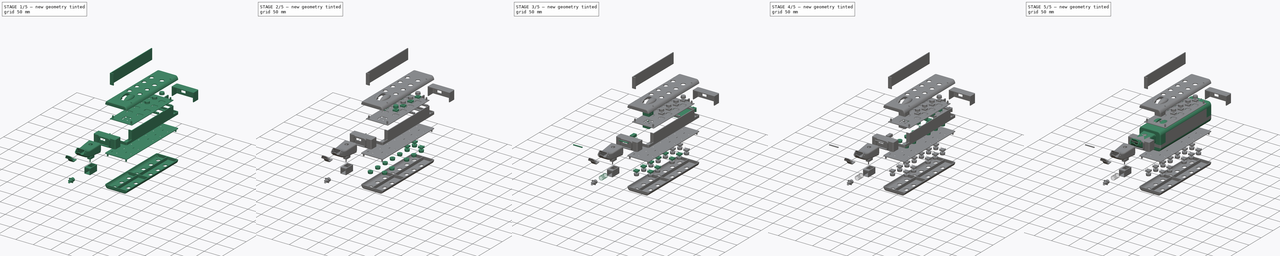
[diagram: build sequence overview — one tinted view per stage of 5, left to right]
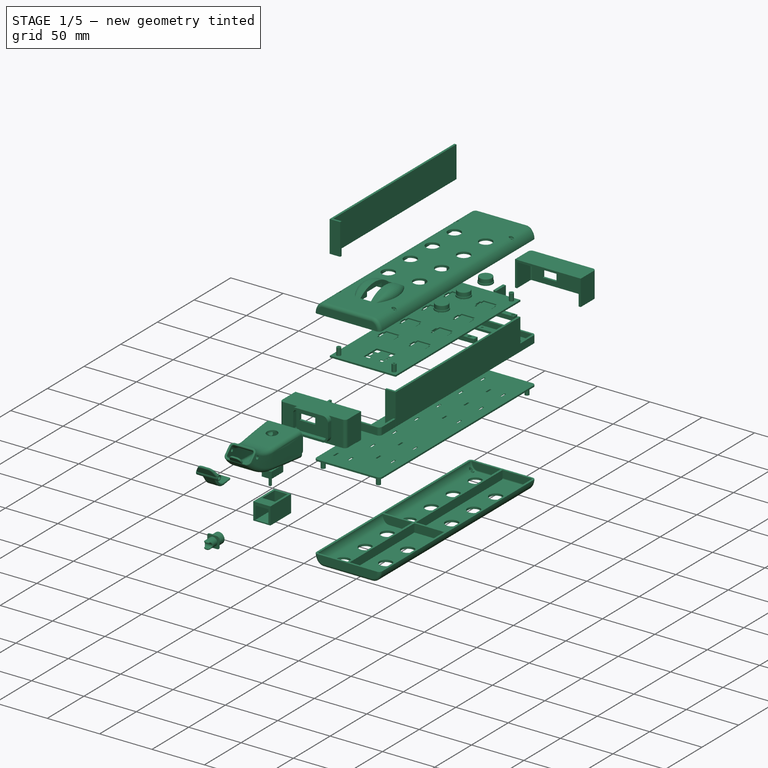
[diagram: stage 1 of 5 — iso view after this stage's code; geometry added in this stage tinted green]
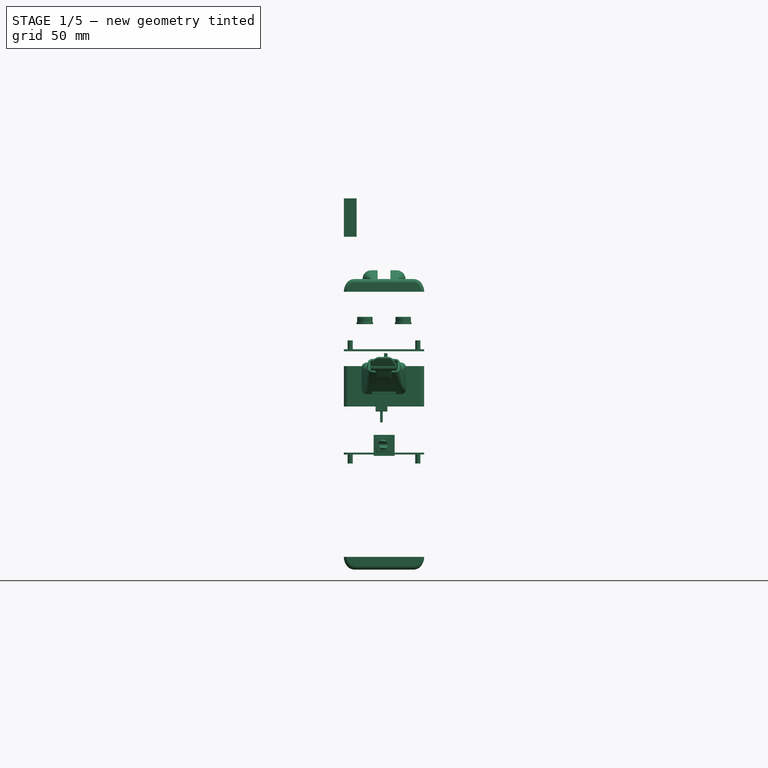
[diagram: stage 1 of 5 — front view after this stage's code; geometry added in this stage tinted green]
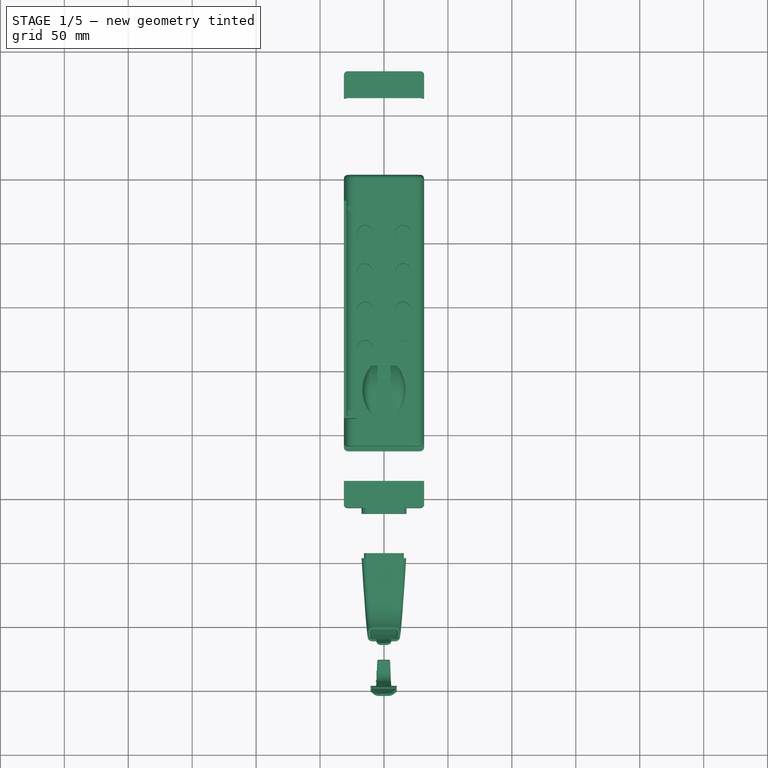
[diagram: stage 1 of 5 — top view after this stage's code; geometry added in this stage tinted green]
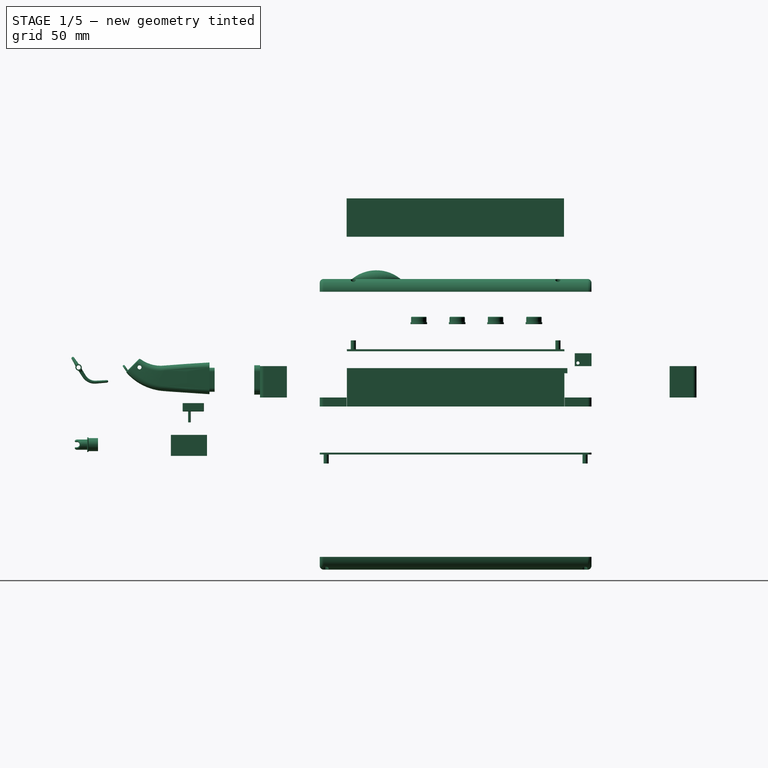
[diagram: stage 1 of 5 — right view after this stage's code; geometry added in this stage tinted green]
FCSTD DOCUMENT  (FreeCAD 0.20R)
Label: ensamblaje-entero
License: All rights reserved
LicenseURL: http://en.wikipedia.org/wiki/All_rights_reserved
objects: App::FeaturePython×303, Part::FeaturePython×126, Part::Refine×63, App::LinkGroup×3, TechDraw::DrawSVGTemplate×2, Sketcher::SketchObject×2, TechDraw::DrawPage×2, Spreadsheet::Sheet×1, TechDraw::DrawViewSpreadsheet×1, PartDesign::Pad×1, PartDesign::Body×1, TechDraw::DrawViewSymbol×1
note: 194 computed .brp shape members not serialized (recipe doc carries the construction recipe); baked Part::Feature solids carry a one-line shape summary decoded from their .brp

FEATURE [Part::FeaturePython] b_Potenciometro_001_001  label="Potenciometro_002"  # a2plus imported part (geometry in sourceFile) (typed FeaturePython)
  Placement = pos=(-1.98913,-311.427,-28.9193) rot=(1,0,0;3.14159rad)
  a2p_Version = V0.1
  fixedPosition = false
  objectType = a2pPart
  sourceFile = ./Potenciometro.FCStd
  subassemblyImport = false
  timeLastImport = 1.6497e+09
  updateColors = true
FEATURE [Part::FeaturePython] b_Pulsador_Boton_001_033  label="Pulsador Boton_034"  # a2plus imported part (geometry in sourceFile) (typed FeaturePython)
  Placement = pos=(15,-105,32.8974) rot=(0,0,1;0rad)
  a2p_Version = V0.1
  fixedPosition = false
  objectType = a2pPart
  sourceFile = ./Pulsador Boton.FCStd
  subassemblyImport = false
  timeLastImport = 1.64969e+09
  updateColors = true
FEATURE [Part::FeaturePython] b_Pulsador_Boton_001_034  label="Pulsador Boton_035"  # a2plus imported part (geometry in sourceFile) (typed FeaturePython)
  Placement = pos=(15,-75,32.8974) rot=(0,0,1;0rad)
  a2p_Version = V0.1
  fixedPosition = false
  objectType = a2pPart
  sourceFile = ./Pulsador Boton.FCStd
  subassemblyImport = false
  timeLastImport = 1.64969e+09
  updateColors = true
FEATURE [Part::FeaturePython] b_Pulsador_Boton_001_035  label="Pulsador Boton_036"  # a2plus imported part (geometry in sourceFile) (typed FeaturePython)
  Placement = pos=(15,-45,32.8974) rot=(0,0,1;0rad)
  a2p_Version = V0.1
  fixedPosition = false
  objectType = a2pPart
  sourceFile = ./Pulsador Boton.FCStd
  subassemblyImport = false
  timeLastImport = 1.64969e+09
  updateColors = true
FEATURE [Part::FeaturePython] b_Pulsador_Boton_001_036  label="Pulsador Boton_037"  # a2plus imported part (geometry in sourceFile) (typed FeaturePython)
  Placement = pos=(-15,-135,32.8974) rot=(0,0,1;0rad)
  a2p_Version = V0.1
  fixedPosition = false
  objectType = a2pPart
  sourceFile = ./Pulsador Boton.FCStd
  subassemblyImport = false
  timeLastImport = 1.64969e+09
  updateColors = true
FEATURE [Part::FeaturePython] b_Pulsador_Boton_001_037  label="Pulsador Boton_038"  # a2plus imported part (geometry in sourceFile) (typed FeaturePython)
  Placement = pos=(-15,-105,32.8974) rot=(0,0,1;0rad)
  a2p_Version = V0.1
  fixedPosition = false
  objectType = a2pPart
  sourceFile = ./Pulsador Boton.FCStd
  subassemblyImport = false
  timeLastImport = 1.64969e+09
  updateColors = true
FEATURE [Part::FeaturePython] b_Pulsador_Boton_001_038  label="Pulsador Boton_039"  # a2plus imported part (geometry in sourceFile) (typed FeaturePython)
  Placement = pos=(-15,-75,32.8974) rot=(0,0,1;0rad)
  a2p_Version = V0.1
  fixedPosition = false
  objectType = a2pPart
  sourceFile = ./Pulsador Boton.FCStd
  subassemblyImport = false
  timeLastImport = 1.64969e+09
  updateColors = true
FEATURE [Part::FeaturePython] b_Pulsador_Boton_001_039  label="Pulsador Boton_040"  # a2plus imported part (geometry in sourceFile) (typed FeaturePython)
  Placement = pos=(-15,-45,32.8974) rot=(0,0,1;0rad)
  a2p_Version = V0.1
  fixedPosition = false
  objectType = a2pPart
  sourceFile = ./Pulsador Boton.FCStd
  subassemblyImport = false
  timeLastImport = 1.64969e+09
  updateColors = true
FEATURE [Part::FeaturePython] b_carcasa_arduino_001_001  label="carcasa arduino_002"  # a2plus imported part (geometry in sourceFile) (typed FeaturePython)
  Placement = pos=(4.32619e-06,82.1487,3.06148e-07) rot=(1,0,0;3.14159rad)
  a2p_Version = V0.1
  fixedPosition = false
  objectType = a2pPart
  sourceFile = ./carcasa arduino.FCStd
  subassemblyImport = false
  timeLastImport = 1.64969e+09
  updateColors = true
FEATURE [Part::FeaturePython] b_carcasa_pot_linear_001_001  label="carcasa pot linear_002"  # a2plus imported part (geometry in sourceFile) (typed FeaturePython)
  Placement = pos=(-8.11862,-302.649,-55.6892) rot=(1,0,0;1.5708rad)
  a2p_Version = V0.1
  fixedPosition = false
  objectType = a2pPart
  sourceFile = ./carcasa pot linear.FCStd
  subassemblyImport = false
  timeLastImport = 1.64969e+09
  updateColors = true
FEATURE [Part::FeaturePython] b_cubierta_001_001  label="cubierta_002"  # a2plus imported part (geometry in sourceFile) (typed FeaturePython)
  Placement = pos=(-1.61407e-06,-212.5,-149.091) rot=(1,0,0;3.14159rad)
  a2p_Version = V0.1
  fixedPosition = false
  objectType = a2pPart
  sourceFile = ./cubierta.FCStd
  subassemblyImport = false
  timeLastImport = 1.64958e+09
  updateColors = true
FEATURE [Part::FeaturePython] b_cubierta_trasera_001_001  label="cubierta trasera_002"  # a2plus imported part (geometry in sourceFile) (typed FeaturePython)
  Placement = pos=(0,0,58.1953) rot=(0,0,1;0rad)
  a2p_Version = V0.1
  fixedPosition = true
  objectType = a2pPart
  sourceFile = ./cubierta trasera.FCStd
  subassemblyImport = false
  timeLastImport = 1.64952e+09
  updateColors = true
FEATURE [Part::FeaturePython] b_enganche_boquilla_001_001  label="enganche boquilla_002"  # a2plus imported part (geometry in sourceFile) (typed FeaturePython)
  Placement = pos=(-3.0072e-07,-259.257,-2.3752e-07) rot=(0,1,0;3.14159rad)
  a2p_Version = V0.1
  fixedPosition = false
  objectType = a2pPart
  sourceFile = ./enganche boquilla.FCStd
  subassemblyImport = false
  timeLastImport = 1.64966e+09
  updateColors = true
FEATURE [Part::FeaturePython] b_lenguetac_001_001  label="lengueta_002"  # a2plus imported part (geometry in sourceFile) (typed FeaturePython)
  Placement = pos=(-0.235001,-401.101,-0.9467) rot=(1,0,0;2.1293rad)
  a2p_Version = V0.1
  fixedPosition = false
  objectType = a2pPart
  sourceFile = ./lenguetac.FCStd
  subassemblyImport = false
  timeLastImport = 1.64959e+09
  updateColors = true
FEATURE [Part::FeaturePython] b_rueda_pitch_001_001  label="rueda pitch_002"  # a2plus imported part (geometry in sourceFile) (typed FeaturePython)
  Placement = pos=(-0.499999,-168.617,90.5503) rot=(-0.008344,0.008344,0.99993;1.57087rad)
  a2p_Version = V0.1
  fixedPosition = false
  objectType = a2pPart
  sourceFile = ./rueda pitch.FCStd
  subassemblyImport = false
  timeLastImport = 1.64131e+09
  updateColors = true
FEATURE [Part::FeaturePython] b_soporte_botones_001_001  label="soporte botones_002"  # a2plus imported part (geometry in sourceFile) (typed FeaturePython)
  Placement = pos=(-15,-196.25,-69.0812) rot=(0.707107,0.707107,0;3.14159rad)
  a2p_Version = V0.1
  fixedPosition = false
  objectType = a2pPart
  sourceFile = ./soporte botones.FCStd
  subassemblyImport = false
  timeLastImport = 1.64969e+09
  updateColors = true
FEATURE [Part::FeaturePython] b_soporte_botones_atras_001_001  label="soporte botones atras_002"  # a2plus imported part (geometry in sourceFile) (typed FeaturePython)
  Placement = pos=(31.4,-191.25,11.7158) rot=(0,0,1;1.5708rad)
  a2p_Version = V0.1
  fixedPosition = false
  objectType = a2pPart
  sourceFile = ./soporte botones atras.FCStd
  subassemblyImport = false
  timeLastImport = 1.64958e+09
  updateColors = true
FEATURE [Part::FeaturePython] b_soporte_tornillos_arduino_1_001_001  label="soporte tornillos arduino 1_002"  # a2plus imported part (geometry in sourceFile) (typed FeaturePython)
  Placement = pos=(5.43,-73.4,-5.5) rot=(0,0,1;0rad)
  a2p_Version = V0.1
  fixedPosition = false
  objectType = a2pPart
  sourceFile = ./soporte tornillos arduino 1.FCStd
  subassemblyImport = false
  timeLastImport = 1.64969e+09
  updateColors = true
FEATURE [Part::FeaturePython] b_soporte_tornillos_arduino_2_001_001  label="soporte tornillos arduino 2_002"  # a2plus imported part (geometry in sourceFile) (typed FeaturePython)
  Placement = pos=(0.380004,-21.3619,-5.5) rot=(0,0,1;0rad)
  a2p_Version = V0.1
  fixedPosition = false
  objectType = a2pPart
  sourceFile = ./soporte tornillos arduino 2.FCStd
  subassemblyImport = false
  timeLastImport = 1.64969e+09
  updateColors = true
FEATURE [Part::FeaturePython] b_tapa_lados_001_002  label="tapa lados_003"  # a2plus imported part (geometry in sourceFile) (typed FeaturePython)
  Placement = pos=(31.4,-191.25,-31.5) rot=(0,0,1;1.5708rad)
  a2p_Version = V0.1
  fixedPosition = false
  objectType = a2pPart
  sourceFile = ./tapa lados.FCStd
  subassemblyImport = false
  timeLastImport = 1.64958e+09
  updateColors = true
FEATURE [Part::FeaturePython] b_tapa_lados_001_003  label="tapa lados_004"  # a2plus imported part (geometry in sourceFile) (typed FeaturePython)
  Placement = pos=(-31.4,-191.5,131.22) rot=(0.707107,0.707107,0;3.14159rad)
  a2p_Version = V0.1
  fixedPosition = false
  objectType = a2pPart
  sourceFile = ./tapa lados.FCStd
  subassemblyImport = false
  timeLastImport = 1.64958e+09
  updateColors = true
FEATURE [Part::FeaturePython] b_tapa_pot_linear_001_001  label="tapa pot linear_002"  # a2plus imported part (geometry in sourceFile) (typed FeaturePython)
  Placement = pos=(-0.69774,-380.923,-61.3477) rot=(0.57735,-0.57735,0.57735;2.0944rad)
  a2p_Version = V0.1
  fixedPosition = false
  objectType = a2pPart
  sourceFile = ./tapa pot linear.FCStd
  subassemblyImport = false
  timeLastImport = 1.6497e+09
  updateColors = true
FEATURE [Part::FeaturePython] b_tapas_001_002  label="tapas_003"  # a2plus imported part (geometry in sourceFile) (typed FeaturePython)
  Placement = pos=(-2.3805e-07,-212.5,-31.5) rot=(0,0,1;0rad)
  a2p_Version = V0.1
  fixedPosition = false
  objectType = a2pPart
  sourceFile = ./tapas.FCStd
  subassemblyImport = false
  timeLastImport = 1.64959e+09
  updateColors = true
FEATURE [Part::FeaturePython] b_tapas_001_003  label="tapas_004"  # a2plus imported part (geometry in sourceFile) (typed FeaturePython)
  Placement = pos=(4.19815e-06,-4.38714e-08,-31.5) rot=(0,0,1;3.14159rad)
  a2p_Version = V0.1
  fixedPosition = false
  objectType = a2pPart
  sourceFile = ./tapas.FCStd
  subassemblyImport = false
  timeLastImport = 1.64959e+09
  updateColors = true
FEATURE [Part::FeaturePython] b_boquilla_001_001  label="boquilla_002"  # a2plus imported part (geometry in sourceFile) (typed FeaturePython)
  Placement = pos=(-0.1,-358.752,25.4987) rot=(0.57735,0.57735,-0.57735;2.0944rad)
  a2p_Version = V0.1
  fixedPosition = false
  objectType = a2pPart
  sourceFile = ./boquilla.FCStd
  subassemblyImport = false
  timeLastImport = 1.64966e+09
  updateColors = true
FEATURE [Part::Refine] b_eje_001_001001  label="eje_003"
  Source = -> b_eje_001_001
FEATURE [Part::Refine] b_Muelle_001_001001  label="Muelle_003"
  Source = -> b_Muelle_001_001
FEATURE [Part::Refine] b_Arduino_Uno_001_001001  label="Arduino Uno_003"
  Source = -> b_Arduino_Uno_001_001
FEATURE [Part::Refine] b_Base_Joystick_001_001001  label="Base Joystick_003"
  Source = -> b_Base_Joystick_001_001
FEATURE [Part::Refine] b_Base_boton_001_020001  label="Base boton_041"
  Source = -> b_Base_boton_001_020
FEATURE [Part::Refine] b_Base_boton_001_021001  label="Base boton_042"
  Source = -> b_Base_boton_001_021
FEATURE [Part::Refine] b_Base_boton_001_022001  label="Base boton_043"
  Source = -> b_Base_boton_001_022
FEATURE [Part::Refine] b_Base_boton_001_023001  label="Base boton_044"
  Source = -> b_Base_boton_001_023
FEATURE [Part::Refine] b_Base_boton_001_024001  label="Base boton_045"
  Source = -> b_Base_boton_001_024
FEATURE [Part::Refine] b_Base_boton_001_025001  label="Base boton_046"
  Source = -> b_Base_boton_001_025
FEATURE [Part::Refine] b_Base_boton_001_026001  label="Base boton_047"
  Source = -> b_Base_boton_001_026
FEATURE [Part::Refine] b_Base_boton_001_027001  label="Base boton_048"
  Source = -> b_Base_boton_001_027
FEATURE [Part::Refine] b_Base_boton_001_028001  label="Base boton_049"
  Source = -> b_Base_boton_001_028
FEATURE [Part::Refine] b_Base_boton_001_029001  label="Base boton_050"
  Source = -> b_Base_boton_001_029
FEATURE [Part::Refine] b_Base_boton_001_030001  label="Base boton_051"
  Source = -> b_Base_boton_001_030
FEATURE [Part::Refine] b_Base_boton_001_031001  label="Base boton_052"
  Source = -> b_Base_boton_001_031
FEATURE [Part::Refine] b_Base_boton_001_032001  label="Base boton_053"
  Source = -> b_Base_boton_001_032
FEATURE [Part::Refine] b_Base_boton_001_033001  label="Base boton_054"
  Source = -> b_Base_boton_001_033
FEATURE [Part::Refine] b_Base_boton_001_034001  label="Base boton_055"
  Source = -> b_Base_boton_001_034
FEATURE [Part::Refine] b_Base_boton_001_035001  label="Base boton_056"
  Source = -> b_Base_boton_001_035
FEATURE [Part::Refine] b_Base_boton_001_036001  label="Base boton_057"
  Source = -> b_Base_boton_001_036
FEATURE [Part::Refine] b_Base_boton_001_037001  label="Base boton_058"
  Source = -> b_Base_boton_001_037
FEATURE [Part::Refine] b_Base_boton_001_038001  label="Base boton_059"
  Source = -> b_Base_boton_001_038
FEATURE [Part::Refine] b_Base_boton_001_039001  label="Base boton_060"
  Source = -> b_Base_boton_001_039
FEATURE [Part::Refine] b_Eje_Joystick_001_001001  label="Eje Joystick_003"
  Source = -> b_Eje_Joystick_001_001
FEATURE [Part::Refine] b_Pulsador_Boton_001_020001  label="Pulsador Boton_041"
  Source = -> b_Pulsador_Boton_001_020
FEATURE [Part::Refine] b_Pulsador_Boton_001_021001  label="Pulsador Boton_042"
  Source = -> b_Pulsador_Boton_001_021
FEATURE [Part::Refine] b_Pulsador_Boton_001_022001  label="Pulsador Boton_043"
  Source = -> b_Pulsador_Boton_001_022
FEATURE [Part::Refine] b_Pulsador_Boton_001_023001  label="Pulsador Boton_044"
  Source = -> b_Pulsador_Boton_001_023
FEATURE [Part::Refine] b_Pulsador_Boton_001_024001  label="Pulsador Boton_045"
  Source = -> b_Pulsador_Boton_001_024
FEATURE [Part::Refine] b_Pulsador_Boton_001_025001  label="Pulsador Boton_046"
  Source = -> b_Pulsador_Boton_001_025
FEATURE [Part::Refine] b_Pulsador_Boton_001_026001  label="Pulsador Boton_047"
  Source = -> b_Pulsador_Boton_001_026
FEATURE [Part::Refine] b_Pulsador_Boton_001_027001  label="Pulsador Boton_048"
  Source = -> b_Pulsador_Boton_001_027
FEATURE [Part::Refine] b_Pulsador_Boton_001_028001  label="Pulsador Boton_049"
  Source = -> b_Pulsador_Boton_001_028
FEATURE [Part::Refine] b_Pulsador_Boton_001_029001  label="Pulsador Boton_050"
  Source = -> b_Pulsador_Boton_001_029
FEATURE [Part::Refine] b_Pulsador_Boton_001_030001  label="Pulsador Boton_051"
  Source = -> b_Pulsador_Boton_001_030
FEATURE [Part::Refine] b_Pulsador_Boton_001_031001  label="Pulsador Boton_052"
  Source = -> b_Pulsador_Boton_001_031
FEATURE [Part::Refine] b_Pulsador_Boton_001_032001  label="Pulsador Boton_053"
  Source = -> b_Pulsador_Boton_001_032
FEATURE [Part::Refine] b_Pulsador_Boton_001_033001  label="Pulsador Boton_054"
  Source = -> b_Pulsador_Boton_001_033
FEATURE [Part::Refine] b_Pulsador_Boton_001_034001  label="Pulsador Boton_055"
  Source = -> b_Pulsador_Boton_001_034
FEATURE [Part::Refine] b_Pulsador_Boton_001_035001  label="Pulsador Boton_056"
  Source = -> b_Pulsador_Boton_001_035
FEATURE [Part::Refine] b_Pulsador_Boton_001_036001  label="Pulsador Boton_057"
  Source = -> b_Pulsador_Boton_001_036
FEATURE [Part::Refine] b_Pulsador_Boton_001_037001  label="Pulsador Boton_058"
  Source = -> b_Pulsador_Boton_001_037
FEATURE [Part::Refine] b_Pulsador_Boton_001_038001  label="Pulsador Boton_059"
  Source = -> b_Pulsador_Boton_001_038
FEATURE [Part::Refine] b_Pulsador_Boton_001_039001  label="Pulsador Boton_060"
  Source = -> b_Pulsador_Boton_001_039
FEATURE [Part::Refine] b_carcasa_arduino_001_001001  label="carcasa arduino_003"
  Source = -> b_carcasa_arduino_001_001
FEATURE [Part::Refine] b_cubierta_001_001001  label="cubierta_003"
  Source = -> b_cubierta_001_001
FEATURE [Part::Refine] b_cubierta_trasera_001_001001  label="cubierta trasera_003"
  Source = -> b_cubierta_trasera_001_001
FEATURE [Part::Refine] b_enganche_boquilla_001_001001  label="enganche boquilla_003"
  Source = -> b_enganche_boquilla_001_001
FEATURE [Part::Refine] b_rueda_pitch_001_001001  label="rueda pitch_003"
  Source = -> b_rueda_pitch_001_001
FEATURE [Part::Refine] b_soporte_botones_001_001001  label="soporte botones_003"
  Source = -> b_soporte_botones_001_001
FEATURE [Part::Refine] b_soporte_botones_atras_001_001001  label="soporte botones atras_003"
  Source = -> b_soporte_botones_atras_001_001
FEATURE [Part::Refine] b_soporte_tornillos_arduino_1_001_001001  label="soporte tornillos arduino 1_003"
  Source = -> b_soporte_tornillos_arduino_1_001_001
FEATURE [Part::Refine] b_soporte_tornillos_arduino_2_001_001001  label="soporte tornillos arduino 2_003"
  Source = -> b_soporte_tornillos_arduino_2_001_001
FEATURE [Part::Refine] b_tapa_lados_001_002001  label="tapa lados_005"
  Source = -> b_tapa_lados_001_002
FEATURE [Part::Refine] b_tapa_lados_001_003001  label="tapa lados_006"
  Source = -> b_tapa_lados_001_003
FEATURE [Part::Refine] b_tapas_001_002001  label="tapas_005"
  Source = -> b_tapas_001_002
FEATURE [Part::Refine] b_tapas_001_003001  label="tapas_006"
  Source = -> b_tapas_001_003
FEATURE [Part::Refine] b_boquilla_001_001001  label="boquilla_003"
  Source = -> b_boquilla_001_001
FEATURE [Part::Refine] b_carcasa_pot_linear_001_001001  label="carcasa pot linear_003"
  Source = -> b_carcasa_pot_linear_001_001
FEATURE [Part::Refine] b_tapa_pot_linear_001_001001  label="tapa pot linear_003"
  Source = -> b_tapa_pot_linear_001_001
FEATURE [Part::Refine] b_lenguetac_001_001001  label="lengueta_003"
  Source = -> b_lenguetac_001_001
FEATURE [Part::Refine] b_Potenciometro_001_001001  label="Potenciometro_003"
  Source = -> b_Potenciometro_001_001
FEATURE [App::LinkGroup] LinkGroup001
  ElementList = -> [b_Muelle_001_001,b_Arduino_Uno_001_001,b_Base_Joystick_001_001,b_Base_boton_001_020,b_Base_boton_001_021,b_Base_boton_001_022,b_Base_boton_001_023,b_Base_boton_001_024,b_Base_boton_001_025,b_Base_boton_001_026,b_Base_boton_001_027,b_Base_boton_001_028,b_Base_boton_001_029,b_Base_boton_001_030,b_Base_boton_001_031,b_Base_boton_001_032,b_Base_boton_001_033,b_Base_boton_001_034,b_Base_boton_001_035,+44 more]
  LinkMode = 0
FEATURE [App::LinkGroup] LinkGroup002
  ElementList = -> [b_eje_001_001001,b_Muelle_001_001001,b_Arduino_Uno_001_001001,b_Base_Joystick_001_001001,b_Base_boton_001_020001,b_Base_boton_001_021001,b_Base_boton_001_022001,b_Base_boton_001_023001,b_Base_boton_001_024001,b_Base_boton_001_025001,b_Base_boton_001_026001,b_Base_boton_001_027001,b_Base_boton_001_028001,b_Base_boton_001_029001,b_Base_boton_001_030001,b_Base_boton_001_031001,+47 more]
  LinkMode = 0
FEATURE [TechDraw::DrawSVGTemplate] Template
  Height = 210
  Orientation = 1
  Width = 297
FEATURE [Spreadsheet::Sheet] _PARTSLIST_  label="#PARTSLIST#"
  cells = A1=Nº; B1=Cantidad; C1=Nombre; A2=1; B2=1; C2=Cubierta Trasera; A3=2; B3=1; C3=Joystick; A4=3; B4=8; C4=Botones Traseros; A5=4; B5=1; C5=Soporte Botones Atrás; A6=5; B6=1; C6=Rueda Pitch; A7=6; B7=1; C7=Enganche de la Boquilla; A8=7; B8=1; C8=Carcasa para Arduino; A9=8; B9=1; C9=Soporte tornillos Arduino 1; A10=9; B10=1; C10=Soporte tornillos Arduino 2; A11=10; B11=1; C11=Arduino Uno; A12=11; B12=2; C12=Tapas; A13=12; B13=2; C13=Tapa Lado; A14=13; B14=1; C14=Boquilla; A15=14; B15=1; C15=Lengüeta; A16=15; B16=1; C16=Sensor GY-68 BMP180; A17=16; B17=1; C17=Eje; A18=17; B18=1; C18=Carcasa Potenciómetro; A19=18; B19=1; C19=Muelle; A20=19; B20=1; C20=Potenciómetro Lineal; A21=20; B21=1; C21=Tapa Potenciómetro; A22=21; B22=1; C22=Soporte Botones Arriba; A23=22; B23=2; C23=Botones Arriba; A24=23; B24=2; C24=Cubierta Superior; A25=24; B25=12; C25=Tornillos M2 Rosca Chapa; A26=25; B26=4; C26=Tornillos M3
FEATURE [TechDraw::DrawViewSpreadsheet] Sheet
  CellEnd = c26
  CellStart = A1
  Font = osifont
  LineWidth = 0.25
  LockPosition = false
  Rotation = 0
  ScaleType = 2
  Source = -> _PARTSLIST_
  Symbol = <blob: 16198 chars omitted>
  TextSize = 12
  X = 261.546
  Y = 104.695
FEATURE [Sketcher::SketchObject] Sketch
  ExternalGeometry = -> [b_cubierta_trasera_001_001]
  FullyConstrained = true
  Placement = pos=(0,0,65) rot=(0,0,1;0rad)
  sketch-geometry (2):
    g0: LineSegment StartX=26.4 StartY=-26.25 StartZ=0 EndX=26.4 EndY=-186.25 EndZ=0
    g1: LineSegment StartX=26.4 StartY=-25.25 StartZ=0 EndX=26.4 EndY=-27.25 EndZ=0
  constraints (6):
    c: Coincident(g0,g-3)
    c: Coincident(g0,g-4)
    c: PointOnObject(g1,g-3)
    c: PointOnObject(g1,g0)
    c: Vertical(g1)
    c: PointOnObject(g1,g-3)
FEATURE [Sketcher::SketchObject] Sketch001
  FullyConstrained = true
  MapMode = 5
  Placement = pos=(0,0,0) rot=(0.57735,0.57735,0.57735;2.0944rad)
  Support = -> [YZ_Plane]
  sketch-geometry (5):
    g0: LineSegment StartX=0 StartY=0 StartZ=0 EndX=-13.1 EndY=0 EndZ=0
    g1: LineSegment StartX=-13.1 StartY=0 StartZ=0 EndX=-13.1 EndY=10.1 EndZ=0
    g2: LineSegment StartX=-13.1 StartY=10.1 StartZ=0 EndX=0 EndY=10.1 EndZ=0
    g3: LineSegment StartX=0 StartY=10.1 StartZ=0 EndX=0 EndY=0 EndZ=0
    g4: Circle CenterX=-10.6 CenterY=2.5 CenterZ=0 NormalX=0 NormalY=0 NormalZ=1 AngleXU=0 Radius=1.25
  constraints (14):
    c: Coincident(g0,g1)
    c: Coincident(g1,g2)
    c: Coincident(g2,g3)
    c: Coincident(g3,g0)
    c: Horizontal(g0)
    c: Horizontal(g2)
    c: Vertical(g1)
    c: Vertical(g3)
    c: Coincident(g0,g-1)
    c: DistanceX(g1,g2) = 13.1
    c: DistanceY(g0,g2) = 10.1
    c: Diameter(g4) = 2.5
    c: DistanceY(g0,g4) = 2.5
    c: DistanceX(g0,g4) = 2.5
FEATURE [PartDesign::Pad] Pad
  Direction = (1,-2e-16,3e-16)
  Length = 2.75
  Length2 = 10
  Placement = pos=(0,0,0) rot=(0.57735,0.57735,0.57735;2.0944rad)
  Profile = -> Sketch001
  ReferenceAxis = -> Sketch001 [N_Axis]
  Type = 0
FEATURE [PartDesign::Body] Body
  Group = -> [Sketch001,Pad]
  Origin = -> Origin
  Placement = pos=(0,-319.961,-47.9685) rot=(0,0,1;0rad)
  Tip = -> Pad
FEATURE [TechDraw::DrawSVGTemplate] Template003
  EditableTexts = AUTHOR_NAME=Daniel García García; DATE=13-04-2022; DN=4; DOCUMENT_TYPE=Plano de pieza; PN=5; REVISION=1; SCALE=1:1; SHEET=4; SIZE=A4; TITLELINE-1=Rueda de Pitch
  Height = 210
  Orientation = 1
  Width = 297
FEATURE [TechDraw::DrawPage] Page003
  KeepUpdated = true
  NextBalloonIndex = 1
  ProjectionType = 0
  Template = -> Template003
FEATURE [TechDraw::DrawViewSymbol] Symbol
  LockPosition = false
  Rotation = 0
  ScaleType = 2
  Symbol = <blob: 2475342 chars omitted>
  X = 148.5
  Y = 105
FEATURE [TechDraw::DrawPage] Page  label="Vista Explosionada"
  KeepUpdated = true
  NextBalloonIndex = 24
  ProjectionType = 0
  Template = -> Template
  Views = -> [Sheet,Symbol]
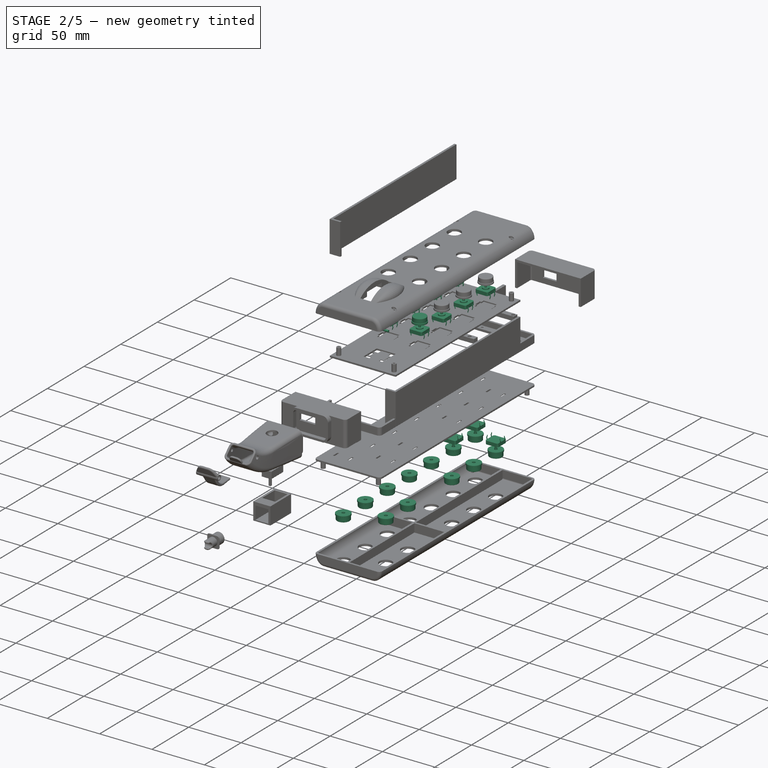
[diagram: stage 2 of 5 — iso view after this stage's code; geometry added in this stage tinted green]
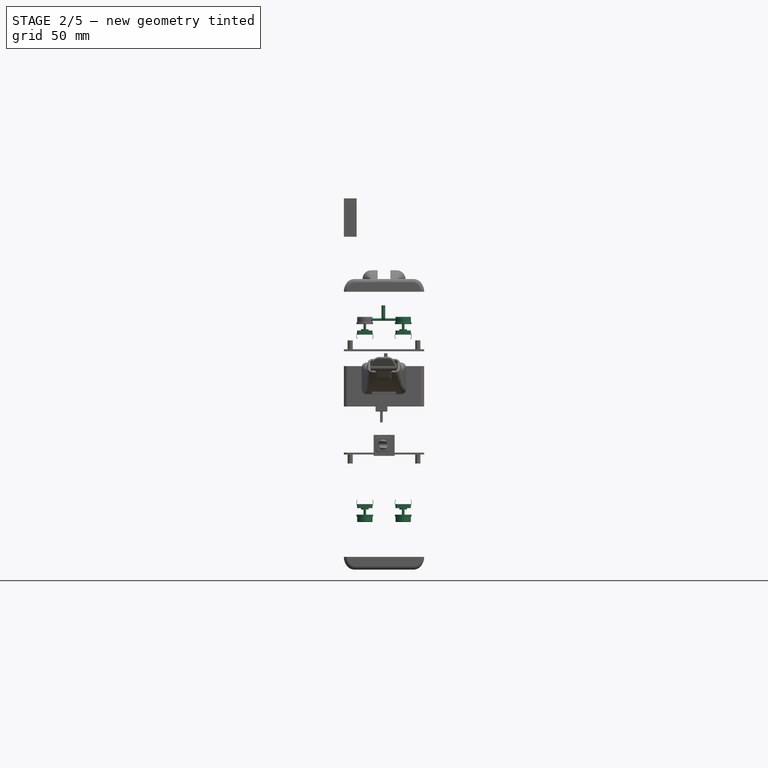
[diagram: stage 2 of 5 — front view after this stage's code; geometry added in this stage tinted green]
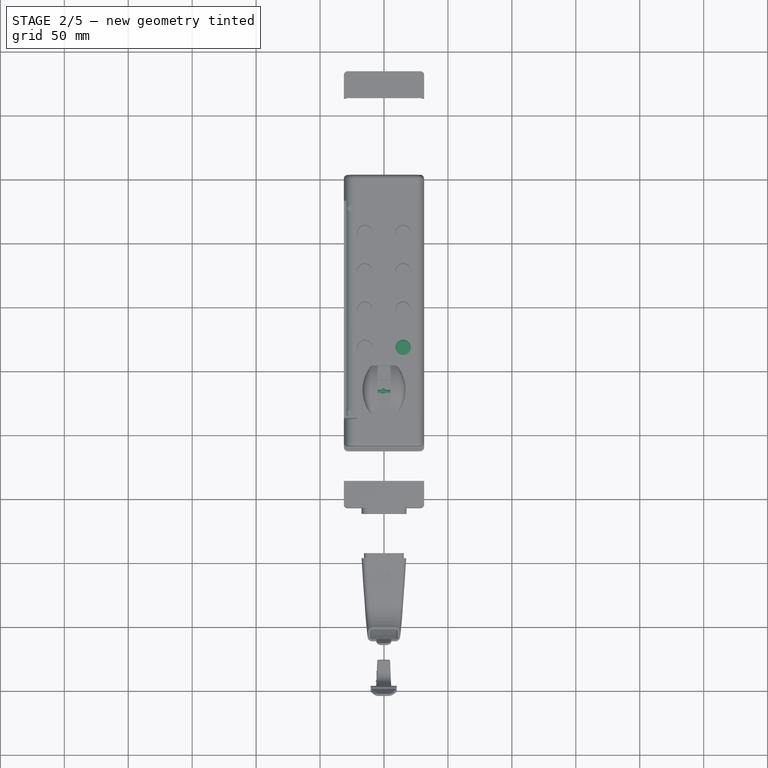
[diagram: stage 2 of 5 — top view after this stage's code; geometry added in this stage tinted green]
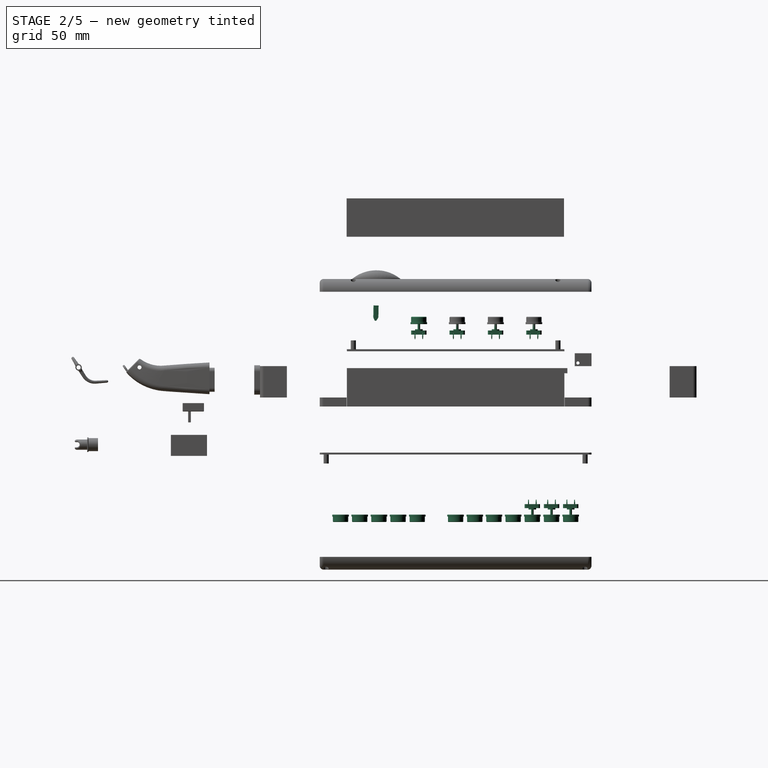
[diagram: stage 2 of 5 — right view after this stage's code; geometry added in this stage tinted green]
FEATURE [Part::FeaturePython] b_Base_boton_001_029  label="Base boton_030"  # a2plus imported part (geometry in sourceFile) (typed FeaturePython)
  Placement = pos=(-15,-46.25,-107.84) rot=(0.707107,0.707107,0;3.14159rad)
  a2p_Version = V0.1
  fixedPosition = false
  objectType = a2pPart
  sourceFile = ./Base boton.FCStd
  subassemblyImport = false
  timeLastImport = 1.64969e+09
  updateColors = true
FEATURE [Part::FeaturePython] b_Base_boton_001_030  label="Base boton_031"  # a2plus imported part (geometry in sourceFile) (typed FeaturePython)
  Placement = pos=(15,-31.25,-107.84) rot=(0.707107,0.707107,0;3.14159rad)
  a2p_Version = V0.1
  fixedPosition = false
  objectType = a2pPart
  sourceFile = ./Base boton.FCStd
  subassemblyImport = false
  timeLastImport = 1.64969e+09
  updateColors = true
FEATURE [Part::FeaturePython] b_Base_boton_001_031  label="Base boton_032"  # a2plus imported part (geometry in sourceFile) (typed FeaturePython)
  Placement = pos=(-15,-16.25,-107.84) rot=(0.707107,0.707107,0;3.14159rad)
  a2p_Version = V0.1
  fixedPosition = false
  objectType = a2pPart
  sourceFile = ./Base boton.FCStd
  subassemblyImport = false
  timeLastImport = 1.64969e+09
  updateColors = true
FEATURE [Part::FeaturePython] b_Base_boton_001_032  label="Base boton_033"  # a2plus imported part (geometry in sourceFile) (typed FeaturePython)
  Placement = pos=(15,-135,24.6974) rot=(0,0,1;1.5708rad)
  a2p_Version = V0.1
  fixedPosition = false
  objectType = a2pPart
  sourceFile = ./Base boton.FCStd
  subassemblyImport = false
  timeLastImport = 1.64969e+09
  updateColors = true
FEATURE [Part::FeaturePython] b_Base_boton_001_033  label="Base boton_034"  # a2plus imported part (geometry in sourceFile) (typed FeaturePython)
  Placement = pos=(15,-105,24.6974) rot=(0,0,1;1.5708rad)
  a2p_Version = V0.1
  fixedPosition = false
  objectType = a2pPart
  sourceFile = ./Base boton.FCStd
  subassemblyImport = false
  timeLastImport = 1.64969e+09
  updateColors = true
FEATURE [Part::FeaturePython] b_Base_boton_001_034  label="Base boton_035"  # a2plus imported part (geometry in sourceFile) (typed FeaturePython)
  Placement = pos=(15,-75,24.6974) rot=(0,0,1;1.5708rad)
  a2p_Version = V0.1
  fixedPosition = false
  objectType = a2pPart
  sourceFile = ./Base boton.FCStd
  subassemblyImport = false
  timeLastImport = 1.64969e+09
  updateColors = true
FEATURE [Part::FeaturePython] b_Base_boton_001_035  label="Base boton_036"  # a2plus imported part (geometry in sourceFile) (typed FeaturePython)
  Placement = pos=(15,-45,24.6974) rot=(0,0,1;1.5708rad)
  a2p_Version = V0.1
  fixedPosition = false
  objectType = a2pPart
  sourceFile = ./Base boton.FCStd
  subassemblyImport = false
  timeLastImport = 1.64969e+09
  updateColors = true
FEATURE [Part::FeaturePython] b_Base_boton_001_036  label="Base boton_037"  # a2plus imported part (geometry in sourceFile) (typed FeaturePython)
  Placement = pos=(-15,-135,24.6974) rot=(0,0,1;1.5708rad)
  a2p_Version = V0.1
  fixedPosition = false
  objectType = a2pPart
  sourceFile = ./Base boton.FCStd
  subassemblyImport = false
  timeLastImport = 1.64969e+09
  updateColors = true
FEATURE [Part::FeaturePython] b_Base_boton_001_037  label="Base boton_038"  # a2plus imported part (geometry in sourceFile) (typed FeaturePython)
  Placement = pos=(-15,-105,24.6974) rot=(0,0,1;1.5708rad)
  a2p_Version = V0.1
  fixedPosition = false
  objectType = a2pPart
  sourceFile = ./Base boton.FCStd
  subassemblyImport = false
  timeLastImport = 1.64969e+09
  updateColors = true
FEATURE [Part::FeaturePython] b_Base_boton_001_038  label="Base boton_039"  # a2plus imported part (geometry in sourceFile) (typed FeaturePython)
  Placement = pos=(-15,-75,24.6974) rot=(0,0,1;1.5708rad)
  a2p_Version = V0.1
  fixedPosition = false
  objectType = a2pPart
  sourceFile = ./Base boton.FCStd
  subassemblyImport = false
  timeLastImport = 1.64969e+09
  updateColors = true
FEATURE [Part::FeaturePython] b_Base_boton_001_039  label="Base boton_040"  # a2plus imported part (geometry in sourceFile) (typed FeaturePython)
  Placement = pos=(-15,-45,24.6974) rot=(0,0,1;1.5708rad)
  a2p_Version = V0.1
  fixedPosition = false
  objectType = a2pPart
  sourceFile = ./Base boton.FCStd
  subassemblyImport = false
  timeLastImport = 1.64969e+09
  updateColors = true
FEATURE [Part::FeaturePython] b_Eje_Joystick_001_001  label="Eje Joystick_002"  # a2plus imported part (geometry in sourceFile) (typed FeaturePython)
  Placement = pos=(-0.5,-168.511,36.4806) rot=(0,0.008345,0.999965;3.14159rad)
  a2p_Version = V0.1
  fixedPosition = false
  objectType = a2pPart
  sourceFile = ./Eje Joystick.FCStd
  subassemblyImport = false
  timeLastImport = 1.64975e+09
  updateColors = true
FEATURE [Part::FeaturePython] b_Pulsador_Boton_001_020  label="Pulsador Boton_021"  # a2plus imported part (geometry in sourceFile) (typed FeaturePython)
  Placement = pos=(-15,-196.25,-116.079) rot=(1,0,0;3.14159rad)
  a2p_Version = V0.1
  fixedPosition = false
  objectType = a2pPart
  sourceFile = ./Pulsador Boton.FCStd
  subassemblyImport = false
  timeLastImport = 1.64969e+09
  updateColors = true
FEATURE [Part::FeaturePython] b_Pulsador_Boton_001_021  label="Pulsador Boton_022"  # a2plus imported part (geometry in sourceFile) (typed FeaturePython)
  Placement = pos=(15,-181.25,-116.079) rot=(1,0,0;3.14159rad)
  a2p_Version = V0.1
  fixedPosition = false
  objectType = a2pPart
  sourceFile = ./Pulsador Boton.FCStd
  subassemblyImport = false
  timeLastImport = 1.64969e+09
  updateColors = true
FEATURE [Part::FeaturePython] b_Pulsador_Boton_001_022  label="Pulsador Boton_023"  # a2plus imported part (geometry in sourceFile) (typed FeaturePython)
  Placement = pos=(-15,-166.25,-116.079) rot=(1,0,0;3.14159rad)
  a2p_Version = V0.1
  fixedPosition = false
  objectType = a2pPart
  sourceFile = ./Pulsador Boton.FCStd
  subassemblyImport = false
  timeLastImport = 1.64969e+09
  updateColors = true
FEATURE [Part::FeaturePython] b_Pulsador_Boton_001_023  label="Pulsador Boton_024"  # a2plus imported part (geometry in sourceFile) (typed FeaturePython)
  Placement = pos=(15,-151.25,-116.079) rot=(1,0,0;3.14159rad)
  a2p_Version = V0.1
  fixedPosition = false
  objectType = a2pPart
  sourceFile = ./Pulsador Boton.FCStd
  subassemblyImport = false
  timeLastImport = 1.64969e+09
  updateColors = true
FEATURE [Part::FeaturePython] b_Pulsador_Boton_001_024  label="Pulsador Boton_025"  # a2plus imported part (geometry in sourceFile) (typed FeaturePython)
  Placement = pos=(-15,-136.25,-116.079) rot=(1,0,0;3.14159rad)
  a2p_Version = V0.1
  fixedPosition = false
  objectType = a2pPart
  sourceFile = ./Pulsador Boton.FCStd
  subassemblyImport = false
  timeLastImport = 1.64969e+09
  updateColors = true
FEATURE [Part::FeaturePython] b_Pulsador_Boton_001_025  label="Pulsador Boton_026"  # a2plus imported part (geometry in sourceFile) (typed FeaturePython)
  Placement = pos=(-15,-106.25,-116.079) rot=(1,0,0;3.14159rad)
  a2p_Version = V0.1
  fixedPosition = false
  objectType = a2pPart
  sourceFile = ./Pulsador Boton.FCStd
  subassemblyImport = false
  timeLastImport = 1.64969e+09
  updateColors = true
FEATURE [Part::FeaturePython] b_Pulsador_Boton_001_026  label="Pulsador Boton_027"  # a2plus imported part (geometry in sourceFile) (typed FeaturePython)
  Placement = pos=(15,-91.25,-116.079) rot=(1,0,0;3.14159rad)
  a2p_Version = V0.1
  fixedPosition = false
  objectType = a2pPart
  sourceFile = ./Pulsador Boton.FCStd
  subassemblyImport = false
  timeLastImport = 1.64969e+09
  updateColors = true
FEATURE [Part::FeaturePython] b_Pulsador_Boton_001_027  label="Pulsador Boton_028"  # a2plus imported part (geometry in sourceFile) (typed FeaturePython)
  Placement = pos=(-15,-76.25,-116.079) rot=(1,0,0;3.14159rad)
  a2p_Version = V0.1
  fixedPosition = false
  objectType = a2pPart
  sourceFile = ./Pulsador Boton.FCStd
  subassemblyImport = false
  timeLastImport = 1.64969e+09
  updateColors = true
FEATURE [Part::FeaturePython] b_Pulsador_Boton_001_028  label="Pulsador Boton_029"  # a2plus imported part (geometry in sourceFile) (typed FeaturePython)
  Placement = pos=(15,-61.25,-116.079) rot=(1,0,0;3.14159rad)
  a2p_Version = V0.1
  fixedPosition = false
  objectType = a2pPart
  sourceFile = ./Pulsador Boton.FCStd
  subassemblyImport = false
  timeLastImport = 1.64969e+09
  updateColors = true
FEATURE [Part::FeaturePython] b_Pulsador_Boton_001_029  label="Pulsador Boton_030"  # a2plus imported part (geometry in sourceFile) (typed FeaturePython)
  Placement = pos=(-15,-46.25,-116.079) rot=(1,0,0;3.14159rad)
  a2p_Version = V0.1
  fixedPosition = false
  objectType = a2pPart
  sourceFile = ./Pulsador Boton.FCStd
  subassemblyImport = false
  timeLastImport = 1.64969e+09
  updateColors = true
FEATURE [Part::FeaturePython] b_Pulsador_Boton_001_030  label="Pulsador Boton_031"  # a2plus imported part (geometry in sourceFile) (typed FeaturePython)
  Placement = pos=(15,-31.25,-116.079) rot=(1,0,0;3.14159rad)
  a2p_Version = V0.1
  fixedPosition = false
  objectType = a2pPart
  sourceFile = ./Pulsador Boton.FCStd
  subassemblyImport = false
  timeLastImport = 1.64969e+09
  updateColors = true
FEATURE [Part::FeaturePython] b_Pulsador_Boton_001_031  label="Pulsador Boton_032"  # a2plus imported part (geometry in sourceFile) (typed FeaturePython)
  Placement = pos=(-15,-16.25,-116.079) rot=(1,0,0;3.14159rad)
  a2p_Version = V0.1
  fixedPosition = false
  objectType = a2pPart
  sourceFile = ./Pulsador Boton.FCStd
  subassemblyImport = false
  timeLastImport = 1.64969e+09
  updateColors = true
FEATURE [Part::FeaturePython] b_Pulsador_Boton_001_032  label="Pulsador Boton_033"  # a2plus imported part (geometry in sourceFile) (typed FeaturePython)
  Placement = pos=(15,-135,32.8974) rot=(0,0,1;0rad)
  a2p_Version = V0.1
  fixedPosition = false
  objectType = a2pPart
  sourceFile = ./Pulsador Boton.FCStd
  subassemblyImport = false
  timeLastImport = 1.64969e+09
  updateColors = true
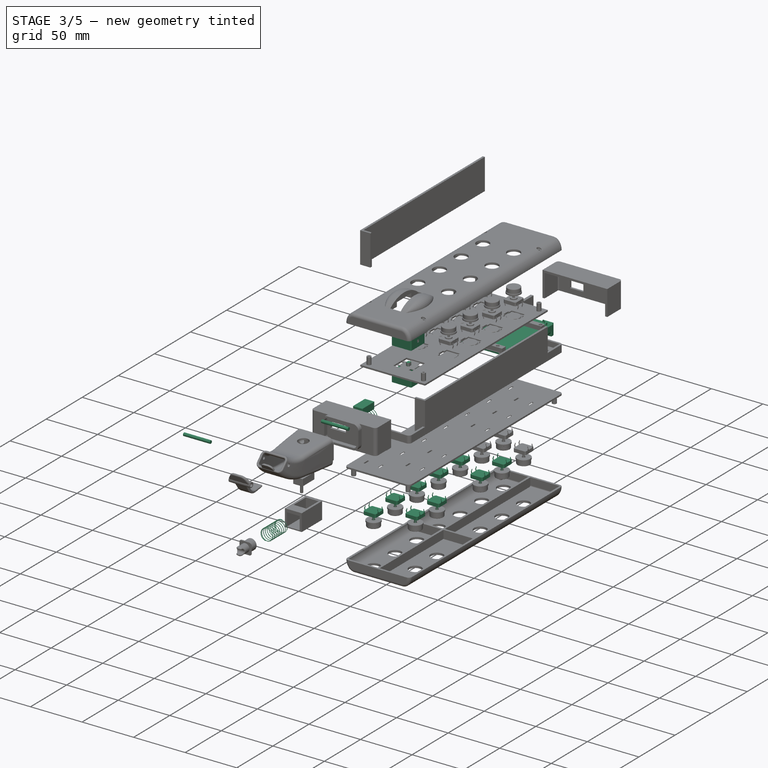
[diagram: stage 3 of 5 — iso view after this stage's code; geometry added in this stage tinted green]
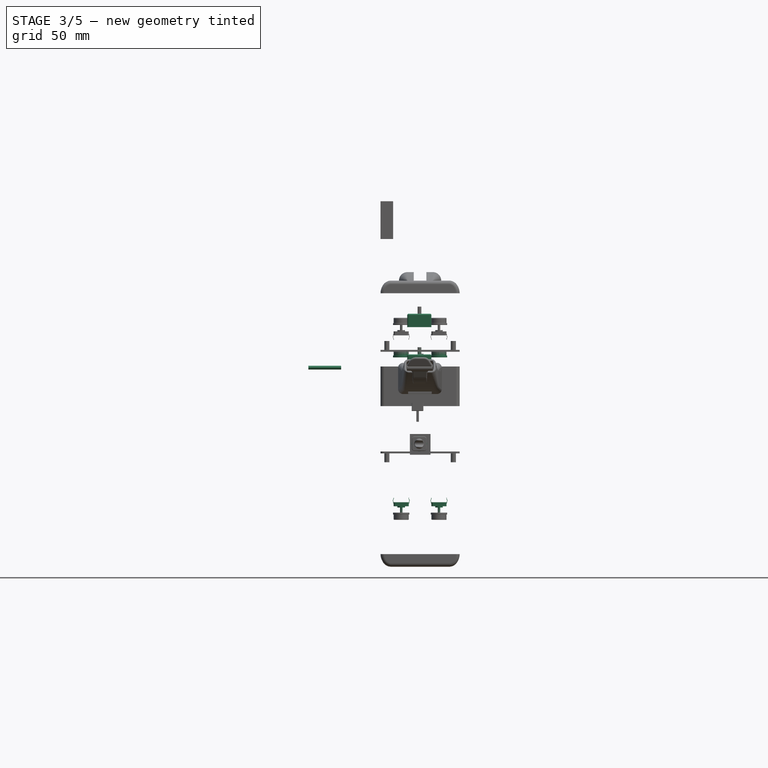
[diagram: stage 3 of 5 — front view after this stage's code; geometry added in this stage tinted green]
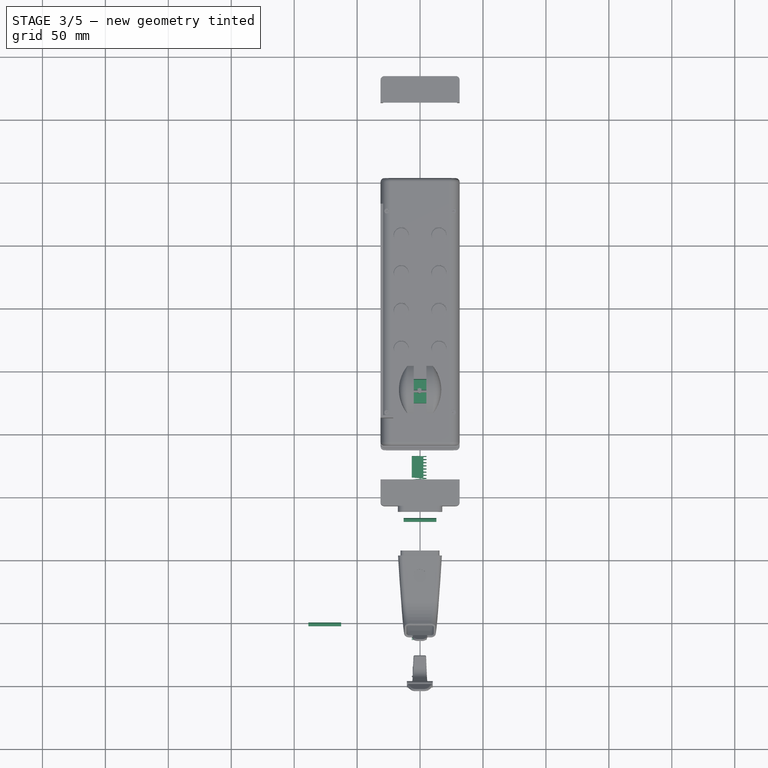
[diagram: stage 3 of 5 — top view after this stage's code; geometry added in this stage tinted green]
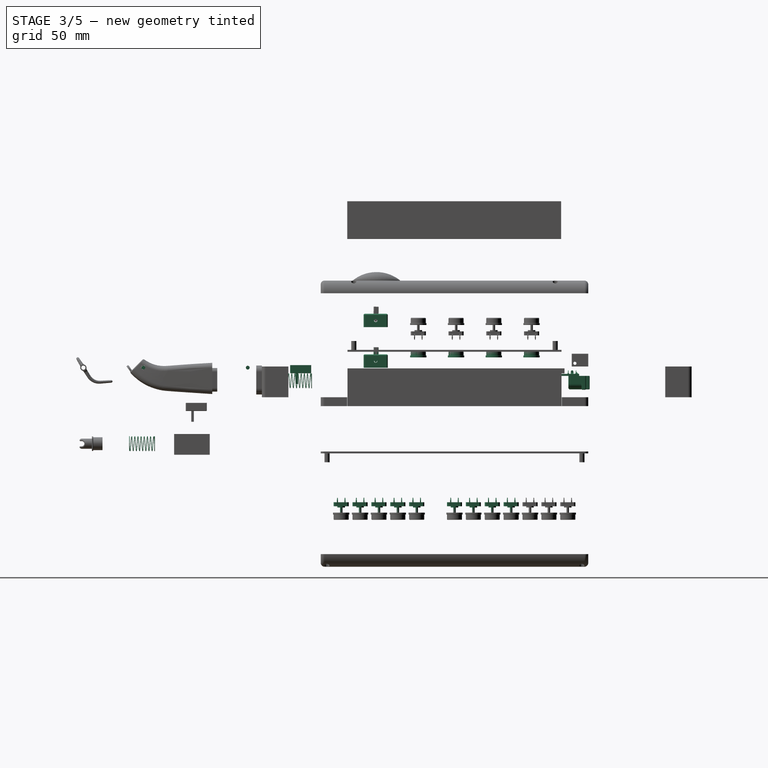
[diagram: stage 3 of 5 — right view after this stage's code; geometry added in this stage tinted green]
FEATURE [Part::FeaturePython] b_Pulsador_Boton_001_013  label="Pulsador Boton_014"  # a2plus imported part (geometry in sourceFile) (typed FeaturePython)
  Placement = pos=(15,-105,7.2) rot=(0,0,1;0rad)
  a2p_Version = V0.1
  fixedPosition = false
  objectType = a2pPart
  sourceFile = ./Pulsador Boton.FCStd
  subassemblyImport = false
  timeLastImport = 1.64969e+09
  updateColors = true
FEATURE [Part::FeaturePython] b_Pulsador_Boton_001_014  label="Pulsador Boton_015"  # a2plus imported part (geometry in sourceFile) (typed FeaturePython)
  Placement = pos=(15,-75,7.2) rot=(0,0,1;0rad)
  a2p_Version = V0.1
  fixedPosition = false
  objectType = a2pPart
  sourceFile = ./Pulsador Boton.FCStd
  subassemblyImport = false
  timeLastImport = 1.64969e+09
  updateColors = true
FEATURE [Part::FeaturePython] b_Pulsador_Boton_001_015  label="Pulsador Boton_016"  # a2plus imported part (geometry in sourceFile) (typed FeaturePython)
  Placement = pos=(15,-45,7.2) rot=(0,0,1;0rad)
  a2p_Version = V0.1
  fixedPosition = false
  objectType = a2pPart
  sourceFile = ./Pulsador Boton.FCStd
  subassemblyImport = false
  timeLastImport = 1.64969e+09
  updateColors = true
FEATURE [Part::FeaturePython] b_Pulsador_Boton_001_016  label="Pulsador Boton_017"  # a2plus imported part (geometry in sourceFile) (typed FeaturePython)
  Placement = pos=(-15,-135,7.2) rot=(0,0,1;0rad)
  a2p_Version = V0.1
  fixedPosition = false
  objectType = a2pPart
  sourceFile = ./Pulsador Boton.FCStd
  subassemblyImport = false
  timeLastImport = 1.64969e+09
  updateColors = true
FEATURE [Part::FeaturePython] b_Pulsador_Boton_001_017  label="Pulsador Boton_018"  # a2plus imported part (geometry in sourceFile) (typed FeaturePython)
  Placement = pos=(-15,-105,7.2) rot=(0,0,1;0rad)
  a2p_Version = V0.1
  fixedPosition = false
  objectType = a2pPart
  sourceFile = ./Pulsador Boton.FCStd
  subassemblyImport = false
  timeLastImport = 1.64969e+09
  updateColors = true
FEATURE [Part::FeaturePython] b_Pulsador_Boton_001_018  label="Pulsador Boton_019"  # a2plus imported part (geometry in sourceFile) (typed FeaturePython)
  Placement = pos=(-15,-75,7.2) rot=(0,0,1;0rad)
  a2p_Version = V0.1
  fixedPosition = false
  objectType = a2pPart
  sourceFile = ./Pulsador Boton.FCStd
  subassemblyImport = false
  timeLastImport = 1.64969e+09
  updateColors = true
FEATURE [Part::FeaturePython] b_Pulsador_Boton_001_019  label="Pulsador Boton_020"  # a2plus imported part (geometry in sourceFile) (typed FeaturePython)
  Placement = pos=(-15,-45,7.2) rot=(0,0,1;0rad)
  a2p_Version = V0.1
  fixedPosition = false
  objectType = a2pPart
  sourceFile = ./Pulsador Boton.FCStd
  subassemblyImport = false
  timeLastImport = 1.64969e+09
  updateColors = true
FEATURE [App::FeaturePython] planeCoincident_066  label="planeCoincident_066__Pulsador Boton_014"  # a2plus constraint (typed FeaturePython)
  Object1 = b_Pulsador_Boton_001_012
  Object2 = b_Pulsador_Boton_001_013
  ParentTreeObject = -> b_Pulsador_Boton_001_012
  SubElement1 = Face9
  SubElement2 = Face9
  Suppressed = false
  Type = plane
  directionConstraint = 0
  offset = 0
FEATURE [App::FeaturePython] planeCoincident_066_mirror  label="planeCoincident_066__Pulsador Boton_013"  # a2plus constraint (typed FeaturePython)
  Object1 = b_Pulsador_Boton_001_012
  Object2 = b_Pulsador_Boton_001_013
  ParentTreeObject = -> b_Pulsador_Boton_001_013
  SubElement1 = Face9
  SubElement2 = Face9
  Suppressed = false
  Type = plane
  directionConstraint = 0
  offset = 0
FEATURE [App::FeaturePython] planeCoincident_067  label="planeCoincident_067__Pulsador Boton_015"  # a2plus constraint (typed FeaturePython)
  Object1 = b_Pulsador_Boton_001_013
  Object2 = b_Pulsador_Boton_001_014
  ParentTreeObject = -> b_Pulsador_Boton_001_013
  SubElement1 = Face9
  SubElement2 = Face9
  Suppressed = false
  Type = plane
  directionConstraint = 0
  offset = 0
FEATURE [App::FeaturePython] planeCoincident_067_mirror  label="planeCoincident_067__Pulsador Boton_014"  # a2plus constraint (typed FeaturePython)
  Object1 = b_Pulsador_Boton_001_013
  Object2 = b_Pulsador_Boton_001_014
  ParentTreeObject = -> b_Pulsador_Boton_001_014
  SubElement1 = Face9
  SubElement2 = Face9
  Suppressed = false
  Type = plane
  directionConstraint = 0
  offset = 0
FEATURE [App::FeaturePython] planeCoincident_068  label="planeCoincident_068__Pulsador Boton_016"  # a2plus constraint (typed FeaturePython)
  Object1 = b_Pulsador_Boton_001_014
  Object2 = b_Pulsador_Boton_001_015
  ParentTreeObject = -> b_Pulsador_Boton_001_014
  SubElement1 = Face9
  SubElement2 = Face9
  Suppressed = false
  Type = plane
  directionConstraint = 0
  offset = 0
FEATURE [App::FeaturePython] planeCoincident_068_mirror  label="planeCoincident_068__Pulsador Boton_015"  # a2plus constraint (typed FeaturePython)
  Object1 = b_Pulsador_Boton_001_014
  Object2 = b_Pulsador_Boton_001_015
  ParentTreeObject = -> b_Pulsador_Boton_001_015
  SubElement1 = Face9
  SubElement2 = Face9
  Suppressed = false
  Type = plane
  directionConstraint = 0
  offset = 0
FEATURE [App::FeaturePython] planeCoincident_069  label="planeCoincident_069__Pulsador Boton_020"  # a2plus constraint (typed FeaturePython)
  Object1 = b_Pulsador_Boton_001_015
  Object2 = b_Pulsador_Boton_001_019
  ParentTreeObject = -> b_Pulsador_Boton_001_015
  SubElement1 = Face9
  SubElement2 = Face9
  Suppressed = false
  Type = plane
  directionConstraint = 0
  offset = 0
FEATURE [App::FeaturePython] planeCoincident_069_mirror  label="planeCoincident_069__Pulsador Boton_016"  # a2plus constraint (typed FeaturePython)
  Object1 = b_Pulsador_Boton_001_015
  Object2 = b_Pulsador_Boton_001_019
  ParentTreeObject = -> b_Pulsador_Boton_001_019
  SubElement1 = Face9
  SubElement2 = Face9
  Suppressed = false
  Type = plane
  directionConstraint = 0
  offset = 0
FEATURE [App::FeaturePython] planeCoincident_070  label="planeCoincident_070__Pulsador Boton_019"  # a2plus constraint (typed FeaturePython)
  Object1 = b_Pulsador_Boton_001_019
  Object2 = b_Pulsador_Boton_001_018
  ParentTreeObject = -> b_Pulsador_Boton_001_019
  SubElement1 = Face9
  SubElement2 = Face9
  Suppressed = false
  Type = plane
  directionConstraint = 0
  offset = 0
FEATURE [App::FeaturePython] planeCoincident_070_mirror  label="planeCoincident_070__Pulsador Boton_020"  # a2plus constraint (typed FeaturePython)
  Object1 = b_Pulsador_Boton_001_019
  Object2 = b_Pulsador_Boton_001_018
  ParentTreeObject = -> b_Pulsador_Boton_001_018
  SubElement1 = Face9
  SubElement2 = Face9
  Suppressed = false
  Type = plane
  directionConstraint = 0
  offset = 0
FEATURE [App::FeaturePython] planeCoincident_071  label="planeCoincident_071__Pulsador Boton_018"  # a2plus constraint (typed FeaturePython)
  Object1 = b_Pulsador_Boton_001_018
  Object2 = b_Pulsador_Boton_001_017
  ParentTreeObject = -> b_Pulsador_Boton_001_018
  SubElement1 = Face9
  SubElement2 = Face9
  Suppressed = false
  Type = plane
  directionConstraint = 0
  offset = 0
FEATURE [App::FeaturePython] planeCoincident_071_mirror  label="planeCoincident_071__Pulsador Boton_019"  # a2plus constraint (typed FeaturePython)
  Object1 = b_Pulsador_Boton_001_018
  Object2 = b_Pulsador_Boton_001_017
  ParentTreeObject = -> b_Pulsador_Boton_001_017
  SubElement1 = Face9
  SubElement2 = Face9
  Suppressed = false
  Type = plane
  directionConstraint = 0
  offset = 0
FEATURE [App::FeaturePython] planeCoincident_072  label="planeCoincident_072__Pulsador Boton_017"  # a2plus constraint (typed FeaturePython)
  Object1 = b_Pulsador_Boton_001_017
  Object2 = b_Pulsador_Boton_001_016
  ParentTreeObject = -> b_Pulsador_Boton_001_017
  SubElement1 = Face9
  SubElement2 = Face9
  Suppressed = false
  Type = plane
  directionConstraint = 0
  offset = 0
FEATURE [App::FeaturePython] planeCoincident_072_mirror  label="planeCoincident_072__Pulsador Boton_018"  # a2plus constraint (typed FeaturePython)
  Object1 = b_Pulsador_Boton_001_017
  Object2 = b_Pulsador_Boton_001_016
  ParentTreeObject = -> b_Pulsador_Boton_001_016
  SubElement1 = Face9
  SubElement2 = Face9
  Suppressed = false
  Type = plane
  directionConstraint = 0
  offset = 0
FEATURE [App::FeaturePython] planeCoincident_074  label="planeCoincident_074__Pulsador Boton_016"  # a2plus constraint (typed FeaturePython)
  Object1 = b_Base_boton_001_015
  Object2 = b_Pulsador_Boton_001_015
  ParentTreeObject = -> b_Base_boton_001_015
  SubElement1 = Face70
  SubElement2 = Face11
  Suppressed = false
  Type = plane
  directionConstraint = 0
  offset = 0
FEATURE [App::FeaturePython] planeCoincident_074_mirror  label="planeCoincident_074__Base boton_016"  # a2plus constraint (typed FeaturePython)
  Object1 = b_Base_boton_001_015
  Object2 = b_Pulsador_Boton_001_015
  ParentTreeObject = -> b_Pulsador_Boton_001_015
  SubElement1 = Face70
  SubElement2 = Face11
  Suppressed = false
  Type = plane
  directionConstraint = 0
  offset = 0
FEATURE [App::FeaturePython] planeCoincident_073_mirror  label="planeCoincident_073__Pulsador Boton_020"  # a2plus constraint (typed FeaturePython)
  Object1 = b_Pulsador_Boton_001_019
  Object2 = b_Base_boton_001_015
  ParentTreeObject = -> b_Base_boton_001_015
  SubElement1 = Face11
  SubElement2 = Face70
  Suppressed = false
  Type = plane
  directionConstraint = 0
  offset = 0
FEATURE [App::FeaturePython] planeCoincident_073  label="planeCoincident_073__Base boton_016"  # a2plus constraint (typed FeaturePython)
  Object1 = b_Pulsador_Boton_001_019
  Object2 = b_Base_boton_001_015
  ParentTreeObject = -> b_Pulsador_Boton_001_019
  SubElement1 = Face11
  SubElement2 = Face70
  Suppressed = false
  Type = plane
  directionConstraint = 0
  offset = 0
FEATURE [App::FeaturePython] axisCoincident_041  label="axisCoincident_041__Base boton_016"  # a2plus constraint (typed FeaturePython)
  Object1 = b_Pulsador_Boton_001_015
  Object2 = b_Base_boton_001_015
  ParentTreeObject = -> b_Pulsador_Boton_001_015
  SubElement1 = Face1
  SubElement2 = Face53
  Suppressed = false
  Type = axial
  directionConstraint = 0
  lockRotation = false
FEATURE [App::FeaturePython] axisCoincident_041_mirror  label="axisCoincident_041__Pulsador Boton_016"  # a2plus constraint (typed FeaturePython)
  Object1 = b_Pulsador_Boton_001_015
  Object2 = b_Base_boton_001_015
  ParentTreeObject = -> b_Base_boton_001_015
  SubElement1 = Face1
  SubElement2 = Face53
  Suppressed = false
  Type = axial
  directionConstraint = 0
  lockRotation = false
FEATURE [App::FeaturePython] axisCoincident_042  label="axisCoincident_042__Base boton_015"  # a2plus constraint (typed FeaturePython)
  Object1 = b_Pulsador_Boton_001_014
  Object2 = b_Base_boton_001_014
  ParentTreeObject = -> b_Pulsador_Boton_001_014
  SubElement1 = Face1
  SubElement2 = Face53
  Suppressed = false
  Type = axial
  directionConstraint = 0
  lockRotation = false
FEATURE [App::FeaturePython] axisCoincident_042_mirror  label="axisCoincident_042__Pulsador Boton_015"  # a2plus constraint (typed FeaturePython)
  Object1 = b_Pulsador_Boton_001_014
  Object2 = b_Base_boton_001_014
  ParentTreeObject = -> b_Base_boton_001_014
  SubElement1 = Face1
  SubElement2 = Face53
  Suppressed = false
  Type = axial
  directionConstraint = 0
  lockRotation = false
FEATURE [App::FeaturePython] axisCoincident_043  label="axisCoincident_043__cubierta trasera_001"  # a2plus constraint (typed FeaturePython)
  Object1 = b_Pulsador_Boton_001_013
  Object2 = b_cubierta_trasera_001_
  ParentTreeObject = -> b_Pulsador_Boton_001_013
  SubElement1 = Face1
  SubElement2 = Face54
  Suppressed = false
  Type = axial
  directionConstraint = 1
  lockRotation = false
FEATURE [App::FeaturePython] axisCoincident_043_mirror  label="axisCoincident_043__Pulsador Boton_014"  # a2plus constraint (typed FeaturePython)
  Object1 = b_Pulsador_Boton_001_013
  Object2 = b_cubierta_trasera_001_
  ParentTreeObject = -> b_cubierta_trasera_001_
  SubElement1 = Face1
  SubElement2 = Face54
  Suppressed = false
  Type = axial
  directionConstraint = 1
  lockRotation = false
FEATURE [App::FeaturePython] axisCoincident_044  label="axisCoincident_044__cubierta trasera_001"  # a2plus constraint (typed FeaturePython)
  Object1 = b_Pulsador_Boton_001_012
  Object2 = b_cubierta_trasera_001_
  ParentTreeObject = -> b_Pulsador_Boton_001_012
  SubElement1 = Face1
  SubElement2 = Face53
  Suppressed = false
  Type = axial
  directionConstraint = 1
  lockRotation = false
FEATURE [App::FeaturePython] axisCoincident_044_mirror  label="axisCoincident_044__Pulsador Boton_013"  # a2plus constraint (typed FeaturePython)
  Object1 = b_Pulsador_Boton_001_012
  Object2 = b_cubierta_trasera_001_
  ParentTreeObject = -> b_cubierta_trasera_001_
  SubElement1 = Face1
  SubElement2 = Face53
  Suppressed = false
  Type = axial
  directionConstraint = 1
  lockRotation = false
FEATURE [App::FeaturePython] axisCoincident_045  label="axisCoincident_045__cubierta trasera_001"  # a2plus constraint (typed FeaturePython)
  Object1 = b_Pulsador_Boton_001_019
  Object2 = b_cubierta_trasera_001_
  ParentTreeObject = -> b_Pulsador_Boton_001_019
  SubElement1 = Face1
  SubElement2 = Face74
  Suppressed = false
  Type = axial
  directionConstraint = 1
  lockRotation = false
FEATURE [App::FeaturePython] axisCoincident_045_mirror  label="axisCoincident_045__Pulsador Boton_020"  # a2plus constraint (typed FeaturePython)
  Object1 = b_Pulsador_Boton_001_019
  Object2 = b_cubierta_trasera_001_
  ParentTreeObject = -> b_cubierta_trasera_001_
  SubElement1 = Face1
  SubElement2 = Face74
  Suppressed = false
  Type = axial
  directionConstraint = 1
  lockRotation = false
FEATURE [App::FeaturePython] axisCoincident_046  label="axisCoincident_046__cubierta trasera_001"  # a2plus constraint (typed FeaturePython)
  Object1 = b_Pulsador_Boton_001_018
  Object2 = b_cubierta_trasera_001_
  ParentTreeObject = -> b_Pulsador_Boton_001_018
  SubElement1 = Face1
  SubElement2 = Face73
  Suppressed = false
  Type = axial
  directionConstraint = 1
  lockRotation = false
FEATURE [App::FeaturePython] axisCoincident_046_mirror  label="axisCoincident_046__Pulsador Boton_019"  # a2plus constraint (typed FeaturePython)
  Object1 = b_Pulsador_Boton_001_018
  Object2 = b_cubierta_trasera_001_
  ParentTreeObject = -> b_cubierta_trasera_001_
  SubElement1 = Face1
  SubElement2 = Face73
  Suppressed = false
  Type = axial
  directionConstraint = 1
  lockRotation = false
FEATURE [App::FeaturePython] axisCoincident_047  label="axisCoincident_047__cubierta trasera_001"  # a2plus constraint (typed FeaturePython)
  Object1 = b_Pulsador_Boton_001_017
  Object2 = b_cubierta_trasera_001_
  ParentTreeObject = -> b_Pulsador_Boton_001_017
  SubElement1 = Face1
  SubElement2 = Face72
  Suppressed = false
  Type = axial
  directionConstraint = 1
  lockRotation = false
FEATURE [App::FeaturePython] axisCoincident_047_mirror  label="axisCoincident_047__Pulsador Boton_018"  # a2plus constraint (typed FeaturePython)
  Object1 = b_Pulsador_Boton_001_017
  Object2 = b_cubierta_trasera_001_
  ParentTreeObject = -> b_cubierta_trasera_001_
  SubElement1 = Face1
  SubElement2 = Face72
  Suppressed = false
  Type = axial
  directionConstraint = 1
  lockRotation = false
FEATURE [App::FeaturePython] axisCoincident_048  label="axisCoincident_048__cubierta trasera_001"  # a2plus constraint (typed FeaturePython)
  Object1 = b_Pulsador_Boton_001_016
  Object2 = b_cubierta_trasera_001_
  ParentTreeObject = -> b_Pulsador_Boton_001_016
  SubElement1 = Face1
  SubElement2 = Face71
  Suppressed = false
  Type = axial
  directionConstraint = 1
  lockRotation = false
FEATURE [App::FeaturePython] axisCoincident_048_mirror  label="axisCoincident_048__Pulsador Boton_017"  # a2plus constraint (typed FeaturePython)
  Object1 = b_Pulsador_Boton_001_016
  Object2 = b_cubierta_trasera_001_
  ParentTreeObject = -> b_cubierta_trasera_001_
  SubElement1 = Face1
  SubElement2 = Face71
  Suppressed = false
  Type = axial
  directionConstraint = 1
  lockRotation = false
FEATURE [Part::FeaturePython] b_Muelle_001_  label="Muelle_001"  # a2plus imported part (geometry in sourceFile) (typed FeaturePython)
  Placement = pos=(-0.69774,-239.8,-11.3477) rot=(-0.99107,0.094288,0.094289;1.57977rad)
  a2p_Version = V0.1
  fixedPosition = false
  objectType = a2pPart
  sourceFile = ./Muelle.FCStd
  subassemblyImport = false
  timeLastImport = 1.6497e+09
  updateColors = true
FEATURE [App::FeaturePython] axisCoincident_049  label="axisCoincident_049__tapa pot linear_001"  # a2plus constraint (typed FeaturePython)
  Object1 = b_Muelle_001_
  Object2 = b_tapa_pot_linear_001_
  ParentTreeObject = -> b_Muelle_001_
  SubElement1 = Face3
  SubElement2 = Face43
  Suppressed = false
  Type = axial
  directionConstraint = 0
  lockRotation = false
FEATURE [App::FeaturePython] axisCoincident_049_mirror  label="axisCoincident_049__Muelle_001"  # a2plus constraint (typed FeaturePython)
  Object1 = b_Muelle_001_
  Object2 = b_tapa_pot_linear_001_
  ParentTreeObject = -> b_tapa_pot_linear_001_
  SubElement1 = Face3
  SubElement2 = Face43
  Suppressed = false
  Type = axial
  directionConstraint = 0
  lockRotation = false
FEATURE [App::FeaturePython] axisPlaneNormal_001  label="axisPlaneNormal_001__carcasa pot linear_001"  # a2plus constraint (typed FeaturePython)
  Object1 = b_Muelle_001_
  Object2 = b_carcasa_pot_linear_001_
  ParentTreeObject = -> b_Muelle_001_
  SubElement1 = Face3
  SubElement2 = Face27
  Suppressed = false
  Type = axisPlaneNormal
  directionConstraint = 1
FEATURE [App::FeaturePython] axisPlaneNormal_001_mirror  label="axisPlaneNormal_001__Muelle_001"  # a2plus constraint (typed FeaturePython)
  Object1 = b_Muelle_001_
  Object2 = b_carcasa_pot_linear_001_
  ParentTreeObject = -> b_carcasa_pot_linear_001_
  SubElement1 = Face3
  SubElement2 = Face27
  Suppressed = false
  Type = axisPlaneNormal
  directionConstraint = 1
FEATURE [App::FeaturePython] pointOnPlane_002  label="pointOnPlane_002__carcasa pot linear_001"  # a2plus constraint (typed FeaturePython)
  Object1 = b_Muelle_001_
  Object2 = b_carcasa_pot_linear_001_
  ParentTreeObject = -> b_Muelle_001_
  SubElement1 = Edge3
  SubElement2 = Face28
  Suppressed = false
  Type = pointOnPlane
  offset = -1
FEATURE [App::FeaturePython] pointOnPlane_002_mirror  label="pointOnPlane_002__Muelle_001"  # a2plus constraint (typed FeaturePython)
  Object1 = b_Muelle_001_
  Object2 = b_carcasa_pot_linear_001_
  ParentTreeObject = -> b_carcasa_pot_linear_001_
  SubElement1 = Edge3
  SubElement2 = Face28
  Suppressed = false
  Type = pointOnPlane
  offset = -1
FEATURE [App::FeaturePython] pointOnLine_001  label="pointOnLine_001__carcasa pot linear_001"  # a2plus constraint (typed FeaturePython)
  Object1 = b_Muelle_001_
  Object2 = b_carcasa_pot_linear_001_
  ParentTreeObject = -> b_Muelle_001_
  SubElement1 = Edge7
  SubElement2 = Edge49
  Suppressed = false
  Type = pointOnLine
FEATURE [App::FeaturePython] pointOnLine_001_mirror  label="pointOnLine_001__Muelle_001"  # a2plus constraint (typed FeaturePython)
  Object1 = b_Muelle_001_
  Object2 = b_carcasa_pot_linear_001_
  ParentTreeObject = -> b_carcasa_pot_linear_001_
  SubElement1 = Edge7
  SubElement2 = Edge49
  Suppressed = false
  Type = pointOnLine
FEATURE [Part::FeaturePython] b_Potenciometro_001_  label="Potenciometro_001"  # a2plus imported part (geometry in sourceFile) (typed FeaturePython)
  Placement = pos=(-1.98913,-228.475,1.08068) rot=(1,0,0;3.14159rad)
  a2p_Version = V0.1
  fixedPosition = false
  objectType = a2pPart
  sourceFile = ./Potenciometro.FCStd
  subassemblyImport = false
  timeLastImport = 1.6497e+09
  updateColors = true
FEATURE [App::FeaturePython] planeCoincident_075  label="planeCoincident_075__carcasa pot linear_001"  # a2plus constraint (typed FeaturePython)
  Object1 = b_Potenciometro_001_
  Object2 = b_carcasa_pot_linear_001_
  ParentTreeObject = -> b_Potenciometro_001_
  SubElement1 = Face39
  SubElement2 = Face15
  Suppressed = false
  Type = plane
  directionConstraint = 0
  offset = 0
FEATURE [App::FeaturePython] planeCoincident_075_mirror  label="planeCoincident_075__Potenciometro_001"  # a2plus constraint (typed FeaturePython)
  Object1 = b_Potenciometro_001_
  Object2 = b_carcasa_pot_linear_001_
  ParentTreeObject = -> b_carcasa_pot_linear_001_
  SubElement1 = Face39
  SubElement2 = Face15
  Suppressed = false
  Type = plane
  directionConstraint = 0
  offset = 0
FEATURE [App::FeaturePython] planesParallel_016  label="planesParallel_016__carcasa pot linear_001"  # a2plus constraint (typed FeaturePython)
  Object1 = b_Potenciometro_001_
  Object2 = b_carcasa_pot_linear_001_
  ParentTreeObject = -> b_Potenciometro_001_
  SubElement1 = Face51
  SubElement2 = Face18
  Suppressed = false
  Type = planesParallel
  directionConstraint = 0
FEATURE [App::FeaturePython] planesParallel_016_mirror  label="planesParallel_016__Potenciometro_001"  # a2plus constraint (typed FeaturePython)
  Object1 = b_Potenciometro_001_
  Object2 = b_carcasa_pot_linear_001_
  ParentTreeObject = -> b_carcasa_pot_linear_001_
  SubElement1 = Face51
  SubElement2 = Face18
  Suppressed = false
  Type = planesParallel
  directionConstraint = 0
FEATURE [Part::FeaturePython] b_eje_001_  label="eje_001"  # a2plus imported part (geometry in sourceFile) (typed FeaturePython)
  Placement = pos=(-0.0518989,-270.497,-0.9467) rot=(1,0,0;1.34575rad)
  a2p_Version = V0.1
  fixedPosition = false
  objectType = a2pPart
  sourceFile = ./eje.FCStd
  subassemblyImport = false
  timeLastImport = 1.6497e+09
  updateColors = true
FEATURE [App::FeaturePython] axisCoincident_050  label="axisCoincident_050__boquilla_001"  # a2plus constraint (typed FeaturePython)
  Object1 = b_eje_001_
  Object2 = b_boquilla_001_
  ParentTreeObject = -> b_eje_001_
  SubElement1 = Face1
  SubElement2 = Face74
  Suppressed = false
  Type = axial
  directionConstraint = 0
  lockRotation = false
FEATURE [App::FeaturePython] axisCoincident_050_mirror  label="axisCoincident_050__eje_001"  # a2plus constraint (typed FeaturePython)
  Object1 = b_eje_001_
  Object2 = b_boquilla_001_
  ParentTreeObject = -> b_boquilla_001_
  SubElement1 = Face1
  SubElement2 = Face74
  Suppressed = false
  Type = axial
  directionConstraint = 0
  lockRotation = false
FEATURE [Part::FeaturePython] b_Base_Joystick_001_  label="Base Joystick_001"  # a2plus imported part (geometry in sourceFile) (typed FeaturePython)
  Placement = pos=(-0.6,-168.85,-1) rot=(0,0,1;3.14159rad)
  a2p_Version = V0.1
  fixedPosition = false
  objectType = a2pPart
  sourceFile = ./Base Joystick.FCStd
  subassemblyImport = false
  timeLastImport = 1.64975e+09
  updateColors = true
FEATURE [Part::FeaturePython] b_Eje_Joystick_001_  label="Eje Joystick_001"  # a2plus imported part (geometry in sourceFile) (typed FeaturePython)
  Placement = pos=(-0.5,-168.511,4.24435) rot=(0,0.008345,0.999965;3.14159rad)
  a2p_Version = V0.1
  fixedPosition = false
  objectType = a2pPart
  sourceFile = ./Eje Joystick.FCStd
  subassemblyImport = false
  timeLastImport = 1.64975e+09
  updateColors = true
FEATURE [App::FeaturePython] planeCoincident_076  label="planeCoincident_076__soporte botones atras_001"  # a2plus constraint (typed FeaturePython)
  Object1 = b_Base_Joystick_001_
  Object2 = b_soporte_botones_atras_001_
  ParentTreeObject = -> b_Base_Joystick_001_
  SubElement1 = Face6
  SubElement2 = Face122
  Suppressed = false
  Type = plane
  directionConstraint = 1
  offset = 0
FEATURE [App::FeaturePython] planeCoincident_076_mirror  label="planeCoincident_076__Base Joystick_001"  # a2plus constraint (typed FeaturePython)
  Object1 = b_Base_Joystick_001_
  Object2 = b_soporte_botones_atras_001_
  ParentTreeObject = -> b_soporte_botones_atras_001_
  SubElement1 = Face6
  SubElement2 = Face122
  Suppressed = false
  Type = plane
  directionConstraint = 1
  offset = 0
FEATURE [App::FeaturePython] planeCoincident_077  label="planeCoincident_077__soporte botones atras_001"  # a2plus constraint (typed FeaturePython)
  Object1 = b_Base_Joystick_001_
  Object2 = b_soporte_botones_atras_001_
  ParentTreeObject = -> b_Base_Joystick_001_
  SubElement1 = Face10
  SubElement2 = Face124
  Suppressed = false
  Type = plane
  directionConstraint = 1
  offset = 0
FEATURE [App::FeaturePython] planeCoincident_077_mirror  label="planeCoincident_077__Base Joystick_001"  # a2plus constraint (typed FeaturePython)
  Object1 = b_Base_Joystick_001_
  Object2 = b_soporte_botones_atras_001_
  ParentTreeObject = -> b_soporte_botones_atras_001_
  SubElement1 = Face10
  SubElement2 = Face124
  Suppressed = false
  Type = plane
  directionConstraint = 1
  offset = 0
FEATURE [App::FeaturePython] planeCoincident_078  label="planeCoincident_078__soporte botones atras_001"  # a2plus constraint (typed FeaturePython)
  Object1 = b_Base_Joystick_001_
  Object2 = b_soporte_botones_atras_001_
  ParentTreeObject = -> b_Base_Joystick_001_
  SubElement1 = Face2
  SubElement2 = Face152
  Suppressed = false
  Type = plane
  directionConstraint = 0
  offset = 0
FEATURE [App::FeaturePython] planeCoincident_078_mirror  label="planeCoincident_078__Base Joystick_001"  # a2plus constraint (typed FeaturePython)
  Object1 = b_Base_Joystick_001_
  Object2 = b_soporte_botones_atras_001_
  ParentTreeObject = -> b_soporte_botones_atras_001_
  SubElement1 = Face2
  SubElement2 = Face152
  Suppressed = false
  Type = plane
  directionConstraint = 0
  offset = 0
FEATURE [App::FeaturePython] axisCoincident_051  label="axisCoincident_051__Base Joystick_001"  # a2plus constraint (typed FeaturePython)
  Object1 = b_Eje_Joystick_001_
  Object2 = b_Base_Joystick_001_
  ParentTreeObject = -> b_Eje_Joystick_001_
  SubElement1 = Face2
  SubElement2 = Face17
  Suppressed = false
  Type = axial
  directionConstraint = 1
  lockRotation = false
FEATURE [App::FeaturePython] axisCoincident_051_mirror  label="axisCoincident_051__Eje Joystick_001"  # a2plus constraint (typed FeaturePython)
  Object1 = b_Eje_Joystick_001_
  Object2 = b_Base_Joystick_001_
  ParentTreeObject = -> b_Base_Joystick_001_
  SubElement1 = Face2
  SubElement2 = Face17
  Suppressed = false
  Type = axial
  directionConstraint = 1
  lockRotation = false
FEATURE [App::FeaturePython] planeCoincident_079  label="planeCoincident_079__Base Joystick_001"  # a2plus constraint (typed FeaturePython)
  Object1 = b_Eje_Joystick_001_
  Object2 = b_Base_Joystick_001_
  ParentTreeObject = -> b_Eje_Joystick_001_
  SubElement1 = Face10
  SubElement2 = Face6
  Suppressed = false
  Type = plane
  directionConstraint = 1
  offset = 0
FEATURE [App::FeaturePython] planeCoincident_079_mirror  label="planeCoincident_079__Eje Joystick_001"  # a2plus constraint (typed FeaturePython)
  Object1 = b_Eje_Joystick_001_
  Object2 = b_Base_Joystick_001_
  ParentTreeObject = -> b_Base_Joystick_001_
  SubElement1 = Face10
  SubElement2 = Face6
  Suppressed = false
  Type = plane
  directionConstraint = 1
  offset = 0
FEATURE [App::FeaturePython] planeCoincident_080  label="planeCoincident_080__rueda pitch_001"  # a2plus constraint (typed FeaturePython)
  Object1 = b_Eje_Joystick_001_
  Object2 = b_rueda_pitch_001_
  ParentTreeObject = -> b_Eje_Joystick_001_
  SubElement1 = Face14
  SubElement2 = Face30
  Suppressed = false
  Type = plane
  directionConstraint = 0
  offset = 0
FEATURE [App::FeaturePython] planeCoincident_080_mirror  label="planeCoincident_080__Eje Joystick_001"  # a2plus constraint (typed FeaturePython)
  Object1 = b_Eje_Joystick_001_
  Object2 = b_rueda_pitch_001_
  ParentTreeObject = -> b_rueda_pitch_001_
  SubElement1 = Face14
  SubElement2 = Face30
  Suppressed = false
  Type = plane
  directionConstraint = 0
  offset = 0
FEATURE [App::FeaturePython] planeCoincident_081  label="planeCoincident_081__Eje Joystick_001"  # a2plus constraint (typed FeaturePython)
  Object1 = b_rueda_pitch_001_
  Object2 = b_Eje_Joystick_001_
  ParentTreeObject = -> b_rueda_pitch_001_
  SubElement1 = Face34
  SubElement2 = Face5
  Suppressed = false
  Type = plane
  directionConstraint = 0
  offset = 0
FEATURE [App::FeaturePython] planeCoincident_081_mirror  label="planeCoincident_081__rueda pitch_001"  # a2plus constraint (typed FeaturePython)
  Object1 = b_rueda_pitch_001_
  Object2 = b_Eje_Joystick_001_
  ParentTreeObject = -> b_Eje_Joystick_001_
  SubElement1 = Face34
  SubElement2 = Face5
  Suppressed = false
  Type = plane
  directionConstraint = 0
  offset = 0
FEATURE [App::LinkGroup] LinkGroup
  ElementList = -> [b_Eje_Joystick_001_,b_cubierta_trasera_001_,b_soporte_botones_atras_001_,b_carcasa_arduino_001_,b_enganche_boquilla_001_,b_tapa_lados_001_,b_tapa_lados_001_001,b_tapas_001_,b_tapas_001_001,b_soporte_botones_001_,b_cubierta_001_,b_boquilla_001_,b_carcasa_pot_linear_001_,b_tapa_pot_linear_001_,b_lenguetac_001_,b_rueda_pitch_001_,b_Arduino_Uno_001_,b_soporte_tornillos_arduino_1_001_,+45 more]
  LinkMode = 0
FEATURE [Part::FeaturePython] b_Arduino_Uno_001_001  label="Arduino Uno_002"  # a2plus imported part (geometry in sourceFile) (typed FeaturePython)
  Placement = pos=(-26.22,-7.2,-5.9) rot=(1,0,0;3.14159rad)
  a2p_Version = V0.1
  fixedPosition = false
  objectType = a2pPart
  sourceFile = ./Arduino Uno.FCStd
  subassemblyImport = false
  timeLastImport = 1.64969e+09
  updateColors = true
FEATURE [Part::FeaturePython] b_Base_Joystick_001_001  label="Base Joystick_002"  # a2plus imported part (geometry in sourceFile) (typed FeaturePython)
  Placement = pos=(-0.6,-168.85,31.2363) rot=(0,0,1;3.14159rad)
  a2p_Version = V0.1
  fixedPosition = false
  objectType = a2pPart
  sourceFile = ./Base Joystick.FCStd
  subassemblyImport = false
  timeLastImport = 1.64975e+09
  updateColors = true
FEATURE [Part::FeaturePython] b_Base_boton_001_020  label="Base boton_021"  # a2plus imported part (geometry in sourceFile) (typed FeaturePython)
  Placement = pos=(-15,-196.25,-107.879) rot=(0.707107,0.707107,0;3.14159rad)
  a2p_Version = V0.1
  fixedPosition = false
  objectType = a2pPart
  sourceFile = ./Base boton.FCStd
  subassemblyImport = false
  timeLastImport = 1.64969e+09
  updateColors = true
FEATURE [Part::FeaturePython] b_Base_boton_001_021  label="Base boton_022"  # a2plus imported part (geometry in sourceFile) (typed FeaturePython)
  Placement = pos=(-15,-166.25,-107.84) rot=(0.707107,0.707107,0;3.14159rad)
  a2p_Version = V0.1
  fixedPosition = false
  objectType = a2pPart
  sourceFile = ./Base boton.FCStd
  subassemblyImport = false
  timeLastImport = 1.64969e+09
  updateColors = true
FEATURE [Part::FeaturePython] b_Base_boton_001_022  label="Base boton_023"  # a2plus imported part (geometry in sourceFile) (typed FeaturePython)
  Placement = pos=(15,-181.25,-107.84) rot=(0.707107,0.707107,0;3.14159rad)
  a2p_Version = V0.1
  fixedPosition = false
  objectType = a2pPart
  sourceFile = ./Base boton.FCStd
  subassemblyImport = false
  timeLastImport = 1.64969e+09
  updateColors = true
FEATURE [Part::FeaturePython] b_Base_boton_001_023  label="Base boton_024"  # a2plus imported part (geometry in sourceFile) (typed FeaturePython)
  Placement = pos=(15,-151.25,-107.84) rot=(0.707107,0.707107,0;3.14159rad)
  a2p_Version = V0.1
  fixedPosition = false
  objectType = a2pPart
  sourceFile = ./Base boton.FCStd
  subassemblyImport = false
  timeLastImport = 1.64969e+09
  updateColors = true
FEATURE [Part::FeaturePython] b_Base_boton_001_024  label="Base boton_025"  # a2plus imported part (geometry in sourceFile) (typed FeaturePython)
  Placement = pos=(-15,-136.25,-107.84) rot=(0.707107,0.707107,0;3.14159rad)
  a2p_Version = V0.1
  fixedPosition = false
  objectType = a2pPart
  sourceFile = ./Base boton.FCStd
  subassemblyImport = false
  timeLastImport = 1.64969e+09
  updateColors = true
FEATURE [Part::FeaturePython] b_Base_boton_001_025  label="Base boton_026"  # a2plus imported part (geometry in sourceFile) (typed FeaturePython)
  Placement = pos=(-15,-106.25,-107.84) rot=(0.707107,0.707107,0;3.14159rad)
  a2p_Version = V0.1
  fixedPosition = false
  objectType = a2pPart
  sourceFile = ./Base boton.FCStd
  subassemblyImport = false
  timeLastImport = 1.64969e+09
  updateColors = true
FEATURE [Part::FeaturePython] b_Base_boton_001_026  label="Base boton_027"  # a2plus imported part (geometry in sourceFile) (typed FeaturePython)
  Placement = pos=(15,-91.25,-107.84) rot=(0.707107,0.707107,0;3.14159rad)
  a2p_Version = V0.1
  fixedPosition = false
  objectType = a2pPart
  sourceFile = ./Base boton.FCStd
  subassemblyImport = false
  timeLastImport = 1.64969e+09
  updateColors = true
FEATURE [Part::FeaturePython] b_Base_boton_001_027  label="Base boton_028"  # a2plus imported part (geometry in sourceFile) (typed FeaturePython)
  Placement = pos=(-15,-76.25,-107.84) rot=(0.707107,0.707107,0;3.14159rad)
  a2p_Version = V0.1
  fixedPosition = false
  objectType = a2pPart
  sourceFile = ./Base boton.FCStd
  subassemblyImport = false
  timeLastImport = 1.64969e+09
  updateColors = true
FEATURE [Part::FeaturePython] b_Base_boton_001_028  label="Base boton_029"  # a2plus imported part (geometry in sourceFile) (typed FeaturePython)
  Placement = pos=(15,-61.25,-107.84) rot=(0.707107,0.707107,0;3.14159rad)
  a2p_Version = V0.1
  fixedPosition = false
  objectType = a2pPart
  sourceFile = ./Base boton.FCStd
  subassemblyImport = false
  timeLastImport = 1.64969e+09
  updateColors = true
FEATURE [Part::FeaturePython] b_Muelle_001_001  label="Muelle_002"  # a2plus imported part (geometry in sourceFile) (typed FeaturePython)
  Placement = pos=(-0.69774,-364.492,-61.3477) rot=(-0.99107,0.094288,0.094289;1.57977rad)
  a2p_Version = V0.1
  fixedPosition = false
  objectType = a2pPart
  sourceFile = ./Muelle.FCStd
  subassemblyImport = false
  timeLastImport = 1.6497e+09
  updateColors = true
FEATURE [Part::FeaturePython] b_eje_001_001  label="eje_002"  # a2plus imported part (geometry in sourceFile) (typed FeaturePython)
  Placement = pos=(-75.733,-353.448,-0.9467) rot=(1,0,0;1.34575rad)
  a2p_Version = V0.1
  fixedPosition = false
  objectType = a2pPart
  sourceFile = ./eje.FCStd
  subassemblyImport = false
  timeLastImport = 1.6497e+09
  updateColors = true
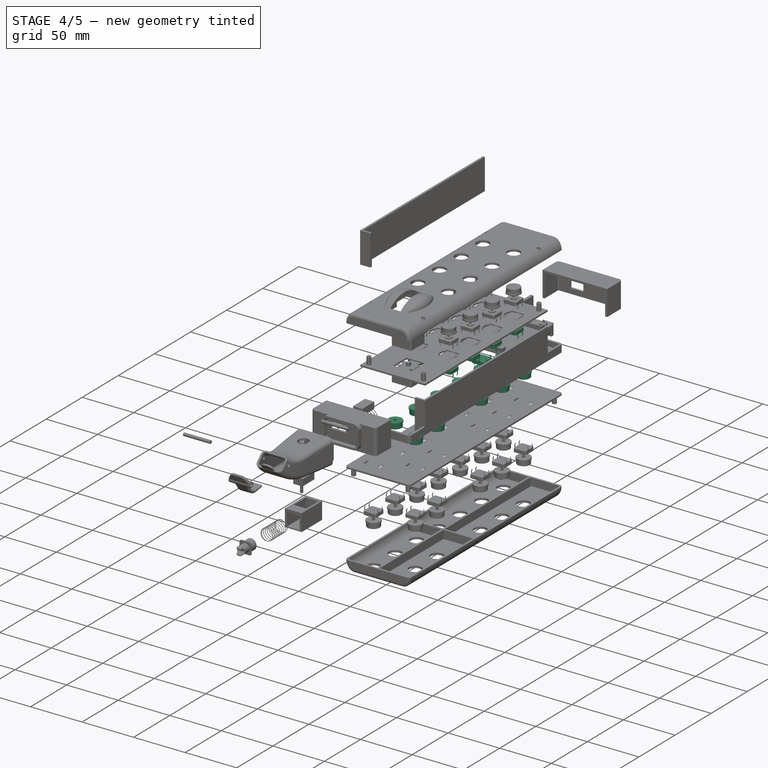
[diagram: stage 4 of 5 — iso view after this stage's code; geometry added in this stage tinted green]
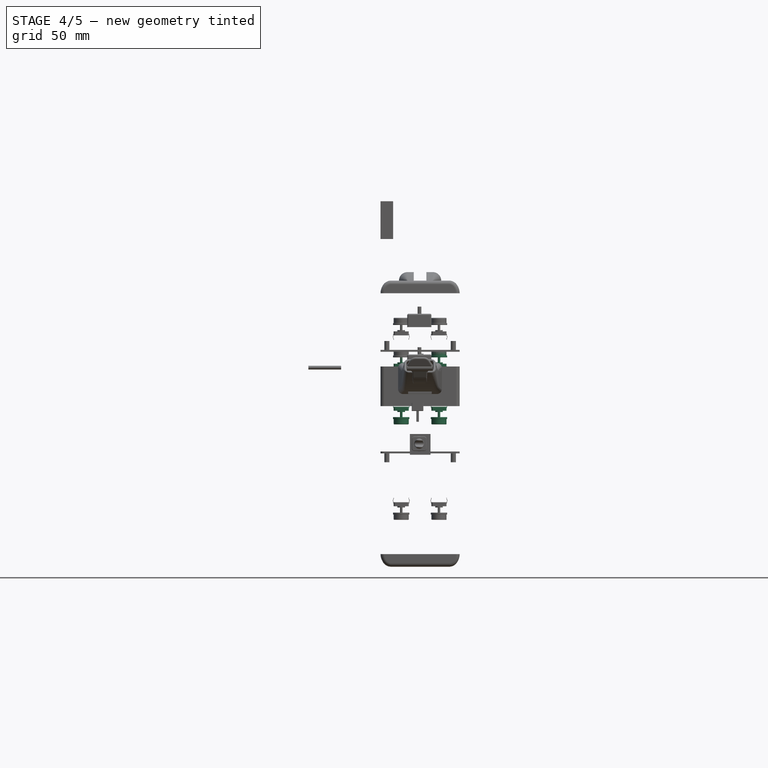
[diagram: stage 4 of 5 — front view after this stage's code; geometry added in this stage tinted green]
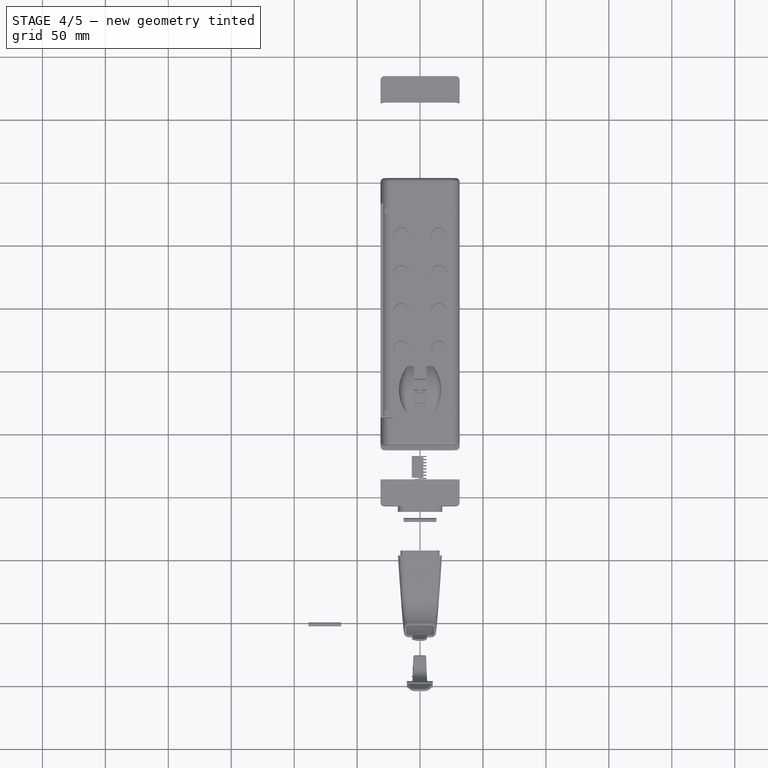
[diagram: stage 4 of 5 — top view after this stage's code; geometry added in this stage tinted green]
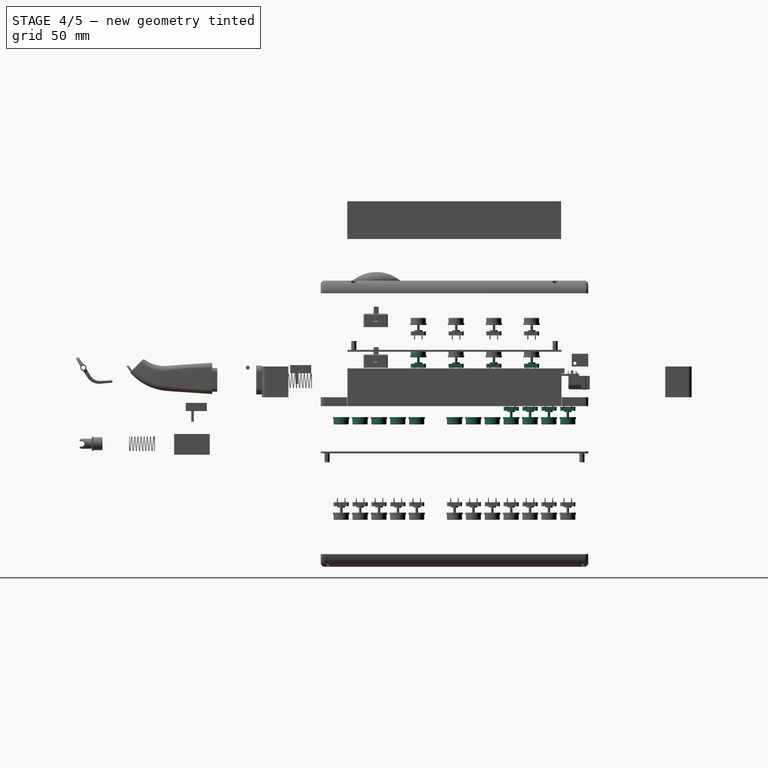
[diagram: stage 4 of 5 — right view after this stage's code; geometry added in this stage tinted green]
FEATURE [Part::FeaturePython] b_Base_boton_001_008  label="Base boton_009"  # a2plus imported part (geometry in sourceFile) (typed FeaturePython)
  Placement = pos=(15,-61.25,-32) rot=(0.707107,0.707107,0;3.14159rad)
  a2p_Version = V0.1
  fixedPosition = false
  objectType = a2pPart
  sourceFile = ./Base boton.FCStd
  subassemblyImport = false
  timeLastImport = 1.64969e+09
  updateColors = true
FEATURE [Part::FeaturePython] b_Base_boton_001_009  label="Base boton_010"  # a2plus imported part (geometry in sourceFile) (typed FeaturePython)
  Placement = pos=(-15,-46.25,-32) rot=(0.707107,0.707107,0;3.14159rad)
  a2p_Version = V0.1
  fixedPosition = false
  objectType = a2pPart
  sourceFile = ./Base boton.FCStd
  subassemblyImport = false
  timeLastImport = 1.64969e+09
  updateColors = true
FEATURE [Part::FeaturePython] b_Base_boton_001_010  label="Base boton_011"  # a2plus imported part (geometry in sourceFile) (typed FeaturePython)
  Placement = pos=(15,-31.25,-32) rot=(0.707107,0.707107,0;3.14159rad)
  a2p_Version = V0.1
  fixedPosition = false
  objectType = a2pPart
  sourceFile = ./Base boton.FCStd
  subassemblyImport = false
  timeLastImport = 1.64969e+09
  updateColors = true
FEATURE [Part::FeaturePython] b_Base_boton_001_011  label="Base boton_012"  # a2plus imported part (geometry in sourceFile) (typed FeaturePython)
  Placement = pos=(-15,-16.25,-32) rot=(0.707107,0.707107,0;3.14159rad)
  a2p_Version = V0.1
  fixedPosition = false
  objectType = a2pPart
  sourceFile = ./Base boton.FCStd
  subassemblyImport = false
  timeLastImport = 1.64969e+09
  updateColors = true
FEATURE [App::FeaturePython] axisCoincident_008  label="axisCoincident_008__cubierta_001"  # a2plus constraint (typed FeaturePython)
  Object1 = b_Base_boton_001_
  Object2 = b_cubierta_001_
  ParentTreeObject = -> b_Base_boton_001_
  SubElement1 = Face53
  SubElement2 = Face53
  Suppressed = false
  Type = axial
  directionConstraint = 1
  lockRotation = false
FEATURE [App::FeaturePython] axisCoincident_008_mirror  label="axisCoincident_008__Base boton_001"  # a2plus constraint (typed FeaturePython)
  Object1 = b_Base_boton_001_
  Object2 = b_cubierta_001_
  ParentTreeObject = -> b_cubierta_001_
  SubElement1 = Face53
  SubElement2 = Face53
  Suppressed = false
  Type = axial
  directionConstraint = 1
  lockRotation = false
FEATURE [App::FeaturePython] axisCoincident_009  label="axisCoincident_009__cubierta_001"  # a2plus constraint (typed FeaturePython)
  Object1 = b_Base_boton_001_002
  Object2 = b_cubierta_001_
  ParentTreeObject = -> b_Base_boton_001_002
  SubElement1 = Face53
  SubElement2 = Face27
  Suppressed = false
  Type = axial
  directionConstraint = 1
  lockRotation = false
FEATURE [App::FeaturePython] axisCoincident_009_mirror  label="axisCoincident_009__Base boton_003"  # a2plus constraint (typed FeaturePython)
  Object1 = b_Base_boton_001_002
  Object2 = b_cubierta_001_
  ParentTreeObject = -> b_cubierta_001_
  SubElement1 = Face53
  SubElement2 = Face27
  Suppressed = false
  Type = axial
  directionConstraint = 1
  lockRotation = false
FEATURE [App::FeaturePython] axisCoincident_010  label="axisCoincident_010__cubierta_001"  # a2plus constraint (typed FeaturePython)
  Object1 = b_Base_boton_001_003
  Object2 = b_cubierta_001_
  ParentTreeObject = -> b_Base_boton_001_003
  SubElement1 = Face53
  SubElement2 = Face26
  Suppressed = false
  Type = axial
  directionConstraint = 1
  lockRotation = false
FEATURE [App::FeaturePython] axisCoincident_010_mirror  label="axisCoincident_010__Base boton_004"  # a2plus constraint (typed FeaturePython)
  Object1 = b_Base_boton_001_003
  Object2 = b_cubierta_001_
  ParentTreeObject = -> b_cubierta_001_
  SubElement1 = Face53
  SubElement2 = Face26
  Suppressed = false
  Type = axial
  directionConstraint = 1
  lockRotation = false
FEATURE [App::FeaturePython] axisCoincident_011  label="axisCoincident_011__cubierta_001"  # a2plus constraint (typed FeaturePython)
  Object1 = b_Base_boton_001_001
  Object2 = b_cubierta_001_
  ParentTreeObject = -> b_Base_boton_001_001
  SubElement1 = Face53
  SubElement2 = Face52
  Suppressed = false
  Type = axial
  directionConstraint = 1
  lockRotation = false
FEATURE [App::FeaturePython] axisCoincident_011_mirror  label="axisCoincident_011__Base boton_002"  # a2plus constraint (typed FeaturePython)
  Object1 = b_Base_boton_001_001
  Object2 = b_cubierta_001_
  ParentTreeObject = -> b_cubierta_001_
  SubElement1 = Face53
  SubElement2 = Face52
  Suppressed = false
  Type = axial
  directionConstraint = 1
  lockRotation = false
FEATURE [App::FeaturePython] axisCoincident_012  label="axisCoincident_012__cubierta_001"  # a2plus constraint (typed FeaturePython)
  Object1 = b_Base_boton_001_004
  Object2 = b_cubierta_001_
  ParentTreeObject = -> b_Base_boton_001_004
  SubElement1 = Face53
  SubElement2 = Face51
  Suppressed = false
  Type = axial
  directionConstraint = 1
  lockRotation = false
FEATURE [App::FeaturePython] axisCoincident_012_mirror  label="axisCoincident_012__Base boton_005"  # a2plus constraint (typed FeaturePython)
  Object1 = b_Base_boton_001_004
  Object2 = b_cubierta_001_
  ParentTreeObject = -> b_cubierta_001_
  SubElement1 = Face53
  SubElement2 = Face51
  Suppressed = false
  Type = axial
  directionConstraint = 1
  lockRotation = false
FEATURE [App::FeaturePython] axisCoincident_013  label="axisCoincident_013__cubierta_001"  # a2plus constraint (typed FeaturePython)
  Object1 = b_Base_boton_001_005
  Object2 = b_cubierta_001_
  ParentTreeObject = -> b_Base_boton_001_005
  SubElement1 = Face53
  SubElement2 = Face116
  Suppressed = false
  Type = axial
  directionConstraint = 1
  lockRotation = false
FEATURE [App::FeaturePython] axisCoincident_013_mirror  label="axisCoincident_013__Base boton_006"  # a2plus constraint (typed FeaturePython)
  Object1 = b_Base_boton_001_005
  Object2 = b_cubierta_001_
  ParentTreeObject = -> b_cubierta_001_
  SubElement1 = Face53
  SubElement2 = Face116
  Suppressed = false
  Type = axial
  directionConstraint = 1
  lockRotation = false
FEATURE [App::FeaturePython] axisCoincident_014  label="axisCoincident_014__cubierta_001"  # a2plus constraint (typed FeaturePython)
  Object1 = b_Base_boton_001_006
  Object2 = b_cubierta_001_
  ParentTreeObject = -> b_Base_boton_001_006
  SubElement1 = Face53
  SubElement2 = Face87
  Suppressed = false
  Type = axial
  directionConstraint = 1
  lockRotation = false
FEATURE [App::FeaturePython] axisCoincident_014_mirror  label="axisCoincident_014__Base boton_007"  # a2plus constraint (typed FeaturePython)
  Object1 = b_Base_boton_001_006
  Object2 = b_cubierta_001_
  ParentTreeObject = -> b_cubierta_001_
  SubElement1 = Face53
  SubElement2 = Face87
  Suppressed = false
  Type = axial
  directionConstraint = 1
  lockRotation = false
FEATURE [App::FeaturePython] axisCoincident_015  label="axisCoincident_015__cubierta_001"  # a2plus constraint (typed FeaturePython)
  Object1 = b_Base_boton_001_007
  Object2 = b_cubierta_001_
  ParentTreeObject = -> b_Base_boton_001_007
  SubElement1 = Face53
  SubElement2 = Face115
  Suppressed = false
  Type = axial
  directionConstraint = 1
  lockRotation = false
FEATURE [App::FeaturePython] axisCoincident_015_mirror  label="axisCoincident_015__Base boton_008"  # a2plus constraint (typed FeaturePython)
  Object1 = b_Base_boton_001_007
  Object2 = b_cubierta_001_
  ParentTreeObject = -> b_cubierta_001_
  SubElement1 = Face53
  SubElement2 = Face115
  Suppressed = false
  Type = axial
  directionConstraint = 1
  lockRotation = false
FEATURE [App::FeaturePython] axisCoincident_016  label="axisCoincident_016__cubierta_001"  # a2plus constraint (typed FeaturePython)
  Object1 = b_Base_boton_001_008
  Object2 = b_cubierta_001_
  ParentTreeObject = -> b_Base_boton_001_008
  SubElement1 = Face53
  SubElement2 = Face86
  Suppressed = false
  Type = axial
  directionConstraint = 1
  lockRotation = false
FEATURE [App::FeaturePython] axisCoincident_016_mirror  label="axisCoincident_016__Base boton_009"  # a2plus constraint (typed FeaturePython)
  Object1 = b_Base_boton_001_008
  Object2 = b_cubierta_001_
  ParentTreeObject = -> b_cubierta_001_
  SubElement1 = Face53
  SubElement2 = Face86
  Suppressed = false
  Type = axial
  directionConstraint = 1
  lockRotation = false
FEATURE [App::FeaturePython] axisCoincident_017  label="axisCoincident_017__cubierta_001"  # a2plus constraint (typed FeaturePython)
  Object1 = b_Base_boton_001_009
  Object2 = b_cubierta_001_
  ParentTreeObject = -> b_Base_boton_001_009
  SubElement1 = Face53
  SubElement2 = Face114
  Suppressed = false
  Type = axial
  directionConstraint = 1
  lockRotation = false
FEATURE [App::FeaturePython] axisCoincident_017_mirror  label="axisCoincident_017__Base boton_010"  # a2plus constraint (typed FeaturePython)
  Object1 = b_Base_boton_001_009
  Object2 = b_cubierta_001_
  ParentTreeObject = -> b_cubierta_001_
  SubElement1 = Face53
  SubElement2 = Face114
  Suppressed = false
  Type = axial
  directionConstraint = 1
  lockRotation = false
FEATURE [App::FeaturePython] axisCoincident_018  label="axisCoincident_018__cubierta_001"  # a2plus constraint (typed FeaturePython)
  Object1 = b_Base_boton_001_010
  Object2 = b_cubierta_001_
  ParentTreeObject = -> b_Base_boton_001_010
  SubElement1 = Face53
  SubElement2 = Face85
  Suppressed = false
  Type = axial
  directionConstraint = 1
  lockRotation = false
FEATURE [App::FeaturePython] axisCoincident_018_mirror  label="axisCoincident_018__Base boton_011"  # a2plus constraint (typed FeaturePython)
  Object1 = b_Base_boton_001_010
  Object2 = b_cubierta_001_
  ParentTreeObject = -> b_cubierta_001_
  SubElement1 = Face53
  SubElement2 = Face85
  Suppressed = false
  Type = axial
  directionConstraint = 1
  lockRotation = false
FEATURE [App::FeaturePython] axisCoincident_019  label="axisCoincident_019__cubierta_001"  # a2plus constraint (typed FeaturePython)
  Object1 = b_Base_boton_001_011
  Object2 = b_cubierta_001_
  ParentTreeObject = -> b_Base_boton_001_011
  SubElement1 = Face53
  SubElement2 = Face113
  Suppressed = false
  Type = axial
  directionConstraint = 1
  lockRotation = false
FEATURE [App::FeaturePython] axisCoincident_019_mirror  label="axisCoincident_019__Base boton_012"  # a2plus constraint (typed FeaturePython)
  Object1 = b_Base_boton_001_011
  Object2 = b_cubierta_001_
  ParentTreeObject = -> b_cubierta_001_
  SubElement1 = Face53
  SubElement2 = Face113
  Suppressed = false
  Type = axial
  directionConstraint = 1
  lockRotation = false
FEATURE [App::FeaturePython] planesParallel_003  label="planesParallel_003__Base boton_001"  # a2plus constraint (typed FeaturePython)
  Object1 = b_soporte_botones_001_
  Object2 = b_Base_boton_001_
  ParentTreeObject = -> b_soporte_botones_001_
  SubElement1 = Face18
  SubElement2 = Face18
  Suppressed = false
  Type = planesParallel
  directionConstraint = 1
FEATURE [App::FeaturePython] planesParallel_003_mirror  label="planesParallel_003__soporte botones_001"  # a2plus constraint (typed FeaturePython)
  Object1 = b_soporte_botones_001_
  Object2 = b_Base_boton_001_
  ParentTreeObject = -> b_Base_boton_001_
  SubElement1 = Face18
  SubElement2 = Face18
  Suppressed = false
  Type = planesParallel
  directionConstraint = 1
FEATURE [App::FeaturePython] planesParallel_004  label="planesParallel_004__Base boton_003"  # a2plus constraint (typed FeaturePython)
  Object1 = b_Base_boton_001_
  Object2 = b_Base_boton_001_002
  ParentTreeObject = -> b_Base_boton_001_
  SubElement1 = Face15
  SubElement2 = Face15
  Suppressed = false
  Type = planesParallel
  directionConstraint = 0
FEATURE [App::FeaturePython] planesParallel_004_mirror  label="planesParallel_004__Base boton_001"  # a2plus constraint (typed FeaturePython)
  Object1 = b_Base_boton_001_
  Object2 = b_Base_boton_001_002
  ParentTreeObject = -> b_Base_boton_001_002
  SubElement1 = Face15
  SubElement2 = Face15
  Suppressed = false
  Type = planesParallel
  directionConstraint = 0
FEATURE [App::FeaturePython] planesParallel_005  label="planesParallel_005__Base boton_002"  # a2plus constraint (typed FeaturePython)
  Object1 = b_Base_boton_001_002
  Object2 = b_Base_boton_001_001
  ParentTreeObject = -> b_Base_boton_001_002
  SubElement1 = Face15
  SubElement2 = Face15
  Suppressed = false
  Type = planesParallel
  directionConstraint = 0
FEATURE [App::FeaturePython] planesParallel_005_mirror  label="planesParallel_005__Base boton_003"  # a2plus constraint (typed FeaturePython)
  Object1 = b_Base_boton_001_002
  Object2 = b_Base_boton_001_001
  ParentTreeObject = -> b_Base_boton_001_001
  SubElement1 = Face15
  SubElement2 = Face15
  Suppressed = false
  Type = planesParallel
  directionConstraint = 0
FEATURE [App::FeaturePython] planesParallel_006  label="planesParallel_006__Base boton_004"  # a2plus constraint (typed FeaturePython)
  Object1 = b_Base_boton_001_001
  Object2 = b_Base_boton_001_003
  ParentTreeObject = -> b_Base_boton_001_001
  SubElement1 = Face15
  SubElement2 = Face15
  Suppressed = false
  Type = planesParallel
  directionConstraint = 0
FEATURE [App::FeaturePython] planesParallel_006_mirror  label="planesParallel_006__Base boton_002"  # a2plus constraint (typed FeaturePython)
  Object1 = b_Base_boton_001_001
  Object2 = b_Base_boton_001_003
  ParentTreeObject = -> b_Base_boton_001_003
  SubElement1 = Face15
  SubElement2 = Face15
  Suppressed = false
  Type = planesParallel
  directionConstraint = 0
FEATURE [App::FeaturePython] planesParallel_007  label="planesParallel_007__Base boton_005"  # a2plus constraint (typed FeaturePython)
  Object1 = b_Base_boton_001_003
  Object2 = b_Base_boton_001_004
  ParentTreeObject = -> b_Base_boton_001_003
  SubElement1 = Face15
  SubElement2 = Face15
  Suppressed = false
  Type = planesParallel
  directionConstraint = 0
FEATURE [App::FeaturePython] planesParallel_007_mirror  label="planesParallel_007__Base boton_004"  # a2plus constraint (typed FeaturePython)
  Object1 = b_Base_boton_001_003
  Object2 = b_Base_boton_001_004
  ParentTreeObject = -> b_Base_boton_001_004
  SubElement1 = Face15
  SubElement2 = Face15
  Suppressed = false
  Type = planesParallel
  directionConstraint = 0
FEATURE [App::FeaturePython] planesParallel_008  label="planesParallel_008__Base boton_006"  # a2plus constraint (typed FeaturePython)
  Object1 = b_Base_boton_001_004
  Object2 = b_Base_boton_001_005
  ParentTreeObject = -> b_Base_boton_001_004
  SubElement1 = Face15
  SubElement2 = Face15
  Suppressed = false
  Type = planesParallel
  directionConstraint = 0
FEATURE [App::FeaturePython] planesParallel_008_mirror  label="planesParallel_008__Base boton_005"  # a2plus constraint (typed FeaturePython)
  Object1 = b_Base_boton_001_004
  Object2 = b_Base_boton_001_005
  ParentTreeObject = -> b_Base_boton_001_005
  SubElement1 = Face15
  SubElement2 = Face15
  Suppressed = false
  Type = planesParallel
  directionConstraint = 0
FEATURE [App::FeaturePython] planesParallel_009  label="planesParallel_009__Base boton_007"  # a2plus constraint (typed FeaturePython)
  Object1 = b_Base_boton_001_005
  Object2 = b_Base_boton_001_006
  ParentTreeObject = -> b_Base_boton_001_005
  SubElement1 = Face15
  SubElement2 = Face15
  Suppressed = false
  Type = planesParallel
  directionConstraint = 0
FEATURE [App::FeaturePython] planesParallel_009_mirror  label="planesParallel_009__Base boton_006"  # a2plus constraint (typed FeaturePython)
  Object1 = b_Base_boton_001_005
  Object2 = b_Base_boton_001_006
  ParentTreeObject = -> b_Base_boton_001_006
  SubElement1 = Face15
  SubElement2 = Face15
  Suppressed = false
  Type = planesParallel
  directionConstraint = 0
FEATURE [App::FeaturePython] planesParallel_010  label="planesParallel_010__Base boton_008"  # a2plus constraint (typed FeaturePython)
  Object1 = b_Base_boton_001_006
  Object2 = b_Base_boton_001_007
  ParentTreeObject = -> b_Base_boton_001_006
  SubElement1 = Face15
  SubElement2 = Face15
  Suppressed = false
  Type = planesParallel
  directionConstraint = 0
FEATURE [App::FeaturePython] planesParallel_010_mirror  label="planesParallel_010__Base boton_007"  # a2plus constraint (typed FeaturePython)
  Object1 = b_Base_boton_001_006
  Object2 = b_Base_boton_001_007
  ParentTreeObject = -> b_Base_boton_001_007
  SubElement1 = Face15
  SubElement2 = Face15
  Suppressed = false
  Type = planesParallel
  directionConstraint = 0
FEATURE [App::FeaturePython] planesParallel_011  label="planesParallel_011__Base boton_009"  # a2plus constraint (typed FeaturePython)
  Object1 = b_Base_boton_001_007
  Object2 = b_Base_boton_001_008
  ParentTreeObject = -> b_Base_boton_001_007
  SubElement1 = Face15
  SubElement2 = Face15
  Suppressed = false
  Type = planesParallel
  directionConstraint = 0
FEATURE [App::FeaturePython] planesParallel_011_mirror  label="planesParallel_011__Base boton_008"  # a2plus constraint (typed FeaturePython)
  Object1 = b_Base_boton_001_007
  Object2 = b_Base_boton_001_008
  ParentTreeObject = -> b_Base_boton_001_008
  SubElement1 = Face15
  SubElement2 = Face15
  Suppressed = false
  Type = planesParallel
  directionConstraint = 0
FEATURE [App::FeaturePython] planesParallel_012  label="planesParallel_012__Base boton_010"  # a2plus constraint (typed FeaturePython)
  Object1 = b_Base_boton_001_008
  Object2 = b_Base_boton_001_009
  ParentTreeObject = -> b_Base_boton_001_008
  SubElement1 = Face15
  SubElement2 = Face15
  Suppressed = false
  Type = planesParallel
  directionConstraint = 0
FEATURE [App::FeaturePython] planesParallel_012_mirror  label="planesParallel_012__Base boton_009"  # a2plus constraint (typed FeaturePython)
  Object1 = b_Base_boton_001_008
  Object2 = b_Base_boton_001_009
  ParentTreeObject = -> b_Base_boton_001_009
  SubElement1 = Face15
  SubElement2 = Face15
  Suppressed = false
  Type = planesParallel
  directionConstraint = 0
FEATURE [App::FeaturePython] planesParallel_013  label="planesParallel_013__Base boton_010"  # a2plus constraint (typed FeaturePython)
  Object1 = b_Base_boton_001_010
  Object2 = b_Base_boton_001_009
  ParentTreeObject = -> b_Base_boton_001_010
  SubElement1 = Face15
  SubElement2 = Face15
  Suppressed = false
  Type = planesParallel
  directionConstraint = 0
FEATURE [App::FeaturePython] planesParallel_013_mirror  label="planesParallel_013__Base boton_011"  # a2plus constraint (typed FeaturePython)
  Object1 = b_Base_boton_001_010
  Object2 = b_Base_boton_001_009
  ParentTreeObject = -> b_Base_boton_001_009
  SubElement1 = Face15
  SubElement2 = Face15
  Suppressed = false
  Type = planesParallel
  directionConstraint = 0
FEATURE [App::FeaturePython] planesParallel_014  label="planesParallel_014__Base boton_011"  # a2plus constraint (typed FeaturePython)
  Object1 = b_Base_boton_001_011
  Object2 = b_Base_boton_001_010
  ParentTreeObject = -> b_Base_boton_001_011
  SubElement1 = Face15
  SubElement2 = Face15
  Suppressed = false
  Type = planesParallel
  directionConstraint = 0
FEATURE [App::FeaturePython] planesParallel_014_mirror  label="planesParallel_014__Base boton_012"  # a2plus constraint (typed FeaturePython)
  Object1 = b_Base_boton_001_011
  Object2 = b_Base_boton_001_010
  ParentTreeObject = -> b_Base_boton_001_010
  SubElement1 = Face15
  SubElement2 = Face15
  Suppressed = false
  Type = planesParallel
  directionConstraint = 0
FEATURE [App::FeaturePython] planeCoincident_035  label="planeCoincident_035__soporte botones_001"  # a2plus constraint (typed FeaturePython)
  Object1 = b_Base_boton_001_002
  Object2 = b_soporte_botones_001_
  ParentTreeObject = -> b_Base_boton_001_002
  SubElement1 = Face2
  SubElement2 = Face199
  Suppressed = false
  Type = plane
  directionConstraint = 0
  offset = 0
FEATURE [App::FeaturePython] planeCoincident_035_mirror  label="planeCoincident_035__Base boton_003"  # a2plus constraint (typed FeaturePython)
  Object1 = b_Base_boton_001_002
  Object2 = b_soporte_botones_001_
  ParentTreeObject = -> b_soporte_botones_001_
  SubElement1 = Face2
  SubElement2 = Face199
  Suppressed = false
  Type = plane
  directionConstraint = 0
  offset = 0
FEATURE [App::FeaturePython] planeCoincident_036  label="planeCoincident_036__soporte botones_001"  # a2plus constraint (typed FeaturePython)
  Object1 = b_Base_boton_001_001
  Object2 = b_soporte_botones_001_
  ParentTreeObject = -> b_Base_boton_001_001
  SubElement1 = Face2
  SubElement2 = Face190
  Suppressed = false
  Type = plane
  directionConstraint = 0
  offset = 0
FEATURE [App::FeaturePython] planeCoincident_036_mirror  label="planeCoincident_036__Base boton_002"  # a2plus constraint (typed FeaturePython)
  Object1 = b_Base_boton_001_001
  Object2 = b_soporte_botones_001_
  ParentTreeObject = -> b_soporte_botones_001_
  SubElement1 = Face2
  SubElement2 = Face190
  Suppressed = false
  Type = plane
  directionConstraint = 0
  offset = 0
FEATURE [App::FeaturePython] planeCoincident_037  label="planeCoincident_037__soporte botones_001"  # a2plus constraint (typed FeaturePython)
  Object1 = b_Base_boton_001_003
  Object2 = b_soporte_botones_001_
  ParentTreeObject = -> b_Base_boton_001_003
  SubElement1 = Face2
  SubElement2 = Face201
  Suppressed = false
  Type = plane
  directionConstraint = 0
  offset = 0
FEATURE [App::FeaturePython] planeCoincident_037_mirror  label="planeCoincident_037__Base boton_004"  # a2plus constraint (typed FeaturePython)
  Object1 = b_Base_boton_001_003
  Object2 = b_soporte_botones_001_
  ParentTreeObject = -> b_soporte_botones_001_
  SubElement1 = Face2
  SubElement2 = Face201
  Suppressed = false
  Type = plane
  directionConstraint = 0
  offset = 0
FEATURE [App::FeaturePython] planeCoincident_038  label="planeCoincident_038__soporte botones_001"  # a2plus constraint (typed FeaturePython)
  Object1 = b_Base_boton_001_004
  Object2 = b_soporte_botones_001_
  ParentTreeObject = -> b_Base_boton_001_004
  SubElement1 = Face2
  SubElement2 = Face191
  Suppressed = false
  Type = plane
  directionConstraint = 0
  offset = 0
FEATURE [App::FeaturePython] planeCoincident_038_mirror  label="planeCoincident_038__Base boton_005"  # a2plus constraint (typed FeaturePython)
  Object1 = b_Base_boton_001_004
  Object2 = b_soporte_botones_001_
  ParentTreeObject = -> b_soporte_botones_001_
  SubElement1 = Face2
  SubElement2 = Face191
  Suppressed = false
  Type = plane
  directionConstraint = 0
  offset = 0
FEATURE [App::FeaturePython] planeCoincident_039  label="planeCoincident_039__soporte botones_001"  # a2plus constraint (typed FeaturePython)
  Object1 = b_Base_boton_001_005
  Object2 = b_soporte_botones_001_
  ParentTreeObject = -> b_Base_boton_001_005
  SubElement1 = Face2
  SubElement2 = Face192
  Suppressed = false
  Type = plane
  directionConstraint = 0
  offset = 0
FEATURE [App::FeaturePython] planeCoincident_039_mirror  label="planeCoincident_039__Base boton_006"  # a2plus constraint (typed FeaturePython)
  Object1 = b_Base_boton_001_005
  Object2 = b_soporte_botones_001_
  ParentTreeObject = -> b_soporte_botones_001_
  SubElement1 = Face2
  SubElement2 = Face192
  Suppressed = false
  Type = plane
  directionConstraint = 0
  offset = 0
FEATURE [App::FeaturePython] planeCoincident_040  label="planeCoincident_040__soporte botones_001"  # a2plus constraint (typed FeaturePython)
  Object1 = b_Base_boton_001_006
  Object2 = b_soporte_botones_001_
  ParentTreeObject = -> b_Base_boton_001_006
  SubElement1 = Face2
  SubElement2 = Face202
  Suppressed = false
  Type = plane
  directionConstraint = 0
  offset = 0
FEATURE [App::FeaturePython] planeCoincident_040_mirror  label="planeCoincident_040__Base boton_007"  # a2plus constraint (typed FeaturePython)
  Object1 = b_Base_boton_001_006
  Object2 = b_soporte_botones_001_
  ParentTreeObject = -> b_soporte_botones_001_
  SubElement1 = Face2
  SubElement2 = Face202
  Suppressed = false
  Type = plane
  directionConstraint = 0
  offset = 0
FEATURE [App::FeaturePython] planeCoincident_041  label="planeCoincident_041__soporte botones_001"  # a2plus constraint (typed FeaturePython)
  Object1 = b_Base_boton_001_007
  Object2 = b_soporte_botones_001_
  ParentTreeObject = -> b_Base_boton_001_007
  SubElement1 = Face2
  SubElement2 = Face193
  Suppressed = false
  Type = plane
  directionConstraint = 0
  offset = 0
FEATURE [App::FeaturePython] planeCoincident_041_mirror  label="planeCoincident_041__Base boton_008"  # a2plus constraint (typed FeaturePython)
  Object1 = b_Base_boton_001_007
  Object2 = b_soporte_botones_001_
  ParentTreeObject = -> b_soporte_botones_001_
  SubElement1 = Face2
  SubElement2 = Face193
  Suppressed = false
  Type = plane
  directionConstraint = 0
  offset = 0
FEATURE [App::FeaturePython] planeCoincident_042  label="planeCoincident_042__soporte botones_001"  # a2plus constraint (typed FeaturePython)
  Object1 = b_Base_boton_001_008
  Object2 = b_soporte_botones_001_
  ParentTreeObject = -> b_Base_boton_001_008
  SubElement1 = Face2
  SubElement2 = Face203
  Suppressed = false
  Type = plane
  directionConstraint = 0
  offset = 0
FEATURE [App::FeaturePython] planeCoincident_042_mirror  label="planeCoincident_042__Base boton_009"  # a2plus constraint (typed FeaturePython)
  Object1 = b_Base_boton_001_008
  Object2 = b_soporte_botones_001_
  ParentTreeObject = -> b_soporte_botones_001_
  SubElement1 = Face2
  SubElement2 = Face203
  Suppressed = false
  Type = plane
  directionConstraint = 0
  offset = 0
FEATURE [App::FeaturePython] planeCoincident_043  label="planeCoincident_043__soporte botones_001"  # a2plus constraint (typed FeaturePython)
  Object1 = b_Base_boton_001_009
  Object2 = b_soporte_botones_001_
  ParentTreeObject = -> b_Base_boton_001_009
  SubElement1 = Face2
  SubElement2 = Face195
  Suppressed = false
  Type = plane
  directionConstraint = 0
  offset = 0
FEATURE [App::FeaturePython] planeCoincident_043_mirror  label="planeCoincident_043__Base boton_010"  # a2plus constraint (typed FeaturePython)
  Object1 = b_Base_boton_001_009
  Object2 = b_soporte_botones_001_
  ParentTreeObject = -> b_soporte_botones_001_
  SubElement1 = Face2
  SubElement2 = Face195
  Suppressed = false
  Type = plane
  directionConstraint = 0
  offset = 0
FEATURE [App::FeaturePython] planeCoincident_044  label="planeCoincident_044__soporte botones_001"  # a2plus constraint (typed FeaturePython)
  Object1 = b_Base_boton_001_010
  Object2 = b_soporte_botones_001_
  ParentTreeObject = -> b_Base_boton_001_010
  SubElement1 = Face2
  SubElement2 = Face204
  Suppressed = false
  Type = plane
  directionConstraint = 0
  offset = 0
FEATURE [App::FeaturePython] planeCoincident_044_mirror  label="planeCoincident_044__Base boton_011"  # a2plus constraint (typed FeaturePython)
  Object1 = b_Base_boton_001_010
  Object2 = b_soporte_botones_001_
  ParentTreeObject = -> b_soporte_botones_001_
  SubElement1 = Face2
  SubElement2 = Face204
  Suppressed = false
  Type = plane
  directionConstraint = 0
  offset = 0
FEATURE [App::FeaturePython] planeCoincident_045  label="planeCoincident_045__soporte botones_001"  # a2plus constraint (typed FeaturePython)
  Object1 = b_Base_boton_001_011
  Object2 = b_soporte_botones_001_
  ParentTreeObject = -> b_Base_boton_001_011
  SubElement1 = Face2
  SubElement2 = Face196
  Suppressed = false
  Type = plane
  directionConstraint = 0
  offset = 0
FEATURE [App::FeaturePython] planeCoincident_045_mirror  label="planeCoincident_045__Base boton_012"  # a2plus constraint (typed FeaturePython)
  Object1 = b_Base_boton_001_011
  Object2 = b_soporte_botones_001_
  ParentTreeObject = -> b_soporte_botones_001_
  SubElement1 = Face2
  SubElement2 = Face196
  Suppressed = false
  Type = plane
  directionConstraint = 0
  offset = 0
FEATURE [Part::FeaturePython] b_Pulsador_Boton_001_  label="Pulsador Boton_001"  # a2plus imported part (geometry in sourceFile) (typed FeaturePython)
  Placement = pos=(-15,-196.25,-40.2389) rot=(1,0,0;3.14159rad)
  a2p_Version = V0.1
  fixedPosition = false
  objectType = a2pPart
  sourceFile = ./Pulsador Boton.FCStd
  subassemblyImport = false
  timeLastImport = 1.64969e+09
  updateColors = true
FEATURE [App::FeaturePython] planeCoincident_046_mirror001  label="planeCoincident_046__Pulsador Boton_001"  # a2plus constraint (typed FeaturePython)
  Object1 = b_Pulsador_Boton_001_
  Object2 = b_Base_boton_001_
  ParentTreeObject = -> b_Base_boton_001_
  SubElement1 = Face9
  SubElement2 = Face36
  Suppressed = false
  Type = plane
  directionConstraint = 0
  offset = 0
FEATURE [App::FeaturePython] axisCoincident_020  label="axisCoincident_020__Pulsador Boton_001"  # a2plus constraint (typed FeaturePython)
  Object1 = b_Base_boton_001_
  Object2 = b_Pulsador_Boton_001_
  ParentTreeObject = -> b_Base_boton_001_
  SubElement1 = Face53
  SubElement2 = Face10
  Suppressed = false
  Type = axial
  directionConstraint = 1
  lockRotation = false
FEATURE [App::FeaturePython] axisCoincident_020_mirror  label="axisCoincident_020__Base boton_001"  # a2plus constraint (typed FeaturePython)
  Object1 = b_Base_boton_001_
  Object2 = b_Pulsador_Boton_001_
  ParentTreeObject = -> b_Pulsador_Boton_001_
  SubElement1 = Face53
  SubElement2 = Face10
  Suppressed = false
  Type = axial
  directionConstraint = 1
  lockRotation = false
FEATURE [App::FeaturePython] planeCoincident_046  label="planeCoincident_046__Base boton_001"  # a2plus constraint (typed FeaturePython)
  Object1 = b_Pulsador_Boton_001_
  Object2 = b_Base_boton_001_
  ParentTreeObject = -> b_Pulsador_Boton_001_
  SubElement1 = Face11
  SubElement2 = Face70
  Suppressed = false
  Type = plane
  directionConstraint = 0
  offset = 0
FEATURE [App::FeaturePython] planeCoincident_046_mirror  label="planeCoincident_046__Pulsador Boton_002"  # a2plus constraint (typed FeaturePython)
  Object1 = b_Pulsador_Boton_001_
  Object2 = b_Base_boton_001_
  ParentTreeObject = -> b_Base_boton_001_
  SubElement1 = Face11
  SubElement2 = Face70
  Suppressed = false
  Type = plane
  directionConstraint = 0
  offset = 0
FEATURE [App::FeaturePython] axisCoincident_021  label="axisCoincident_021__Base boton_001"  # a2plus constraint (typed FeaturePython)
  Object1 = b_Pulsador_Boton_001_
  Object2 = b_Base_boton_001_
  ParentTreeObject = -> b_Pulsador_Boton_001_
  SubElement1 = Face1
  SubElement2 = Face53
  Suppressed = false
  Type = axial
  directionConstraint = 0
  lockRotation = false
FEATURE [App::FeaturePython] axisCoincident_021_mirror  label="axisCoincident_021__Pulsador Boton_001"  # a2plus constraint (typed FeaturePython)
  Object1 = b_Pulsador_Boton_001_
  Object2 = b_Base_boton_001_
  ParentTreeObject = -> b_Base_boton_001_
  SubElement1 = Face1
  SubElement2 = Face53
  Suppressed = false
  Type = axial
  directionConstraint = 0
  lockRotation = false
FEATURE [Part::FeaturePython] b_Pulsador_Boton_001_001  label="Pulsador Boton_002"  # a2plus imported part (geometry in sourceFile) (typed FeaturePython)
  Placement = pos=(15,-181.25,-40.2389) rot=(1,0,0;3.14159rad)
  a2p_Version = V0.1
  fixedPosition = false
  objectType = a2pPart
  sourceFile = ./Pulsador Boton.FCStd
  subassemblyImport = false
  timeLastImport = 1.64969e+09
  updateColors = true
FEATURE [Part::FeaturePython] b_Pulsador_Boton_001_002  label="Pulsador Boton_003"  # a2plus imported part (geometry in sourceFile) (typed FeaturePython)
  Placement = pos=(-15,-166.25,-40.2389) rot=(1,0,0;3.14159rad)
  a2p_Version = V0.1
  fixedPosition = false
  objectType = a2pPart
  sourceFile = ./Pulsador Boton.FCStd
  subassemblyImport = false
  timeLastImport = 1.64969e+09
  updateColors = true
FEATURE [Part::FeaturePython] b_Pulsador_Boton_001_003  label="Pulsador Boton_004"  # a2plus imported part (geometry in sourceFile) (typed FeaturePython)
  Placement = pos=(15,-151.25,-40.2389) rot=(1,0,0;3.14159rad)
  a2p_Version = V0.1
  fixedPosition = false
  objectType = a2pPart
  sourceFile = ./Pulsador Boton.FCStd
  subassemblyImport = false
  timeLastImport = 1.64969e+09
  updateColors = true
FEATURE [Part::FeaturePython] b_Pulsador_Boton_001_004  label="Pulsador Boton_005"  # a2plus imported part (geometry in sourceFile) (typed FeaturePython)
  Placement = pos=(-15,-136.25,-40.2389) rot=(1,0,0;3.14159rad)
  a2p_Version = V0.1
  fixedPosition = false
  objectType = a2pPart
  sourceFile = ./Pulsador Boton.FCStd
  subassemblyImport = false
  timeLastImport = 1.64969e+09
  updateColors = true
FEATURE [Part::FeaturePython] b_Pulsador_Boton_001_005  label="Pulsador Boton_006"  # a2plus imported part (geometry in sourceFile) (typed FeaturePython)
  Placement = pos=(-15,-106.25,-40.2389) rot=(1,0,0;3.14159rad)
  a2p_Version = V0.1
  fixedPosition = false
  objectType = a2pPart
  sourceFile = ./Pulsador Boton.FCStd
  subassemblyImport = false
  timeLastImport = 1.64969e+09
  updateColors = true
FEATURE [Part::FeaturePython] b_Pulsador_Boton_001_006  label="Pulsador Boton_007"  # a2plus imported part (geometry in sourceFile) (typed FeaturePython)
  Placement = pos=(15,-91.25,-40.2389) rot=(1,0,0;3.14159rad)
  a2p_Version = V0.1
  fixedPosition = false
  objectType = a2pPart
  sourceFile = ./Pulsador Boton.FCStd
  subassemblyImport = false
  timeLastImport = 1.64969e+09
  updateColors = true
FEATURE [Part::FeaturePython] b_Pulsador_Boton_001_007  label="Pulsador Boton_008"  # a2plus imported part (geometry in sourceFile) (typed FeaturePython)
  Placement = pos=(-15,-76.25,-40.2389) rot=(1,0,0;3.14159rad)
  a2p_Version = V0.1
  fixedPosition = false
  objectType = a2pPart
  sourceFile = ./Pulsador Boton.FCStd
  subassemblyImport = false
  timeLastImport = 1.64969e+09
  updateColors = true
FEATURE [Part::FeaturePython] b_Pulsador_Boton_001_008  label="Pulsador Boton_009"  # a2plus imported part (geometry in sourceFile) (typed FeaturePython)
  Placement = pos=(15,-61.25,-40.2389) rot=(1,0,0;3.14159rad)
  a2p_Version = V0.1
  fixedPosition = false
  objectType = a2pPart
  sourceFile = ./Pulsador Boton.FCStd
  subassemblyImport = false
  timeLastImport = 1.64969e+09
  updateColors = true
FEATURE [Part::FeaturePython] b_Pulsador_Boton_001_009  label="Pulsador Boton_010"  # a2plus imported part (geometry in sourceFile) (typed FeaturePython)
  Placement = pos=(-15,-46.25,-40.2389) rot=(1,0,0;3.14159rad)
  a2p_Version = V0.1
  fixedPosition = false
  objectType = a2pPart
  sourceFile = ./Pulsador Boton.FCStd
  subassemblyImport = false
  timeLastImport = 1.64969e+09
  updateColors = true
FEATURE [Part::FeaturePython] b_Pulsador_Boton_001_010  label="Pulsador Boton_011"  # a2plus imported part (geometry in sourceFile) (typed FeaturePython)
  Placement = pos=(15,-31.25,-40.2389) rot=(1,0,0;3.14159rad)
  a2p_Version = V0.1
  fixedPosition = false
  objectType = a2pPart
  sourceFile = ./Pulsador Boton.FCStd
  subassemblyImport = false
  timeLastImport = 1.64969e+09
  updateColors = true
FEATURE [Part::FeaturePython] b_Pulsador_Boton_001_011  label="Pulsador Boton_012"  # a2plus imported part (geometry in sourceFile) (typed FeaturePython)
  Placement = pos=(-15,-16.25,-40.2389) rot=(1,0,0;3.14159rad)
  a2p_Version = V0.1
  fixedPosition = false
  objectType = a2pPart
  sourceFile = ./Pulsador Boton.FCStd
  subassemblyImport = false
  timeLastImport = 1.64969e+09
  updateColors = true
FEATURE [App::FeaturePython] axisCoincident_022  label="axisCoincident_022__Base boton_003"  # a2plus constraint (typed FeaturePython)
  Object1 = b_Pulsador_Boton_001_001
  Object2 = b_Base_boton_001_002
  ParentTreeObject = -> b_Pulsador_Boton_001_001
  SubElement1 = Face1
  SubElement2 = Face53
  Suppressed = false
  Type = axial
  directionConstraint = 0
  lockRotation = false
FEATURE [App::FeaturePython] axisCoincident_022_mirror  label="axisCoincident_022__Pulsador Boton_002"  # a2plus constraint (typed FeaturePython)
  Object1 = b_Pulsador_Boton_001_001
  Object2 = b_Base_boton_001_002
  ParentTreeObject = -> b_Base_boton_001_002
  SubElement1 = Face1
  SubElement2 = Face53
  Suppressed = false
  Type = axial
  directionConstraint = 0
  lockRotation = false
FEATURE [App::FeaturePython] axisCoincident_023  label="axisCoincident_023__Base boton_002"  # a2plus constraint (typed FeaturePython)
  Object1 = b_Pulsador_Boton_001_002
  Object2 = b_Base_boton_001_001
  ParentTreeObject = -> b_Pulsador_Boton_001_002
  SubElement1 = Face1
  SubElement2 = Face53
  Suppressed = false
  Type = axial
  directionConstraint = 0
  lockRotation = false
FEATURE [App::FeaturePython] axisCoincident_023_mirror  label="axisCoincident_023__Pulsador Boton_003"  # a2plus constraint (typed FeaturePython)
  Object1 = b_Pulsador_Boton_001_002
  Object2 = b_Base_boton_001_001
  ParentTreeObject = -> b_Base_boton_001_001
  SubElement1 = Face1
  SubElement2 = Face53
  Suppressed = false
  Type = axial
  directionConstraint = 0
  lockRotation = false
FEATURE [App::FeaturePython] axisCoincident_024  label="axisCoincident_024__Base boton_004"  # a2plus constraint (typed FeaturePython)
  Object1 = b_Pulsador_Boton_001_003
  Object2 = b_Base_boton_001_003
  ParentTreeObject = -> b_Pulsador_Boton_001_003
  SubElement1 = Face1
  SubElement2 = Face53
  Suppressed = false
  Type = axial
  directionConstraint = 0
  lockRotation = false
FEATURE [App::FeaturePython] axisCoincident_024_mirror  label="axisCoincident_024__Pulsador Boton_004"  # a2plus constraint (typed FeaturePython)
  Object1 = b_Pulsador_Boton_001_003
  Object2 = b_Base_boton_001_003
  ParentTreeObject = -> b_Base_boton_001_003
  SubElement1 = Face1
  SubElement2 = Face53
  Suppressed = false
  Type = axial
  directionConstraint = 0
  lockRotation = false
FEATURE [App::FeaturePython] axisCoincident_025  label="axisCoincident_025__Base boton_005"  # a2plus constraint (typed FeaturePython)
  Object1 = b_Pulsador_Boton_001_004
  Object2 = b_Base_boton_001_004
  ParentTreeObject = -> b_Pulsador_Boton_001_004
  SubElement1 = Face1
  SubElement2 = Face53
  Suppressed = false
  Type = axial
  directionConstraint = 0
  lockRotation = false
FEATURE [App::FeaturePython] axisCoincident_025_mirror  label="axisCoincident_025__Pulsador Boton_005"  # a2plus constraint (typed FeaturePython)
  Object1 = b_Pulsador_Boton_001_004
  Object2 = b_Base_boton_001_004
  ParentTreeObject = -> b_Base_boton_001_004
  SubElement1 = Face1
  SubElement2 = Face53
  Suppressed = false
  Type = axial
  directionConstraint = 0
  lockRotation = false
FEATURE [App::FeaturePython] axisCoincident_026  label="axisCoincident_026__Base boton_006"  # a2plus constraint (typed FeaturePython)
  Object1 = b_Pulsador_Boton_001_005
  Object2 = b_Base_boton_001_005
  ParentTreeObject = -> b_Pulsador_Boton_001_005
  SubElement1 = Face1
  SubElement2 = Face53
  Suppressed = false
  Type = axial
  directionConstraint = 0
  lockRotation = false
FEATURE [App::FeaturePython] axisCoincident_026_mirror  label="axisCoincident_026__Pulsador Boton_006"  # a2plus constraint (typed FeaturePython)
  Object1 = b_Pulsador_Boton_001_005
  Object2 = b_Base_boton_001_005
  ParentTreeObject = -> b_Base_boton_001_005
  SubElement1 = Face1
  SubElement2 = Face53
  Suppressed = false
  Type = axial
  directionConstraint = 0
  lockRotation = false
FEATURE [App::FeaturePython] axisCoincident_027  label="axisCoincident_027__Base boton_007"  # a2plus constraint (typed FeaturePython)
  Object1 = b_Pulsador_Boton_001_006
  Object2 = b_Base_boton_001_006
  ParentTreeObject = -> b_Pulsador_Boton_001_006
  SubElement1 = Face1
  SubElement2 = Face53
  Suppressed = false
  Type = axial
  directionConstraint = 0
  lockRotation = false
FEATURE [App::FeaturePython] axisCoincident_027_mirror  label="axisCoincident_027__Pulsador Boton_007"  # a2plus constraint (typed FeaturePython)
  Object1 = b_Pulsador_Boton_001_006
  Object2 = b_Base_boton_001_006
  ParentTreeObject = -> b_Base_boton_001_006
  SubElement1 = Face1
  SubElement2 = Face53
  Suppressed = false
  Type = axial
  directionConstraint = 0
  lockRotation = false
FEATURE [App::FeaturePython] axisCoincident_028  label="axisCoincident_028__Base boton_008"  # a2plus constraint (typed FeaturePython)
  Object1 = b_Pulsador_Boton_001_007
  Object2 = b_Base_boton_001_007
  ParentTreeObject = -> b_Pulsador_Boton_001_007
  SubElement1 = Face1
  SubElement2 = Face53
  Suppressed = false
  Type = axial
  directionConstraint = 0
  lockRotation = false
FEATURE [App::FeaturePython] axisCoincident_028_mirror  label="axisCoincident_028__Pulsador Boton_008"  # a2plus constraint (typed FeaturePython)
  Object1 = b_Pulsador_Boton_001_007
  Object2 = b_Base_boton_001_007
  ParentTreeObject = -> b_Base_boton_001_007
  SubElement1 = Face1
  SubElement2 = Face53
  Suppressed = false
  Type = axial
  directionConstraint = 0
  lockRotation = false
FEATURE [App::FeaturePython] axisCoincident_029  label="axisCoincident_029__Base boton_009"  # a2plus constraint (typed FeaturePython)
  Object1 = b_Pulsador_Boton_001_008
  Object2 = b_Base_boton_001_008
  ParentTreeObject = -> b_Pulsador_Boton_001_008
  SubElement1 = Face1
  SubElement2 = Face53
  Suppressed = false
  Type = axial
  directionConstraint = 0
  lockRotation = false
FEATURE [App::FeaturePython] axisCoincident_029_mirror  label="axisCoincident_029__Pulsador Boton_009"  # a2plus constraint (typed FeaturePython)
  Object1 = b_Pulsador_Boton_001_008
  Object2 = b_Base_boton_001_008
  ParentTreeObject = -> b_Base_boton_001_008
  SubElement1 = Face1
  SubElement2 = Face53
  Suppressed = false
  Type = axial
  directionConstraint = 0
  lockRotation = false
FEATURE [App::FeaturePython] axisCoincident_030  label="axisCoincident_030__Base boton_010"  # a2plus constraint (typed FeaturePython)
  Object1 = b_Pulsador_Boton_001_009
  Object2 = b_Base_boton_001_009
  ParentTreeObject = -> b_Pulsador_Boton_001_009
  SubElement1 = Face1
  SubElement2 = Face53
  Suppressed = false
  Type = axial
  directionConstraint = 0
  lockRotation = false
FEATURE [App::FeaturePython] axisCoincident_030_mirror  label="axisCoincident_030__Pulsador Boton_010"  # a2plus constraint (typed FeaturePython)
  Object1 = b_Pulsador_Boton_001_009
  Object2 = b_Base_boton_001_009
  ParentTreeObject = -> b_Base_boton_001_009
  SubElement1 = Face1
  SubElement2 = Face53
  Suppressed = false
  Type = axial
  directionConstraint = 0
  lockRotation = false
FEATURE [App::FeaturePython] axisCoincident_031  label="axisCoincident_031__Base boton_011"  # a2plus constraint (typed FeaturePython)
  Object1 = b_Pulsador_Boton_001_010
  Object2 = b_Base_boton_001_010
  ParentTreeObject = -> b_Pulsador_Boton_001_010
  SubElement1 = Face1
  SubElement2 = Face53
  Suppressed = false
  Type = axial
  directionConstraint = 0
  lockRotation = false
FEATURE [App::FeaturePython] axisCoincident_031_mirror  label="axisCoincident_031__Pulsador Boton_011"  # a2plus constraint (typed FeaturePython)
  Object1 = b_Pulsador_Boton_001_010
  Object2 = b_Base_boton_001_010
  ParentTreeObject = -> b_Base_boton_001_010
  SubElement1 = Face1
  SubElement2 = Face53
  Suppressed = false
  Type = axial
  directionConstraint = 0
  lockRotation = false
FEATURE [App::FeaturePython] axisCoincident_032  label="axisCoincident_032__Base boton_012"  # a2plus constraint (typed FeaturePython)
  Object1 = b_Pulsador_Boton_001_011
  Object2 = b_Base_boton_001_011
  ParentTreeObject = -> b_Pulsador_Boton_001_011
  SubElement1 = Face1
  SubElement2 = Face53
  Suppressed = false
  Type = axial
  directionConstraint = 0
  lockRotation = false
FEATURE [App::FeaturePython] axisCoincident_032_mirror  label="axisCoincident_032__Pulsador Boton_012"  # a2plus constraint (typed FeaturePython)
  Object1 = b_Pulsador_Boton_001_011
  Object2 = b_Base_boton_001_011
  ParentTreeObject = -> b_Base_boton_001_011
  SubElement1 = Face1
  SubElement2 = Face53
  Suppressed = false
  Type = axial
  directionConstraint = 0
  lockRotation = false
FEATURE [App::FeaturePython] planeCoincident_047  label="planeCoincident_047__Pulsador Boton_003"  # a2plus constraint (typed FeaturePython)
  Object1 = b_Pulsador_Boton_001_
  Object2 = b_Pulsador_Boton_001_002
  ParentTreeObject = -> b_Pulsador_Boton_001_
  SubElement1 = Face5
  SubElement2 = Face5
  Suppressed = false
  Type = plane
  directionConstraint = 0
  offset = 0
FEATURE [App::FeaturePython] planeCoincident_047_mirror  label="planeCoincident_047__Pulsador Boton_001"  # a2plus constraint (typed FeaturePython)
  Object1 = b_Pulsador_Boton_001_
  Object2 = b_Pulsador_Boton_001_002
  ParentTreeObject = -> b_Pulsador_Boton_001_002
  SubElement1 = Face5
  SubElement2 = Face5
  Suppressed = false
  Type = plane
  directionConstraint = 0
  offset = 0
FEATURE [App::FeaturePython] planeCoincident_048  label="planeCoincident_048__Pulsador Boton_002"  # a2plus constraint (typed FeaturePython)
  Object1 = b_Pulsador_Boton_001_002
  Object2 = b_Pulsador_Boton_001_001
  ParentTreeObject = -> b_Pulsador_Boton_001_002
  SubElement1 = Face5
  SubElement2 = Face5
  Suppressed = false
  Type = plane
  directionConstraint = 0
  offset = 0
FEATURE [App::FeaturePython] planeCoincident_048_mirror  label="planeCoincident_048__Pulsador Boton_003"  # a2plus constraint (typed FeaturePython)
  Object1 = b_Pulsador_Boton_001_002
  Object2 = b_Pulsador_Boton_001_001
  ParentTreeObject = -> b_Pulsador_Boton_001_001
  SubElement1 = Face5
  SubElement2 = Face5
  Suppressed = false
  Type = plane
  directionConstraint = 0
  offset = 0
FEATURE [App::FeaturePython] planeCoincident_049  label="planeCoincident_049__Pulsador Boton_004"  # a2plus constraint (typed FeaturePython)
  Object1 = b_Pulsador_Boton_001_002
  Object2 = b_Pulsador_Boton_001_003
  ParentTreeObject = -> b_Pulsador_Boton_001_002
  SubElement1 = Face5
  SubElement2 = Face5
  Suppressed = false
  Type = plane
  directionConstraint = 0
  offset = 0
FEATURE [App::FeaturePython] planeCoincident_049_mirror  label="planeCoincident_049__Pulsador Boton_003"  # a2plus constraint (typed FeaturePython)
  Object1 = b_Pulsador_Boton_001_002
  Object2 = b_Pulsador_Boton_001_003
  ParentTreeObject = -> b_Pulsador_Boton_001_003
  SubElement1 = Face5
  SubElement2 = Face5
  Suppressed = false
  Type = plane
  directionConstraint = 0
  offset = 0
FEATURE [App::FeaturePython] planeCoincident_050  label="planeCoincident_050__Pulsador Boton_005"  # a2plus constraint (typed FeaturePython)
  Object1 = b_Pulsador_Boton_001_003
  Object2 = b_Pulsador_Boton_001_004
  ParentTreeObject = -> b_Pulsador_Boton_001_003
  SubElement1 = Face5
  SubElement2 = Face5
  Suppressed = false
  Type = plane
  directionConstraint = 0
  offset = 0
FEATURE [App::FeaturePython] planeCoincident_050_mirror  label="planeCoincident_050__Pulsador Boton_004"  # a2plus constraint (typed FeaturePython)
  Object1 = b_Pulsador_Boton_001_003
  Object2 = b_Pulsador_Boton_001_004
  ParentTreeObject = -> b_Pulsador_Boton_001_004
  SubElement1 = Face5
  SubElement2 = Face5
  Suppressed = false
  Type = plane
  directionConstraint = 0
  offset = 0
FEATURE [App::FeaturePython] planeCoincident_051  label="planeCoincident_051__Pulsador Boton_005"  # a2plus constraint (typed FeaturePython)
  Object1 = b_Pulsador_Boton_001_005
  Object2 = b_Pulsador_Boton_001_004
  ParentTreeObject = -> b_Pulsador_Boton_001_005
  SubElement1 = Face5
  SubElement2 = Face5
  Suppressed = false
  Type = plane
  directionConstraint = 0
  offset = 0
FEATURE [App::FeaturePython] planeCoincident_051_mirror  label="planeCoincident_051__Pulsador Boton_006"  # a2plus constraint (typed FeaturePython)
  Object1 = b_Pulsador_Boton_001_005
  Object2 = b_Pulsador_Boton_001_004
  ParentTreeObject = -> b_Pulsador_Boton_001_004
  SubElement1 = Face5
  SubElement2 = Face5
  Suppressed = false
  Type = plane
  directionConstraint = 0
  offset = 0
FEATURE [App::FeaturePython] planeCoincident_052  label="planeCoincident_052__Pulsador Boton_006"  # a2plus constraint (typed FeaturePython)
  Object1 = b_Pulsador_Boton_001_006
  Object2 = b_Pulsador_Boton_001_005
  ParentTreeObject = -> b_Pulsador_Boton_001_006
  SubElement1 = Face5
  SubElement2 = Face5
  Suppressed = false
  Type = plane
  directionConstraint = 0
  offset = 0
FEATURE [App::FeaturePython] planeCoincident_052_mirror  label="planeCoincident_052__Pulsador Boton_007"  # a2plus constraint (typed FeaturePython)
  Object1 = b_Pulsador_Boton_001_006
  Object2 = b_Pulsador_Boton_001_005
  ParentTreeObject = -> b_Pulsador_Boton_001_005
  SubElement1 = Face5
  SubElement2 = Face5
  Suppressed = false
  Type = plane
  directionConstraint = 0
  offset = 0
FEATURE [App::FeaturePython] planeCoincident_053  label="planeCoincident_053__Pulsador Boton_007"  # a2plus constraint (typed FeaturePython)
  Object1 = b_Pulsador_Boton_001_007
  Object2 = b_Pulsador_Boton_001_006
  ParentTreeObject = -> b_Pulsador_Boton_001_007
  SubElement1 = Face5
  SubElement2 = Face5
  Suppressed = false
  Type = plane
  directionConstraint = 0
  offset = 0
FEATURE [App::FeaturePython] planeCoincident_053_mirror  label="planeCoincident_053__Pulsador Boton_008"  # a2plus constraint (typed FeaturePython)
  Object1 = b_Pulsador_Boton_001_007
  Object2 = b_Pulsador_Boton_001_006
  ParentTreeObject = -> b_Pulsador_Boton_001_006
  SubElement1 = Face5
  SubElement2 = Face5
  Suppressed = false
  Type = plane
  directionConstraint = 0
  offset = 0
FEATURE [App::FeaturePython] planeCoincident_054  label="planeCoincident_054__Pulsador Boton_009"  # a2plus constraint (typed FeaturePython)
  Object1 = b_Pulsador_Boton_001_007
  Object2 = b_Pulsador_Boton_001_008
  ParentTreeObject = -> b_Pulsador_Boton_001_007
  SubElement1 = Face5
  SubElement2 = Face5
  Suppressed = false
  Type = plane
  directionConstraint = 0
  offset = 0
FEATURE [App::FeaturePython] planeCoincident_054_mirror  label="planeCoincident_054__Pulsador Boton_008"  # a2plus constraint (typed FeaturePython)
  Object1 = b_Pulsador_Boton_001_007
  Object2 = b_Pulsador_Boton_001_008
  ParentTreeObject = -> b_Pulsador_Boton_001_008
  SubElement1 = Face5
  SubElement2 = Face5
  Suppressed = false
  Type = plane
  directionConstraint = 0
  offset = 0
FEATURE [App::FeaturePython] planeCoincident_055  label="planeCoincident_055__Pulsador Boton_010"  # a2plus constraint (typed FeaturePython)
  Object1 = b_Pulsador_Boton_001_008
  Object2 = b_Pulsador_Boton_001_009
  ParentTreeObject = -> b_Pulsador_Boton_001_008
  SubElement1 = Face5
  SubElement2 = Face5
  Suppressed = false
  Type = plane
  directionConstraint = 0
  offset = 0
FEATURE [App::FeaturePython] planeCoincident_055_mirror  label="planeCoincident_055__Pulsador Boton_009"  # a2plus constraint (typed FeaturePython)
  Object1 = b_Pulsador_Boton_001_008
  Object2 = b_Pulsador_Boton_001_009
  ParentTreeObject = -> b_Pulsador_Boton_001_009
  SubElement1 = Face5
  SubElement2 = Face5
  Suppressed = false
  Type = plane
  directionConstraint = 0
  offset = 0
FEATURE [App::FeaturePython] planeCoincident_056  label="planeCoincident_056__Pulsador Boton_011"  # a2plus constraint (typed FeaturePython)
  Object1 = b_Pulsador_Boton_001_009
  Object2 = b_Pulsador_Boton_001_010
  ParentTreeObject = -> b_Pulsador_Boton_001_009
  SubElement1 = Face5
  SubElement2 = Face5
  Suppressed = false
  Type = plane
  directionConstraint = 0
  offset = 0
FEATURE [App::FeaturePython] planeCoincident_056_mirror  label="planeCoincident_056__Pulsador Boton_010"  # a2plus constraint (typed FeaturePython)
  Object1 = b_Pulsador_Boton_001_009
  Object2 = b_Pulsador_Boton_001_010
  ParentTreeObject = -> b_Pulsador_Boton_001_010
  SubElement1 = Face5
  SubElement2 = Face5
  Suppressed = false
  Type = plane
  directionConstraint = 0
  offset = 0
FEATURE [App::FeaturePython] planeCoincident_057  label="planeCoincident_057__Pulsador Boton_012"  # a2plus constraint (typed FeaturePython)
  Object1 = b_Pulsador_Boton_001_010
  Object2 = b_Pulsador_Boton_001_011
  ParentTreeObject = -> b_Pulsador_Boton_001_010
  SubElement1 = Face5
  SubElement2 = Face5
  Suppressed = false
  Type = plane
  directionConstraint = 0
  offset = 0
FEATURE [App::FeaturePython] planeCoincident_057_mirror  label="planeCoincident_057__Pulsador Boton_011"  # a2plus constraint (typed FeaturePython)
  Object1 = b_Pulsador_Boton_001_010
  Object2 = b_Pulsador_Boton_001_011
  ParentTreeObject = -> b_Pulsador_Boton_001_011
  SubElement1 = Face5
  SubElement2 = Face5
  Suppressed = false
  Type = plane
  directionConstraint = 0
  offset = 0
FEATURE [Part::FeaturePython] b_Base_boton_001_012  label="Base boton_013"  # a2plus imported part (geometry in sourceFile) (typed FeaturePython)
  Placement = pos=(15,-135,-1) rot=(0,0,1;1.5708rad)
  a2p_Version = V0.1
  fixedPosition = false
  objectType = a2pPart
  sourceFile = ./Base boton.FCStd
  subassemblyImport = false
  timeLastImport = 1.64969e+09
  updateColors = true
FEATURE [App::FeaturePython] planesParallel_015  label="planesParallel_015__soporte botones atras_001"  # a2plus constraint (typed FeaturePython)
  Object1 = b_Base_boton_001_012
  Object2 = b_soporte_botones_atras_001_
  ParentTreeObject = -> b_Base_boton_001_012
  SubElement1 = Face1
  SubElement2 = Face7
  Suppressed = false
  Type = planesParallel
  directionConstraint = 1
FEATURE [App::FeaturePython] planesParallel_015_mirror  label="planesParallel_015__Base boton_013"  # a2plus constraint (typed FeaturePython)
  Object1 = b_Base_boton_001_012
  Object2 = b_soporte_botones_atras_001_
  ParentTreeObject = -> b_soporte_botones_atras_001_
  SubElement1 = Face1
  SubElement2 = Face7
  Suppressed = false
  Type = planesParallel
  directionConstraint = 1
FEATURE [Part::FeaturePython] b_Base_boton_001_013  label="Base boton_014"  # a2plus imported part (geometry in sourceFile) (typed FeaturePython)
  Placement = pos=(15,-105,-0.999999) rot=(0,0,1;1.5708rad)
  a2p_Version = V0.1
  fixedPosition = false
  objectType = a2pPart
  sourceFile = ./Base boton.FCStd
  subassemblyImport = false
  timeLastImport = 1.64969e+09
  updateColors = true
FEATURE [Part::FeaturePython] b_Base_boton_001_014  label="Base boton_015"  # a2plus imported part (geometry in sourceFile) (typed FeaturePython)
  Placement = pos=(15,-75,-0.999999) rot=(0,0,1;1.5708rad)
  a2p_Version = V0.1
  fixedPosition = false
  objectType = a2pPart
  sourceFile = ./Base boton.FCStd
  subassemblyImport = false
  timeLastImport = 1.64969e+09
  updateColors = true
FEATURE [Part::FeaturePython] b_Base_boton_001_015  label="Base boton_016"  # a2plus imported part (geometry in sourceFile) (typed FeaturePython)
  Placement = pos=(15,-45,-0.999999) rot=(0,0,1;1.5708rad)
  a2p_Version = V0.1
  fixedPosition = false
  objectType = a2pPart
  sourceFile = ./Base boton.FCStd
  subassemblyImport = false
  timeLastImport = 1.64969e+09
  updateColors = true
FEATURE [Part::FeaturePython] b_Base_boton_001_016  label="Base boton_017"  # a2plus imported part (geometry in sourceFile) (typed FeaturePython)
  Placement = pos=(-15,-135,-0.999999) rot=(0,0,1;1.5708rad)
  a2p_Version = V0.1
  fixedPosition = false
  objectType = a2pPart
  sourceFile = ./Base boton.FCStd
  subassemblyImport = false
  timeLastImport = 1.64969e+09
  updateColors = true
FEATURE [Part::FeaturePython] b_Base_boton_001_017  label="Base boton_018"  # a2plus imported part (geometry in sourceFile) (typed FeaturePython)
  Placement = pos=(-15,-105,-0.999999) rot=(0,0,1;1.5708rad)
  a2p_Version = V0.1
  fixedPosition = false
  objectType = a2pPart
  sourceFile = ./Base boton.FCStd
  subassemblyImport = false
  timeLastImport = 1.64969e+09
  updateColors = true
FEATURE [Part::FeaturePython] b_Base_boton_001_018  label="Base boton_019"  # a2plus imported part (geometry in sourceFile) (typed FeaturePython)
  Placement = pos=(-15,-75,-0.999999) rot=(0,0,1;1.5708rad)
  a2p_Version = V0.1
  fixedPosition = false
  objectType = a2pPart
  sourceFile = ./Base boton.FCStd
  subassemblyImport = false
  timeLastImport = 1.64969e+09
  updateColors = true
FEATURE [Part::FeaturePython] b_Base_boton_001_019  label="Base boton_020"  # a2plus imported part (geometry in sourceFile) (typed FeaturePython)
  Placement = pos=(-15,-45,-0.999999) rot=(0,0,1;1.5708rad)
  a2p_Version = V0.1
  fixedPosition = false
  objectType = a2pPart
  sourceFile = ./Base boton.FCStd
  subassemblyImport = false
  timeLastImport = 1.64969e+09
  updateColors = true
FEATURE [App::FeaturePython] planeCoincident_058  label="planeCoincident_058__Base boton_014"  # a2plus constraint (typed FeaturePython)
  Object1 = b_Base_boton_001_012
  Object2 = b_Base_boton_001_013
  ParentTreeObject = -> b_Base_boton_001_012
  SubElement1 = Face2
  SubElement2 = Face2
  Suppressed = false
  Type = plane
  directionConstraint = 0
  offset = 0
FEATURE [App::FeaturePython] planeCoincident_058_mirror  label="planeCoincident_058__Base boton_013"  # a2plus constraint (typed FeaturePython)
  Object1 = b_Base_boton_001_012
  Object2 = b_Base_boton_001_013
  ParentTreeObject = -> b_Base_boton_001_013
  SubElement1 = Face2
  SubElement2 = Face2
  Suppressed = false
  Type = plane
  directionConstraint = 0
  offset = 0
FEATURE [App::FeaturePython] planeCoincident_059  label="planeCoincident_059__Base boton_015"  # a2plus constraint (typed FeaturePython)
  Object1 = b_Base_boton_001_013
  Object2 = b_Base_boton_001_014
  ParentTreeObject = -> b_Base_boton_001_013
  SubElement1 = Face2
  SubElement2 = Face2
  Suppressed = false
  Type = plane
  directionConstraint = 0
  offset = 0
FEATURE [App::FeaturePython] planeCoincident_059_mirror  label="planeCoincident_059__Base boton_014"  # a2plus constraint (typed FeaturePython)
  Object1 = b_Base_boton_001_013
  Object2 = b_Base_boton_001_014
  ParentTreeObject = -> b_Base_boton_001_014
  SubElement1 = Face2
  SubElement2 = Face2
  Suppressed = false
  Type = plane
  directionConstraint = 0
  offset = 0
FEATURE [App::FeaturePython] planeCoincident_060  label="planeCoincident_060__Base boton_016"  # a2plus constraint (typed FeaturePython)
  Object1 = b_Base_boton_001_014
  Object2 = b_Base_boton_001_015
  ParentTreeObject = -> b_Base_boton_001_014
  SubElement1 = Face2
  SubElement2 = Face2
  Suppressed = false
  Type = plane
  directionConstraint = 0
  offset = 0
FEATURE [App::FeaturePython] planeCoincident_060_mirror  label="planeCoincident_060__Base boton_015"  # a2plus constraint (typed FeaturePython)
  Object1 = b_Base_boton_001_014
  Object2 = b_Base_boton_001_015
  ParentTreeObject = -> b_Base_boton_001_015
  SubElement1 = Face2
  SubElement2 = Face2
  Suppressed = false
  Type = plane
  directionConstraint = 0
  offset = 0
FEATURE [App::FeaturePython] planeCoincident_061  label="planeCoincident_061__Base boton_013"  # a2plus constraint (typed FeaturePython)
  Object1 = b_Base_boton_001_017
  Object2 = b_Base_boton_001_012
  ParentTreeObject = -> b_Base_boton_001_017
  SubElement1 = Face2
  SubElement2 = Face2
  Suppressed = false
  Type = plane
  directionConstraint = 0
  offset = 0
FEATURE [App::FeaturePython] planeCoincident_061_mirror  label="planeCoincident_061__Base boton_018"  # a2plus constraint (typed FeaturePython)
  Object1 = b_Base_boton_001_017
  Object2 = b_Base_boton_001_012
  ParentTreeObject = -> b_Base_boton_001_012
  SubElement1 = Face2
  SubElement2 = Face2
  Suppressed = false
  Type = plane
  directionConstraint = 0
  offset = 0
FEATURE [App::FeaturePython] planeCoincident_062  label="planeCoincident_062__Base boton_018"  # a2plus constraint (typed FeaturePython)
  Object1 = b_Base_boton_001_016
  Object2 = b_Base_boton_001_017
  ParentTreeObject = -> b_Base_boton_001_016
  SubElement1 = Face2
  SubElement2 = Face2
  Suppressed = false
  Type = plane
  directionConstraint = 0
  offset = 0
FEATURE [App::FeaturePython] planeCoincident_062_mirror  label="planeCoincident_062__Base boton_017"  # a2plus constraint (typed FeaturePython)
  Object1 = b_Base_boton_001_016
  Object2 = b_Base_boton_001_017
  ParentTreeObject = -> b_Base_boton_001_017
  SubElement1 = Face2
  SubElement2 = Face2
  Suppressed = false
  Type = plane
  directionConstraint = 0
  offset = 0
FEATURE [App::FeaturePython] planeCoincident_063  label="planeCoincident_063__Base boton_018"  # a2plus constraint (typed FeaturePython)
  Object1 = b_Base_boton_001_018
  Object2 = b_Base_boton_001_017
  ParentTreeObject = -> b_Base_boton_001_018
  SubElement1 = Face2
  SubElement2 = Face2
  Suppressed = false
  Type = plane
  directionConstraint = 0
  offset = 0
FEATURE [App::FeaturePython] planeCoincident_063_mirror  label="planeCoincident_063__Base boton_019"  # a2plus constraint (typed FeaturePython)
  Object1 = b_Base_boton_001_018
  Object2 = b_Base_boton_001_017
  ParentTreeObject = -> b_Base_boton_001_017
  SubElement1 = Face2
  SubElement2 = Face2
  Suppressed = false
  Type = plane
  directionConstraint = 0
  offset = 0
FEATURE [App::FeaturePython] planeCoincident_064  label="planeCoincident_064__Base boton_019"  # a2plus constraint (typed FeaturePython)
  Object1 = b_Base_boton_001_019
  Object2 = b_Base_boton_001_018
  ParentTreeObject = -> b_Base_boton_001_019
  SubElement1 = Face2
  SubElement2 = Face2
  Suppressed = false
  Type = plane
  directionConstraint = 0
  offset = 0
FEATURE [App::FeaturePython] planeCoincident_064_mirror  label="planeCoincident_064__Base boton_020"  # a2plus constraint (typed FeaturePython)
  Object1 = b_Base_boton_001_019
  Object2 = b_Base_boton_001_018
  ParentTreeObject = -> b_Base_boton_001_018
  SubElement1 = Face2
  SubElement2 = Face2
  Suppressed = false
  Type = plane
  directionConstraint = 0
  offset = 0
FEATURE [App::FeaturePython] axisCoincident_033  label="axisCoincident_033__cubierta trasera_001"  # a2plus constraint (typed FeaturePython)
  Object1 = b_Base_boton_001_016
  Object2 = b_cubierta_trasera_001_
  ParentTreeObject = -> b_Base_boton_001_016
  SubElement1 = Face53
  SubElement2 = Face71
  Suppressed = false
  Type = axial
  directionConstraint = 1
  lockRotation = false
FEATURE [App::FeaturePython] axisCoincident_033_mirror  label="axisCoincident_033__Base boton_017"  # a2plus constraint (typed FeaturePython)
  Object1 = b_Base_boton_001_016
  Object2 = b_cubierta_trasera_001_
  ParentTreeObject = -> b_cubierta_trasera_001_
  SubElement1 = Face53
  SubElement2 = Face71
  Suppressed = false
  Type = axial
  directionConstraint = 1
  lockRotation = false
FEATURE [App::FeaturePython] axisCoincident_034  label="axisCoincident_034__cubierta trasera_001"  # a2plus constraint (typed FeaturePython)
  Object1 = b_Base_boton_001_017
  Object2 = b_cubierta_trasera_001_
  ParentTreeObject = -> b_Base_boton_001_017
  SubElement1 = Face53
  SubElement2 = Face72
  Suppressed = false
  Type = axial
  directionConstraint = 1
  lockRotation = false
FEATURE [App::FeaturePython] axisCoincident_034_mirror  label="axisCoincident_034__Base boton_018"  # a2plus constraint (typed FeaturePython)
  Object1 = b_Base_boton_001_017
  Object2 = b_cubierta_trasera_001_
  ParentTreeObject = -> b_cubierta_trasera_001_
  SubElement1 = Face53
  SubElement2 = Face72
  Suppressed = false
  Type = axial
  directionConstraint = 1
  lockRotation = false
FEATURE [App::FeaturePython] axisCoincident_035  label="axisCoincident_035__cubierta trasera_001"  # a2plus constraint (typed FeaturePython)
  Object1 = b_Base_boton_001_018
  Object2 = b_cubierta_trasera_001_
  ParentTreeObject = -> b_Base_boton_001_018
  SubElement1 = Face53
  SubElement2 = Face73
  Suppressed = false
  Type = axial
  directionConstraint = 1
  lockRotation = false
FEATURE [App::FeaturePython] axisCoincident_035_mirror  label="axisCoincident_035__Base boton_019"  # a2plus constraint (typed FeaturePython)
  Object1 = b_Base_boton_001_018
  Object2 = b_cubierta_trasera_001_
  ParentTreeObject = -> b_cubierta_trasera_001_
  SubElement1 = Face53
  SubElement2 = Face73
  Suppressed = false
  Type = axial
  directionConstraint = 1
  lockRotation = false
FEATURE [App::FeaturePython] axisCoincident_036  label="axisCoincident_036__cubierta trasera_001"  # a2plus constraint (typed FeaturePython)
  Object1 = b_Base_boton_001_019
  Object2 = b_cubierta_trasera_001_
  ParentTreeObject = -> b_Base_boton_001_019
  SubElement1 = Face53
  SubElement2 = Face74
  Suppressed = false
  Type = axial
  directionConstraint = 1
  lockRotation = false
FEATURE [App::FeaturePython] axisCoincident_036_mirror  label="axisCoincident_036__Base boton_020"  # a2plus constraint (typed FeaturePython)
  Object1 = b_Base_boton_001_019
  Object2 = b_cubierta_trasera_001_
  ParentTreeObject = -> b_cubierta_trasera_001_
  SubElement1 = Face53
  SubElement2 = Face74
  Suppressed = false
  Type = axial
  directionConstraint = 1
  lockRotation = false
FEATURE [App::FeaturePython] axisCoincident_037  label="axisCoincident_037__cubierta trasera_001"  # a2plus constraint (typed FeaturePython)
  Object1 = b_Base_boton_001_015
  Object2 = b_cubierta_trasera_001_
  ParentTreeObject = -> b_Base_boton_001_015
  SubElement1 = Face53
  SubElement2 = Face56
  Suppressed = false
  Type = axial
  directionConstraint = 1
  lockRotation = false
FEATURE [App::FeaturePython] axisCoincident_037_mirror  label="axisCoincident_037__Base boton_016"  # a2plus constraint (typed FeaturePython)
  Object1 = b_Base_boton_001_015
  Object2 = b_cubierta_trasera_001_
  ParentTreeObject = -> b_cubierta_trasera_001_
  SubElement1 = Face53
  SubElement2 = Face56
  Suppressed = false
  Type = axial
  directionConstraint = 1
  lockRotation = false
FEATURE [App::FeaturePython] axisCoincident_038  label="axisCoincident_038__cubierta trasera_001"  # a2plus constraint (typed FeaturePython)
  Object1 = b_Base_boton_001_014
  Object2 = b_cubierta_trasera_001_
  ParentTreeObject = -> b_Base_boton_001_014
  SubElement1 = Face53
  SubElement2 = Face55
  Suppressed = false
  Type = axial
  directionConstraint = 1
  lockRotation = false
FEATURE [App::FeaturePython] axisCoincident_038_mirror  label="axisCoincident_038__Base boton_015"  # a2plus constraint (typed FeaturePython)
  Object1 = b_Base_boton_001_014
  Object2 = b_cubierta_trasera_001_
  ParentTreeObject = -> b_cubierta_trasera_001_
  SubElement1 = Face53
  SubElement2 = Face55
  Suppressed = false
  Type = axial
  directionConstraint = 1
  lockRotation = false
FEATURE [App::FeaturePython] axisCoincident_039  label="axisCoincident_039__cubierta trasera_001"  # a2plus constraint (typed FeaturePython)
  Object1 = b_Base_boton_001_013
  Object2 = b_cubierta_trasera_001_
  ParentTreeObject = -> b_Base_boton_001_013
  SubElement1 = Face53
  SubElement2 = Face54
  Suppressed = false
  Type = axial
  directionConstraint = 1
  lockRotation = false
FEATURE [App::FeaturePython] axisCoincident_039_mirror  label="axisCoincident_039__Base boton_014"  # a2plus constraint (typed FeaturePython)
  Object1 = b_Base_boton_001_013
  Object2 = b_cubierta_trasera_001_
  ParentTreeObject = -> b_cubierta_trasera_001_
  SubElement1 = Face53
  SubElement2 = Face54
  Suppressed = false
  Type = axial
  directionConstraint = 1
  lockRotation = false
FEATURE [App::FeaturePython] axisCoincident_040  label="axisCoincident_040__cubierta trasera_001"  # a2plus constraint (typed FeaturePython)
  Object1 = b_Base_boton_001_012
  Object2 = b_cubierta_trasera_001_
  ParentTreeObject = -> b_Base_boton_001_012
  SubElement1 = Face53
  SubElement2 = Face53
  Suppressed = false
  Type = axial
  directionConstraint = 1
  lockRotation = false
FEATURE [App::FeaturePython] axisCoincident_040_mirror  label="axisCoincident_040__Base boton_013"  # a2plus constraint (typed FeaturePython)
  Object1 = b_Base_boton_001_012
  Object2 = b_cubierta_trasera_001_
  ParentTreeObject = -> b_cubierta_trasera_001_
  SubElement1 = Face53
  SubElement2 = Face53
  Suppressed = false
  Type = axial
  directionConstraint = 1
  lockRotation = false
FEATURE [App::FeaturePython] planeCoincident_065  label="planeCoincident_065__Base boton_013"  # a2plus constraint (typed FeaturePython)
  Object1 = b_soporte_botones_atras_001_
  Object2 = b_Base_boton_001_012
  ParentTreeObject = -> b_soporte_botones_atras_001_
  SubElement1 = Face151
  SubElement2 = Face2
  Suppressed = false
  Type = plane
  directionConstraint = 0
  offset = 0
FEATURE [App::FeaturePython] planeCoincident_065_mirror  label="planeCoincident_065__soporte botones atras_001"  # a2plus constraint (typed FeaturePython)
  Object1 = b_soporte_botones_atras_001_
  Object2 = b_Base_boton_001_012
  ParentTreeObject = -> b_Base_boton_001_012
  SubElement1 = Face151
  SubElement2 = Face2
  Suppressed = false
  Type = plane
  directionConstraint = 0
  offset = 0
FEATURE [Part::FeaturePython] b_Pulsador_Boton_001_012  label="Pulsador Boton_013"  # a2plus imported part (geometry in sourceFile) (typed FeaturePython)
  Placement = pos=(15,-135,7.2) rot=(0,0,1;0rad)
  a2p_Version = V0.1
  fixedPosition = false
  objectType = a2pPart
  sourceFile = ./Pulsador Boton.FCStd
  subassemblyImport = false
  timeLastImport = 1.64969e+09
  updateColors = true
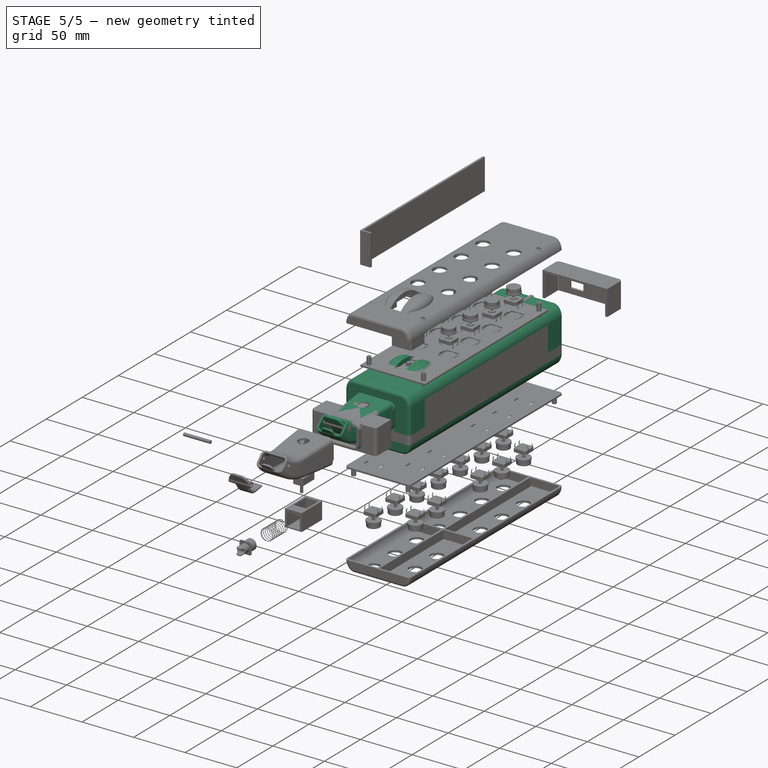
[diagram: stage 5 of 5 — iso view after this stage's code; geometry added in this stage tinted green]
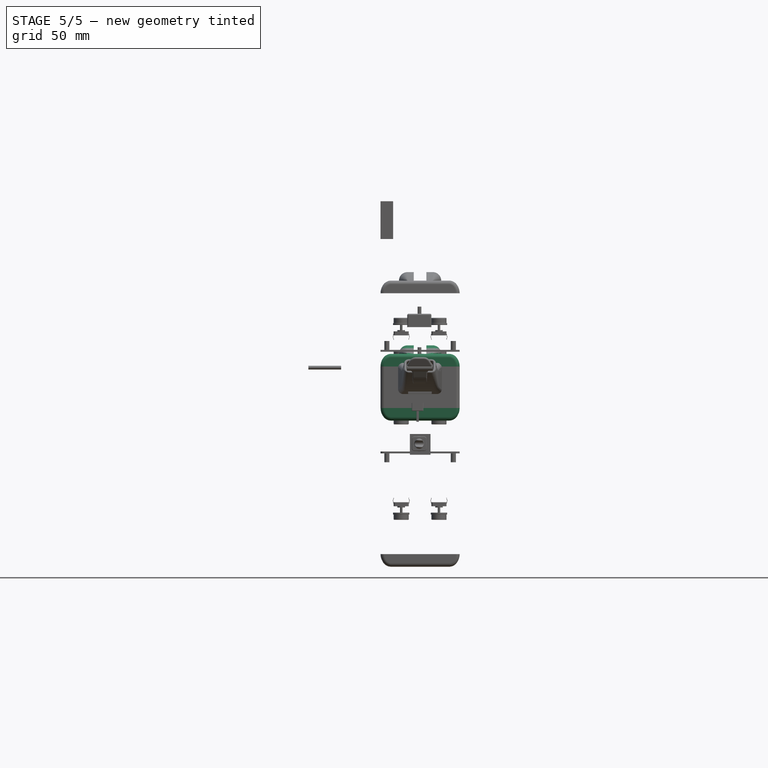
[diagram: stage 5 of 5 — front view after this stage's code; geometry added in this stage tinted green]
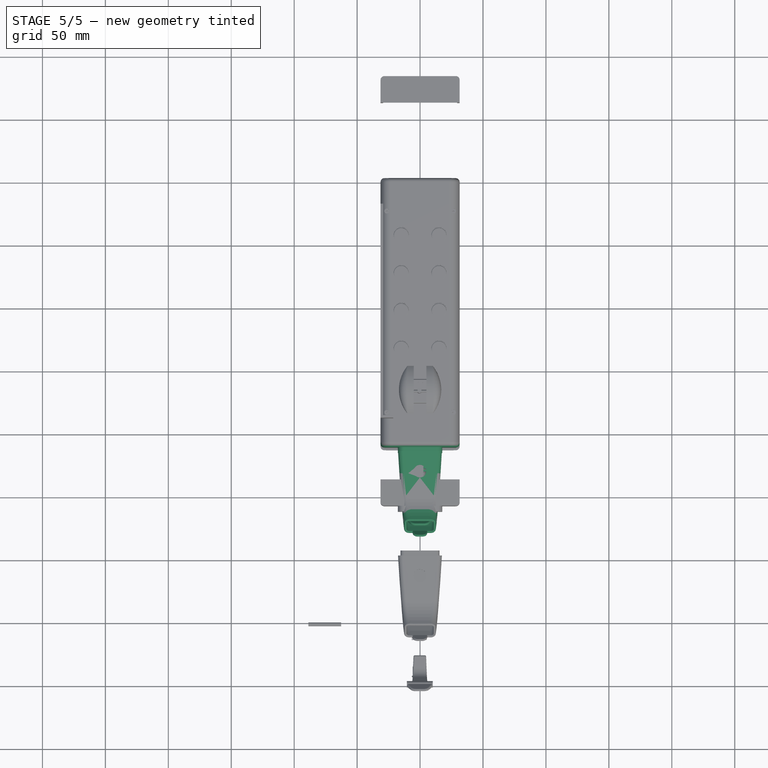
[diagram: stage 5 of 5 — top view after this stage's code; geometry added in this stage tinted green]
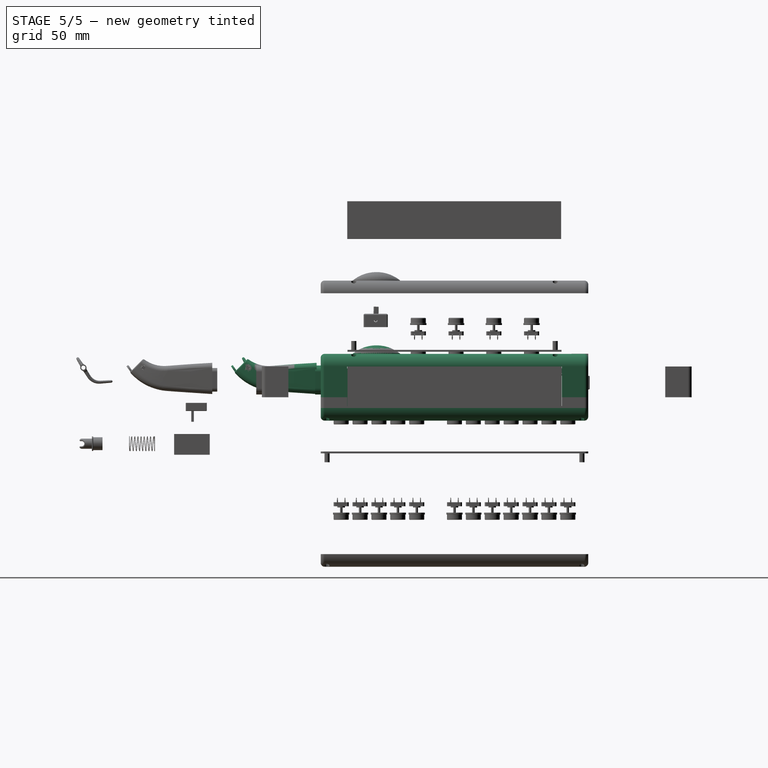
[diagram: stage 5 of 5 — right view after this stage's code; geometry added in this stage tinted green]
FEATURE [Part::FeaturePython] b_cubierta_trasera_001_  label="cubierta trasera_001"  # a2plus imported part (geometry in sourceFile) (typed FeaturePython)
  a2p_Version = V0.1
  fixedPosition = true
  objectType = a2pPart
  sourceFile = ./cubierta trasera.FCStd
  subassemblyImport = false
  timeLastImport = 1.64952e+09
  updateColors = true
FEATURE [Part::FeaturePython] b_soporte_botones_atras_001_  label="soporte botones atras_001"  # a2plus imported part (geometry in sourceFile) (typed FeaturePython)
  Placement = pos=(31.4,-191.25,-1.5) rot=(0,0,1;1.5708rad)
  a2p_Version = V0.1
  fixedPosition = false
  objectType = a2pPart
  sourceFile = ./soporte botones atras.FCStd
  subassemblyImport = false
  timeLastImport = 1.64958e+09
  updateColors = true
FEATURE [App::FeaturePython] axisCoincident_001  label="axisCoincident_001__cubierta trasera_001"  # a2plus constraint (typed FeaturePython)
  Object1 = b_soporte_botones_atras_001_
  Object2 = b_cubierta_trasera_001_
  ParentTreeObject = -> b_soporte_botones_atras_001_
  SubElement1 = Face95
  SubElement2 = Face80
  Suppressed = false
  Type = axial
  directionConstraint = 0
  lockRotation = false
FEATURE [App::FeaturePython] axisCoincident_001_mirror  label="axisCoincident_001__soporte botones atras_001"  # a2plus constraint (typed FeaturePython)
  Object1 = b_soporte_botones_atras_001_
  Object2 = b_cubierta_trasera_001_
  ParentTreeObject = -> b_cubierta_trasera_001_
  SubElement1 = Face95
  SubElement2 = Face80
  Suppressed = false
  Type = axial
  directionConstraint = 0
  lockRotation = false
FEATURE [App::FeaturePython] axisCoincident_002  label="axisCoincident_002__cubierta trasera_001"  # a2plus constraint (typed FeaturePython)
  Object1 = b_soporte_botones_atras_001_
  Object2 = b_cubierta_trasera_001_
  ParentTreeObject = -> b_soporte_botones_atras_001_
  SubElement1 = Face125
  SubElement2 = Face106
  Suppressed = false
  Type = axial
  directionConstraint = 0
  lockRotation = false
FEATURE [App::FeaturePython] axisCoincident_002_mirror  label="axisCoincident_002__soporte botones atras_001"  # a2plus constraint (typed FeaturePython)
  Object1 = b_soporte_botones_atras_001_
  Object2 = b_cubierta_trasera_001_
  ParentTreeObject = -> b_cubierta_trasera_001_
  SubElement1 = Face125
  SubElement2 = Face106
  Suppressed = false
  Type = axial
  directionConstraint = 0
  lockRotation = false
FEATURE [App::FeaturePython] planeCoincident_001  label="planeCoincident_001__cubierta trasera_001"  # a2plus constraint (typed FeaturePython)
  Object1 = b_soporte_botones_atras_001_
  Object2 = b_cubierta_trasera_001_
  ParentTreeObject = -> b_soporte_botones_atras_001_
  SubElement1 = Face160
  SubElement2 = Face68
  Suppressed = false
  Type = plane
  directionConstraint = 1
  offset = 0
FEATURE [App::FeaturePython] planeCoincident_001_mirror  label="planeCoincident_001__soporte botones atras_001"  # a2plus constraint (typed FeaturePython)
  Object1 = b_soporte_botones_atras_001_
  Object2 = b_cubierta_trasera_001_
  ParentTreeObject = -> b_cubierta_trasera_001_
  SubElement1 = Face160
  SubElement2 = Face68
  Suppressed = false
  Type = plane
  directionConstraint = 1
  offset = 0
FEATURE [Part::FeaturePython] b_carcasa_arduino_001_  label="carcasa arduino_001"  # a2plus imported part (geometry in sourceFile) (typed FeaturePython)
  Placement = pos=(4.32619e-06,8.73108e-10,3.06148e-07) rot=(1,0,0;3.14159rad)
  a2p_Version = V0.1
  fixedPosition = false
  objectType = a2pPart
  sourceFile = ./carcasa arduino.FCStd
  subassemblyImport = false
  timeLastImport = 1.64969e+09
  updateColors = true
FEATURE [App::FeaturePython] planeCoincident_002  label="planeCoincident_002__cubierta trasera_001"  # a2plus constraint (typed FeaturePython)
  Object1 = b_carcasa_arduino_001_
  Object2 = b_cubierta_trasera_001_
  ParentTreeObject = -> b_carcasa_arduino_001_
  SubElement1 = Face2
  SubElement2 = Face2
  Suppressed = false
  Type = plane
  directionConstraint = 1
  offset = 0
FEATURE [App::FeaturePython] planeCoincident_002_mirror  label="planeCoincident_002__carcasa arduino_001"  # a2plus constraint (typed FeaturePython)
  Object1 = b_carcasa_arduino_001_
  Object2 = b_cubierta_trasera_001_
  ParentTreeObject = -> b_cubierta_trasera_001_
  SubElement1 = Face2
  SubElement2 = Face2
  Suppressed = false
  Type = plane
  directionConstraint = 1
  offset = 0
FEATURE [App::FeaturePython] planeCoincident_003  label="planeCoincident_003__cubierta trasera_001"  # a2plus constraint (typed FeaturePython)
  Object1 = b_carcasa_arduino_001_
  Object2 = b_cubierta_trasera_001_
  ParentTreeObject = -> b_carcasa_arduino_001_
  SubElement1 = Face5
  SubElement2 = Face13
  Suppressed = false
  Type = plane
  directionConstraint = 1
  offset = 0
FEATURE [App::FeaturePython] planeCoincident_003_mirror  label="planeCoincident_003__carcasa arduino_001"  # a2plus constraint (typed FeaturePython)
  Object1 = b_carcasa_arduino_001_
  Object2 = b_cubierta_trasera_001_
  ParentTreeObject = -> b_cubierta_trasera_001_
  SubElement1 = Face5
  SubElement2 = Face13
  Suppressed = false
  Type = plane
  directionConstraint = 1
  offset = 0
FEATURE [App::FeaturePython] planeCoincident_004  label="planeCoincident_004__soporte botones atras_001"  # a2plus constraint (typed FeaturePython)
  Object1 = b_carcasa_arduino_001_
  Object2 = b_soporte_botones_atras_001_
  ParentTreeObject = -> b_carcasa_arduino_001_
  SubElement1 = Face28
  SubElement2 = Face6
  Suppressed = false
  Type = plane
  directionConstraint = 0
  offset = 0
FEATURE [App::FeaturePython] planeCoincident_004_mirror  label="planeCoincident_004__carcasa arduino_001"  # a2plus constraint (typed FeaturePython)
  Object1 = b_carcasa_arduino_001_
  Object2 = b_soporte_botones_atras_001_
  ParentTreeObject = -> b_soporte_botones_atras_001_
  SubElement1 = Face28
  SubElement2 = Face6
  Suppressed = false
  Type = plane
  directionConstraint = 0
  offset = 0
FEATURE [Part::FeaturePython] b_enganche_boquilla_001_  label="enganche boquilla_001"  # a2plus imported part (geometry in sourceFile) (typed FeaturePython)
  Placement = pos=(-3.0072e-07,-212.5,-2.3752e-07) rot=(0,1,0;3.14159rad)
  a2p_Version = V0.1
  fixedPosition = false
  objectType = a2pPart
  sourceFile = ./enganche boquilla.FCStd
  subassemblyImport = false
  timeLastImport = 1.64966e+09
  updateColors = true
FEATURE [App::FeaturePython] planeCoincident_005  label="planeCoincident_005__cubierta trasera_001"  # a2plus constraint (typed FeaturePython)
  Object1 = b_enganche_boquilla_001_
  Object2 = b_cubierta_trasera_001_
  ParentTreeObject = -> b_enganche_boquilla_001_
  SubElement1 = Face2
  SubElement2 = Face6
  Suppressed = false
  Type = plane
  directionConstraint = 0
  offset = 0
FEATURE [App::FeaturePython] planeCoincident_005_mirror  label="planeCoincident_005__enganche boquilla_001"  # a2plus constraint (typed FeaturePython)
  Object1 = b_enganche_boquilla_001_
  Object2 = b_cubierta_trasera_001_
  ParentTreeObject = -> b_cubierta_trasera_001_
  SubElement1 = Face2
  SubElement2 = Face6
  Suppressed = false
  Type = plane
  directionConstraint = 0
  offset = 0
FEATURE [App::FeaturePython] planeCoincident_006  label="planeCoincident_006__cubierta trasera_001"  # a2plus constraint (typed FeaturePython)
  Object1 = b_enganche_boquilla_001_
  Object2 = b_cubierta_trasera_001_
  ParentTreeObject = -> b_enganche_boquilla_001_
  SubElement1 = Face19
  SubElement2 = Face12
  Suppressed = false
  Type = plane
  directionConstraint = 0
  offset = 0
FEATURE [App::FeaturePython] planeCoincident_006_mirror  label="planeCoincident_006__enganche boquilla_001"  # a2plus constraint (typed FeaturePython)
  Object1 = b_enganche_boquilla_001_
  Object2 = b_cubierta_trasera_001_
  ParentTreeObject = -> b_cubierta_trasera_001_
  SubElement1 = Face19
  SubElement2 = Face12
  Suppressed = false
  Type = plane
  directionConstraint = 0
  offset = 0
FEATURE [App::FeaturePython] planeCoincident_007  label="planeCoincident_007__soporte botones atras_001"  # a2plus constraint (typed FeaturePython)
  Object1 = b_enganche_boquilla_001_
  Object2 = b_soporte_botones_atras_001_
  ParentTreeObject = -> b_enganche_boquilla_001_
  SubElement1 = Face22
  SubElement2 = Face6
  Suppressed = false
  Type = plane
  directionConstraint = 1
  offset = 0
FEATURE [App::FeaturePython] planeCoincident_007_mirror  label="planeCoincident_007__enganche boquilla_001"  # a2plus constraint (typed FeaturePython)
  Object1 = b_enganche_boquilla_001_
  Object2 = b_soporte_botones_atras_001_
  ParentTreeObject = -> b_soporte_botones_atras_001_
  SubElement1 = Face22
  SubElement2 = Face6
  Suppressed = false
  Type = plane
  directionConstraint = 1
  offset = 0
FEATURE [Part::FeaturePython] b_tapa_lados_001_  label="tapa lados_001"  # a2plus imported part (geometry in sourceFile) (typed FeaturePython)
  Placement = pos=(31.4,-191.25,-31.5) rot=(0,0,1;1.5708rad)
  a2p_Version = V0.1
  fixedPosition = false
  objectType = a2pPart
  sourceFile = ./tapa lados.FCStd
  subassemblyImport = false
  timeLastImport = 1.64958e+09
  updateColors = true
FEATURE [App::FeaturePython] planeCoincident_009  label="planeCoincident_009__soporte botones atras_001"  # a2plus constraint (typed FeaturePython)
  Object1 = b_tapa_lados_001_
  Object2 = b_soporte_botones_atras_001_
  ParentTreeObject = -> b_tapa_lados_001_
  SubElement1 = Face2
  SubElement2 = Face3
  Suppressed = false
  Type = plane
  directionConstraint = 1
  offset = 0
FEATURE [App::FeaturePython] planeCoincident_009_mirror  label="planeCoincident_009__tapa lados_001"  # a2plus constraint (typed FeaturePython)
  Object1 = b_tapa_lados_001_
  Object2 = b_soporte_botones_atras_001_
  ParentTreeObject = -> b_soporte_botones_atras_001_
  SubElement1 = Face2
  SubElement2 = Face3
  Suppressed = false
  Type = plane
  directionConstraint = 1
  offset = 0
FEATURE [App::FeaturePython] planeCoincident_010  label="planeCoincident_010__soporte botones atras_001"  # a2plus constraint (typed FeaturePython)
  Object1 = b_tapa_lados_001_
  Object2 = b_soporte_botones_atras_001_
  ParentTreeObject = -> b_tapa_lados_001_
  SubElement1 = Face8
  SubElement2 = Face4
  Suppressed = false
  Type = plane
  directionConstraint = 0
  offset = 0
FEATURE [App::FeaturePython] planeCoincident_010_mirror  label="planeCoincident_010__tapa lados_001"  # a2plus constraint (typed FeaturePython)
  Object1 = b_tapa_lados_001_
  Object2 = b_soporte_botones_atras_001_
  ParentTreeObject = -> b_soporte_botones_atras_001_
  SubElement1 = Face8
  SubElement2 = Face4
  Suppressed = false
  Type = plane
  directionConstraint = 0
  offset = 0
FEATURE [App::FeaturePython] planeCoincident_008  label="planeCoincident_008__carcasa arduino_001"  # a2plus constraint (typed FeaturePython)
  Object1 = b_tapa_lados_001_
  Object2 = b_carcasa_arduino_001_
  ParentTreeObject = -> b_tapa_lados_001_
  SubElement1 = Face1
  SubElement2 = Face17
  Suppressed = false
  Type = plane
  directionConstraint = 0
  offset = 0
FEATURE [App::FeaturePython] planeCoincident_008_mirror  label="planeCoincident_008__tapa lados_001"  # a2plus constraint (typed FeaturePython)
  Object1 = b_tapa_lados_001_
  Object2 = b_carcasa_arduino_001_
  ParentTreeObject = -> b_carcasa_arduino_001_
  SubElement1 = Face1
  SubElement2 = Face17
  Suppressed = false
  Type = plane
  directionConstraint = 0
  offset = 0
FEATURE [Part::FeaturePython] b_tapa_lados_001_001  label="tapa lados_002"  # a2plus imported part (geometry in sourceFile) (typed FeaturePython)
  Placement = pos=(-31.4,-191.5,-1.5) rot=(0.707107,0.707107,0;3.14159rad)
  a2p_Version = V0.1
  fixedPosition = false
  objectType = a2pPart
  sourceFile = ./tapa lados.FCStd
  subassemblyImport = false
  timeLastImport = 1.64958e+09
  updateColors = true
FEATURE [App::FeaturePython] planeCoincident_011  label="planeCoincident_011__enganche boquilla_001"  # a2plus constraint (typed FeaturePython)
  Object1 = b_tapa_lados_001_001
  Object2 = b_enganche_boquilla_001_
  ParentTreeObject = -> b_tapa_lados_001_001
  SubElement1 = Face6
  SubElement2 = Face23
  Suppressed = false
  Type = plane
  directionConstraint = 0
  offset = 0
FEATURE [App::FeaturePython] planeCoincident_011_mirror  label="planeCoincident_011__tapa lados_002"  # a2plus constraint (typed FeaturePython)
  Object1 = b_tapa_lados_001_001
  Object2 = b_enganche_boquilla_001_
  ParentTreeObject = -> b_enganche_boquilla_001_
  SubElement1 = Face6
  SubElement2 = Face23
  Suppressed = false
  Type = plane
  directionConstraint = 0
  offset = 0
FEATURE [App::FeaturePython] planeCoincident_012  label="planeCoincident_012__soporte botones atras_001"  # a2plus constraint (typed FeaturePython)
  Object1 = b_tapa_lados_001_001
  Object2 = b_soporte_botones_atras_001_
  ParentTreeObject = -> b_tapa_lados_001_001
  SubElement1 = Face1
  SubElement2 = Face6
  Suppressed = false
  Type = plane
  directionConstraint = 0
  offset = 0
FEATURE [App::FeaturePython] planeCoincident_012_mirror  label="planeCoincident_012__tapa lados_002"  # a2plus constraint (typed FeaturePython)
  Object1 = b_tapa_lados_001_001
  Object2 = b_soporte_botones_atras_001_
  ParentTreeObject = -> b_soporte_botones_atras_001_
  SubElement1 = Face1
  SubElement2 = Face6
  Suppressed = false
  Type = plane
  directionConstraint = 0
  offset = 0
FEATURE [App::FeaturePython] planeCoincident_013  label="planeCoincident_013__soporte botones atras_001"  # a2plus constraint (typed FeaturePython)
  Object1 = b_tapa_lados_001_001
  Object2 = b_soporte_botones_atras_001_
  ParentTreeObject = -> b_tapa_lados_001_001
  SubElement1 = Face7
  SubElement2 = Face4
  Suppressed = false
  Type = plane
  directionConstraint = 1
  offset = 0
FEATURE [App::FeaturePython] planeCoincident_013_mirror  label="planeCoincident_013__tapa lados_002"  # a2plus constraint (typed FeaturePython)
  Object1 = b_tapa_lados_001_001
  Object2 = b_soporte_botones_atras_001_
  ParentTreeObject = -> b_soporte_botones_atras_001_
  SubElement1 = Face7
  SubElement2 = Face4
  Suppressed = false
  Type = plane
  directionConstraint = 1
  offset = 0
FEATURE [Part::FeaturePython] b_tapas_001_  label="tapas_001"  # a2plus imported part (geometry in sourceFile) (typed FeaturePython)
  Placement = pos=(-2.3805e-07,-212.5,-31.5) rot=(0,0,1;0rad)
  a2p_Version = V0.1
  fixedPosition = false
  objectType = a2pPart
  sourceFile = ./tapas.FCStd
  subassemblyImport = false
  timeLastImport = 1.64959e+09
  updateColors = true
FEATURE [App::FeaturePython] planeCoincident_014  label="planeCoincident_014__enganche boquilla_001"  # a2plus constraint (typed FeaturePython)
  Object1 = b_tapas_001_
  Object2 = b_enganche_boquilla_001_
  ParentTreeObject = -> b_tapas_001_
  SubElement1 = Face17
  SubElement2 = Face40
  Suppressed = false
  Type = plane
  directionConstraint = 1
  offset = 0
FEATURE [App::FeaturePython] planeCoincident_014_mirror  label="planeCoincident_014__tapas_001"  # a2plus constraint (typed FeaturePython)
  Object1 = b_tapas_001_
  Object2 = b_enganche_boquilla_001_
  ParentTreeObject = -> b_enganche_boquilla_001_
  SubElement1 = Face17
  SubElement2 = Face40
  Suppressed = false
  Type = plane
  directionConstraint = 1
  offset = 0
FEATURE [App::FeaturePython] planeCoincident_015  label="planeCoincident_015__enganche boquilla_001"  # a2plus constraint (typed FeaturePython)
  Object1 = b_tapas_001_
  Object2 = b_enganche_boquilla_001_
  ParentTreeObject = -> b_tapas_001_
  SubElement1 = Face18
  SubElement2 = Face44
  Suppressed = false
  Type = plane
  directionConstraint = 1
  offset = 0
FEATURE [App::FeaturePython] planeCoincident_015_mirror  label="planeCoincident_015__tapas_001"  # a2plus constraint (typed FeaturePython)
  Object1 = b_tapas_001_
  Object2 = b_enganche_boquilla_001_
  ParentTreeObject = -> b_enganche_boquilla_001_
  SubElement1 = Face18
  SubElement2 = Face44
  Suppressed = false
  Type = plane
  directionConstraint = 1
  offset = 0
FEATURE [App::FeaturePython] planesParallel_001  label="planesParallel_001__tapa lados_002"  # a2plus constraint (typed FeaturePython)
  Object1 = b_tapas_001_
  Object2 = b_tapa_lados_001_001
  ParentTreeObject = -> b_tapas_001_
  SubElement1 = Face19
  SubElement2 = Face6
  Suppressed = false
  Type = planesParallel
  directionConstraint = 1
FEATURE [App::FeaturePython] planesParallel_001_mirror  label="planesParallel_001__tapas_001"  # a2plus constraint (typed FeaturePython)
  Object1 = b_tapas_001_
  Object2 = b_tapa_lados_001_001
  ParentTreeObject = -> b_tapa_lados_001_001
  SubElement1 = Face19
  SubElement2 = Face6
  Suppressed = false
  Type = planesParallel
  directionConstraint = 1
FEATURE [App::FeaturePython] planeCoincident_016  label="planeCoincident_016__enganche boquilla_001"  # a2plus constraint (typed FeaturePython)
  Object1 = b_tapas_001_
  Object2 = b_enganche_boquilla_001_
  ParentTreeObject = -> b_tapas_001_
  SubElement1 = Face5
  SubElement2 = Face19
  Suppressed = false
  Type = plane
  directionConstraint = 0
  offset = 0
FEATURE [App::FeaturePython] planeCoincident_016_mirror  label="planeCoincident_016__tapas_001"  # a2plus constraint (typed FeaturePython)
  Object1 = b_tapas_001_
  Object2 = b_enganche_boquilla_001_
  ParentTreeObject = -> b_enganche_boquilla_001_
  SubElement1 = Face5
  SubElement2 = Face19
  Suppressed = false
  Type = plane
  directionConstraint = 0
  offset = 0
FEATURE [Part::FeaturePython] b_tapas_001_001  label="tapas_002"  # a2plus imported part (geometry in sourceFile) (typed FeaturePython)
  Placement = pos=(4.19815e-06,-4.38714e-08,-31.5) rot=(0,0,1;3.14159rad)
  a2p_Version = V0.1
  fixedPosition = false
  objectType = a2pPart
  sourceFile = ./tapas.FCStd
  subassemblyImport = false
  timeLastImport = 1.64959e+09
  updateColors = true
FEATURE [App::FeaturePython] planeCoincident_017  label="planeCoincident_017__carcasa arduino_001"  # a2plus constraint (typed FeaturePython)
  Object1 = b_tapas_001_001
  Object2 = b_carcasa_arduino_001_
  ParentTreeObject = -> b_tapas_001_001
  SubElement1 = Face17
  SubElement2 = Face46
  Suppressed = false
  Type = plane
  directionConstraint = 1
  offset = 0
FEATURE [App::FeaturePython] planeCoincident_017_mirror  label="planeCoincident_017__tapas_002"  # a2plus constraint (typed FeaturePython)
  Object1 = b_tapas_001_001
  Object2 = b_carcasa_arduino_001_
  ParentTreeObject = -> b_carcasa_arduino_001_
  SubElement1 = Face17
  SubElement2 = Face46
  Suppressed = false
  Type = plane
  directionConstraint = 1
  offset = 0
FEATURE [App::FeaturePython] planeCoincident_018  label="planeCoincident_018__carcasa arduino_001"  # a2plus constraint (typed FeaturePython)
  Object1 = b_tapas_001_001
  Object2 = b_carcasa_arduino_001_
  ParentTreeObject = -> b_tapas_001_001
  SubElement1 = Face24
  SubElement2 = Face47
  Suppressed = false
  Type = plane
  directionConstraint = 0
  offset = 0
FEATURE [App::FeaturePython] planeCoincident_018_mirror  label="planeCoincident_018__tapas_002"  # a2plus constraint (typed FeaturePython)
  Object1 = b_tapas_001_001
  Object2 = b_carcasa_arduino_001_
  ParentTreeObject = -> b_carcasa_arduino_001_
  SubElement1 = Face24
  SubElement2 = Face47
  Suppressed = false
  Type = plane
  directionConstraint = 0
  offset = 0
FEATURE [App::FeaturePython] planeCoincident_019  label="planeCoincident_019__tapas_002"  # a2plus constraint (typed FeaturePython)
  Object1 = b_carcasa_arduino_001_
  Object2 = b_tapas_001_001
  ParentTreeObject = -> b_carcasa_arduino_001_
  SubElement1 = Face27
  SubElement2 = Face5
  Suppressed = false
  Type = plane
  directionConstraint = 0
  offset = 0
FEATURE [App::FeaturePython] planeCoincident_019_mirror  label="planeCoincident_019__carcasa arduino_001"  # a2plus constraint (typed FeaturePython)
  Object1 = b_carcasa_arduino_001_
  Object2 = b_tapas_001_001
  ParentTreeObject = -> b_tapas_001_001
  SubElement1 = Face27
  SubElement2 = Face5
  Suppressed = false
  Type = plane
  directionConstraint = 0
  offset = 0
FEATURE [Part::FeaturePython] b_soporte_botones_001_  label="soporte botones_001"  # a2plus imported part (geometry in sourceFile) (typed FeaturePython)
  Placement = pos=(-15,-196.25,-33) rot=(0.707107,0.707107,0;3.14159rad)
  a2p_Version = V0.1
  fixedPosition = false
  objectType = a2pPart
  sourceFile = ./soporte botones.FCStd
  subassemblyImport = false
  timeLastImport = 1.64969e+09
  updateColors = true
FEATURE [App::FeaturePython] planeCoincident_020  label="planeCoincident_020__tapas_001"  # a2plus constraint (typed FeaturePython)
  Object1 = b_soporte_botones_001_
  Object2 = b_tapas_001_
  ParentTreeObject = -> b_soporte_botones_001_
  SubElement1 = Face6
  SubElement2 = Face5
  Suppressed = false
  Type = plane
  directionConstraint = 0
  offset = 0
FEATURE [App::FeaturePython] planeCoincident_020_mirror  label="planeCoincident_020__soporte botones_001"  # a2plus constraint (typed FeaturePython)
  Object1 = b_soporte_botones_001_
  Object2 = b_tapas_001_
  ParentTreeObject = -> b_tapas_001_
  SubElement1 = Face6
  SubElement2 = Face5
  Suppressed = false
  Type = plane
  directionConstraint = 0
  offset = 0
FEATURE [App::FeaturePython] planeCoincident_021  label="planeCoincident_021__tapas_001"  # a2plus constraint (typed FeaturePython)
  Object1 = b_soporte_botones_001_
  Object2 = b_tapas_001_
  ParentTreeObject = -> b_soporte_botones_001_
  SubElement1 = Face5
  SubElement2 = Face2
  Suppressed = false
  Type = plane
  directionConstraint = 1
  offset = 0
FEATURE [App::FeaturePython] planeCoincident_021_mirror  label="planeCoincident_021__soporte botones_001"  # a2plus constraint (typed FeaturePython)
  Object1 = b_soporte_botones_001_
  Object2 = b_tapas_001_
  ParentTreeObject = -> b_tapas_001_
  SubElement1 = Face5
  SubElement2 = Face2
  Suppressed = false
  Type = plane
  directionConstraint = 1
  offset = 0
FEATURE [App::FeaturePython] planeCoincident_022  label="planeCoincident_022__tapa lados_001"  # a2plus constraint (typed FeaturePython)
  Object1 = b_soporte_botones_001_
  Object2 = b_tapa_lados_001_
  ParentTreeObject = -> b_soporte_botones_001_
  SubElement1 = Face1
  SubElement2 = Face1
  Suppressed = false
  Type = plane
  directionConstraint = 0
  offset = 0
FEATURE [App::FeaturePython] planeCoincident_022_mirror  label="planeCoincident_022__soporte botones_001"  # a2plus constraint (typed FeaturePython)
  Object1 = b_soporte_botones_001_
  Object2 = b_tapa_lados_001_
  ParentTreeObject = -> b_tapa_lados_001_
  SubElement1 = Face1
  SubElement2 = Face1
  Suppressed = false
  Type = plane
  directionConstraint = 0
  offset = 0
FEATURE [Part::FeaturePython] b_cubierta_001_  label="cubierta_001"  # a2plus imported part (geometry in sourceFile) (typed FeaturePython)
  Placement = pos=(-1.55677e-07,-212.5,-33) rot=(1,0,0;3.14159rad)
  a2p_Version = V0.1
  fixedPosition = false
  objectType = a2pPart
  sourceFile = ./cubierta.FCStd
  subassemblyImport = false
  timeLastImport = 1.64958e+09
  updateColors = true
FEATURE [App::FeaturePython] planeCoincident_023  label="planeCoincident_023__tapas_001"  # a2plus constraint (typed FeaturePython)
  Object1 = b_soporte_botones_001_
  Object2 = b_tapas_001_
  ParentTreeObject = -> b_soporte_botones_001_
  SubElement1 = Face10
  SubElement2 = Face6
  Suppressed = false
  Type = plane
  directionConstraint = 0
  offset = 0
FEATURE [App::FeaturePython] planeCoincident_023_mirror  label="planeCoincident_023__soporte botones_001"  # a2plus constraint (typed FeaturePython)
  Object1 = b_soporte_botones_001_
  Object2 = b_tapas_001_
  ParentTreeObject = -> b_tapas_001_
  SubElement1 = Face10
  SubElement2 = Face6
  Suppressed = false
  Type = plane
  directionConstraint = 0
  offset = 0
FEATURE [App::FeaturePython] axisCoincident_003  label="axisCoincident_003__cubierta_001"  # a2plus constraint (typed FeaturePython)
  Object1 = b_soporte_botones_001_
  Object2 = b_cubierta_001_
  ParentTreeObject = -> b_soporte_botones_001_
  SubElement1 = Face11
  SubElement2 = Face127
  Suppressed = false
  Type = axial
  directionConstraint = 0
  lockRotation = false
FEATURE [App::FeaturePython] axisCoincident_003_mirror  label="axisCoincident_003__soporte botones_001"  # a2plus constraint (typed FeaturePython)
  Object1 = b_soporte_botones_001_
  Object2 = b_cubierta_001_
  ParentTreeObject = -> b_cubierta_001_
  SubElement1 = Face11
  SubElement2 = Face127
  Suppressed = false
  Type = axial
  directionConstraint = 0
  lockRotation = false
FEATURE [App::FeaturePython] planeCoincident_024  label="planeCoincident_024__soporte botones_001"  # a2plus constraint (typed FeaturePython)
  Object1 = b_cubierta_001_
  Object2 = b_soporte_botones_001_
  ParentTreeObject = -> b_cubierta_001_
  SubElement1 = Face30
  SubElement2 = Face2
  Suppressed = false
  Type = plane
  directionConstraint = 0
  offset = 0
FEATURE [App::FeaturePython] planeCoincident_024_mirror  label="planeCoincident_024__cubierta_001"  # a2plus constraint (typed FeaturePython)
  Object1 = b_cubierta_001_
  Object2 = b_soporte_botones_001_
  ParentTreeObject = -> b_soporte_botones_001_
  SubElement1 = Face30
  SubElement2 = Face2
  Suppressed = false
  Type = plane
  directionConstraint = 0
  offset = 0
FEATURE [Part::FeaturePython] b_boquilla_001_  label="boquilla_001"  # a2plus imported part (geometry in sourceFile) (typed FeaturePython)
  Placement = pos=(-0.1,-275.8,25.4987) rot=(0.57735,0.57735,-0.57735;2.0944rad)
  a2p_Version = V0.1
  fixedPosition = false
  objectType = a2pPart
  sourceFile = ./boquilla.FCStd
  subassemblyImport = false
  timeLastImport = 1.64966e+09
  updateColors = true
FEATURE [App::FeaturePython] planeCoincident_025  label="planeCoincident_025__enganche boquilla_001"  # a2plus constraint (typed FeaturePython)
  Object1 = b_boquilla_001_
  Object2 = b_enganche_boquilla_001_
  ParentTreeObject = -> b_boquilla_001_
  SubElement1 = Face89
  SubElement2 = Face53
  Suppressed = false
  Type = plane
  directionConstraint = 1
  offset = 0
FEATURE [App::FeaturePython] planeCoincident_025_mirror  label="planeCoincident_025__boquilla_001"  # a2plus constraint (typed FeaturePython)
  Object1 = b_boquilla_001_
  Object2 = b_enganche_boquilla_001_
  ParentTreeObject = -> b_enganche_boquilla_001_
  SubElement1 = Face89
  SubElement2 = Face53
  Suppressed = false
  Type = plane
  directionConstraint = 1
  offset = 0
FEATURE [App::FeaturePython] planeCoincident_026  label="planeCoincident_026__enganche boquilla_001"  # a2plus constraint (typed FeaturePython)
  Object1 = b_boquilla_001_
  Object2 = b_enganche_boquilla_001_
  ParentTreeObject = -> b_boquilla_001_
  SubElement1 = Face80
  SubElement2 = Face32
  Suppressed = false
  Type = plane
  directionConstraint = 1
  offset = 0
FEATURE [App::FeaturePython] planeCoincident_026_mirror  label="planeCoincident_026__boquilla_001"  # a2plus constraint (typed FeaturePython)
  Object1 = b_boquilla_001_
  Object2 = b_enganche_boquilla_001_
  ParentTreeObject = -> b_enganche_boquilla_001_
  SubElement1 = Face80
  SubElement2 = Face32
  Suppressed = false
  Type = plane
  directionConstraint = 1
  offset = 0
FEATURE [App::FeaturePython] planeCoincident_027  label="planeCoincident_027__enganche boquilla_001"  # a2plus constraint (typed FeaturePython)
  Object1 = b_boquilla_001_
  Object2 = b_enganche_boquilla_001_
  ParentTreeObject = -> b_boquilla_001_
  SubElement1 = Face79
  SubElement2 = Face34
  Suppressed = false
  Type = plane
  directionConstraint = 1
  offset = 0
FEATURE [App::FeaturePython] planeCoincident_027_mirror  label="planeCoincident_027__boquilla_001"  # a2plus constraint (typed FeaturePython)
  Object1 = b_boquilla_001_
  Object2 = b_enganche_boquilla_001_
  ParentTreeObject = -> b_enganche_boquilla_001_
  SubElement1 = Face79
  SubElement2 = Face34
  Suppressed = false
  Type = plane
  directionConstraint = 1
  offset = 0
FEATURE [Part::FeaturePython] b_carcasa_pot_linear_001_  label="carcasa pot linear_001"  # a2plus imported part (geometry in sourceFile) (typed FeaturePython)
  Placement = pos=(-8.5,-219.8,-5.75) rot=(1,0,0;1.5708rad)
  a2p_Version = V0.1
  fixedPosition = false
  objectType = a2pPart
  sourceFile = ./carcasa pot linear.FCStd
  subassemblyImport = false
  timeLastImport = 1.64969e+09
  updateColors = true
FEATURE [App::FeaturePython] planesParallel_002  label="planesParallel_002__boquilla_001"  # a2plus constraint (typed FeaturePython)
  Object1 = b_carcasa_pot_linear_001_
  Object2 = b_boquilla_001_
  ParentTreeObject = -> b_carcasa_pot_linear_001_
  SubElement1 = Face12
  SubElement2 = Face86
  Suppressed = false
  Type = planesParallel
  directionConstraint = 0
FEATURE [App::FeaturePython] planesParallel_002_mirror  label="planesParallel_002__carcasa pot linear_001"  # a2plus constraint (typed FeaturePython)
  Object1 = b_carcasa_pot_linear_001_
  Object2 = b_boquilla_001_
  ParentTreeObject = -> b_boquilla_001_
  SubElement1 = Face12
  SubElement2 = Face86
  Suppressed = false
  Type = planesParallel
  directionConstraint = 0
FEATURE [App::FeaturePython] planeCoincident_029  label="planeCoincident_029__boquilla_001"  # a2plus constraint (typed FeaturePython)
  Object1 = b_carcasa_pot_linear_001_
  Object2 = b_boquilla_001_
  ParentTreeObject = -> b_carcasa_pot_linear_001_
  SubElement1 = Face1
  SubElement2 = Face61
  Suppressed = false
  Type = plane
  directionConstraint = 0
  offset = 1
FEATURE [App::FeaturePython] planeCoincident_029_mirror  label="planeCoincident_029__carcasa pot linear_001"  # a2plus constraint (typed FeaturePython)
  Object1 = b_carcasa_pot_linear_001_
  Object2 = b_boquilla_001_
  ParentTreeObject = -> b_boquilla_001_
  SubElement1 = Face1
  SubElement2 = Face61
  Suppressed = false
  Type = plane
  directionConstraint = 0
  offset = 1
FEATURE [App::FeaturePython] planeCoincident_030  label="planeCoincident_030__boquilla_001"  # a2plus constraint (typed FeaturePython)
  Object1 = b_carcasa_pot_linear_001_
  Object2 = b_boquilla_001_
  ParentTreeObject = -> b_carcasa_pot_linear_001_
  SubElement1 = Face12
  SubElement2 = Face86
  Suppressed = false
  Type = plane
  directionConstraint = 0
  offset = 0
FEATURE [App::FeaturePython] planeCoincident_030_mirror  label="planeCoincident_030__carcasa pot linear_001"  # a2plus constraint (typed FeaturePython)
  Object1 = b_carcasa_pot_linear_001_
  Object2 = b_boquilla_001_
  ParentTreeObject = -> b_boquilla_001_
  SubElement1 = Face12
  SubElement2 = Face86
  Suppressed = false
  Type = plane
  directionConstraint = 0
  offset = 0
FEATURE [Part::FeaturePython] b_tapa_pot_linear_001_  label="tapa pot linear_001"  # a2plus imported part (geometry in sourceFile) (typed FeaturePython)
  Placement = pos=(-0.69774,-227.053,-11.3477) rot=(0.57735,-0.57735,0.57735;2.0944rad)
  a2p_Version = V0.1
  fixedPosition = false
  objectType = a2pPart
  sourceFile = ./tapa pot linear.FCStd
  subassemblyImport = false
  timeLastImport = 1.6497e+09
  updateColors = true
FEATURE [Part::FeaturePython] b_lenguetac_001_  label="lengueta_001"  # a2plus imported part (geometry in sourceFile) (typed FeaturePython)
  Placement = pos=(-0.235001,-269.497,-0.9467) rot=(1,0,0;2.1293rad)
  a2p_Version = V0.1
  fixedPosition = false
  objectType = a2pPart
  sourceFile = ./lenguetac.FCStd
  subassemblyImport = false
  timeLastImport = 1.64959e+09
  updateColors = true
FEATURE [Part::FeaturePython] b_rueda_pitch_001_  label="rueda pitch_001"  # a2plus imported part (geometry in sourceFile) (typed FeaturePython)
  Placement = pos=(-0.499999,-168.617,12.2472) rot=(-0.008344,0.008344,0.99993;1.57087rad)
  a2p_Version = V0.1
  fixedPosition = false
  objectType = a2pPart
  sourceFile = ./rueda pitch.FCStd
  subassemblyImport = false
  timeLastImport = 1.64131e+09
  updateColors = true
FEATURE [Part::FeaturePython] b_Arduino_Uno_001_  label="Arduino Uno_001"  # a2plus imported part (geometry in sourceFile) (typed FeaturePython)
  Placement = pos=(-26.22,-7.2,-5.9) rot=(1,0,0;3.14159rad)
  a2p_Version = V0.1
  fixedPosition = false
  objectType = a2pPart
  sourceFile = ./Arduino Uno.FCStd
  subassemblyImport = false
  timeLastImport = 1.64969e+09
  updateColors = true
FEATURE [App::FeaturePython] planeCoincident_028  label="planeCoincident_028__carcasa arduino_001"  # a2plus constraint (typed FeaturePython)
  Object1 = b_Arduino_Uno_001_
  Object2 = b_carcasa_arduino_001_
  ParentTreeObject = -> b_Arduino_Uno_001_
  SubElement1 = Face13
  SubElement2 = Face43
  Suppressed = false
  Type = plane
  directionConstraint = 1
  offset = 0
FEATURE [App::FeaturePython] planeCoincident_028_mirror  label="planeCoincident_028__Arduino Uno_001"  # a2plus constraint (typed FeaturePython)
  Object1 = b_Arduino_Uno_001_
  Object2 = b_carcasa_arduino_001_
  ParentTreeObject = -> b_carcasa_arduino_001_
  SubElement1 = Face13
  SubElement2 = Face43
  Suppressed = false
  Type = plane
  directionConstraint = 1
  offset = 0
FEATURE [App::FeaturePython] planeCoincident_031  label="planeCoincident_031__carcasa arduino_001"  # a2plus constraint (typed FeaturePython)
  Object1 = b_Arduino_Uno_001_
  Object2 = b_carcasa_arduino_001_
  ParentTreeObject = -> b_Arduino_Uno_001_
  SubElement1 = Face63
  SubElement2 = Face12
  Suppressed = false
  Type = plane
  directionConstraint = 0
  offset = 0
FEATURE [App::FeaturePython] planeCoincident_031_mirror  label="planeCoincident_031__Arduino Uno_001"  # a2plus constraint (typed FeaturePython)
  Object1 = b_Arduino_Uno_001_
  Object2 = b_carcasa_arduino_001_
  ParentTreeObject = -> b_carcasa_arduino_001_
  SubElement1 = Face63
  SubElement2 = Face12
  Suppressed = false
  Type = plane
  directionConstraint = 0
  offset = 0
FEATURE [App::FeaturePython] planeCoincident_032  label="planeCoincident_032__carcasa arduino_001"  # a2plus constraint (typed FeaturePython)
  Object1 = b_Arduino_Uno_001_
  Object2 = b_carcasa_arduino_001_
  ParentTreeObject = -> b_Arduino_Uno_001_
  SubElement1 = Face32
  SubElement2 = Face23
  Suppressed = false
  Type = plane
  directionConstraint = 0
  offset = -1
FEATURE [App::FeaturePython] planeCoincident_032_mirror  label="planeCoincident_032__Arduino Uno_001"  # a2plus constraint (typed FeaturePython)
  Object1 = b_Arduino_Uno_001_
  Object2 = b_carcasa_arduino_001_
  ParentTreeObject = -> b_carcasa_arduino_001_
  SubElement1 = Face32
  SubElement2 = Face23
  Suppressed = false
  Type = plane
  directionConstraint = 0
  offset = -1
FEATURE [Part::FeaturePython] b_soporte_tornillos_arduino_1_001_  label="soporte tornillos arduino 1_001"  # a2plus imported part (geometry in sourceFile) (typed FeaturePython)
  Placement = pos=(5.43,-73.4,-5.5) rot=(0,0,1;0rad)
  a2p_Version = V0.1
  fixedPosition = false
  objectType = a2pPart
  sourceFile = ./soporte tornillos arduino 1.FCStd
  subassemblyImport = false
  timeLastImport = 1.64969e+09
  updateColors = true
FEATURE [App::FeaturePython] axisCoincident_004  label="axisCoincident_004__soporte tornillos arduino 1_001"  # a2plus constraint (typed FeaturePython)
  Object1 = b_Arduino_Uno_001_
  Object2 = b_soporte_tornillos_arduino_1_001_
  ParentTreeObject = -> b_Arduino_Uno_001_
  SubElement1 = Face52
  SubElement2 = Face5
  Suppressed = false
  Type = axial
  directionConstraint = 0
  lockRotation = false
FEATURE [App::FeaturePython] axisCoincident_004_mirror  label="axisCoincident_004__Arduino Uno_001"  # a2plus constraint (typed FeaturePython)
  Object1 = b_Arduino_Uno_001_
  Object2 = b_soporte_tornillos_arduino_1_001_
  ParentTreeObject = -> b_soporte_tornillos_arduino_1_001_
  SubElement1 = Face52
  SubElement2 = Face5
  Suppressed = false
  Type = axial
  directionConstraint = 0
  lockRotation = false
FEATURE [App::FeaturePython] axisCoincident_005  label="axisCoincident_005__Arduino Uno_001"  # a2plus constraint (typed FeaturePython)
  Object1 = b_soporte_tornillos_arduino_1_001_
  Object2 = b_Arduino_Uno_001_
  ParentTreeObject = -> b_soporte_tornillos_arduino_1_001_
  SubElement1 = Face6
  SubElement2 = Face47
  Suppressed = false
  Type = axial
  directionConstraint = 0
  lockRotation = false
FEATURE [App::FeaturePython] axisCoincident_005_mirror  label="axisCoincident_005__soporte tornillos arduino 1_001"  # a2plus constraint (typed FeaturePython)
  Object1 = b_soporte_tornillos_arduino_1_001_
  Object2 = b_Arduino_Uno_001_
  ParentTreeObject = -> b_Arduino_Uno_001_
  SubElement1 = Face6
  SubElement2 = Face47
  Suppressed = false
  Type = axial
  directionConstraint = 0
  lockRotation = false
FEATURE [App::FeaturePython] planeCoincident_033  label="planeCoincident_033__soporte botones atras_001"  # a2plus constraint (typed FeaturePython)
  Object1 = b_soporte_tornillos_arduino_1_001_
  Object2 = b_soporte_botones_atras_001_
  ParentTreeObject = -> b_soporte_tornillos_arduino_1_001_
  SubElement1 = Face8
  SubElement2 = Face4
  Suppressed = false
  Type = plane
  directionConstraint = 0
  offset = 0
FEATURE [App::FeaturePython] planeCoincident_033_mirror  label="planeCoincident_033__soporte tornillos arduino 1_001"  # a2plus constraint (typed FeaturePython)
  Object1 = b_soporte_tornillos_arduino_1_001_
  Object2 = b_soporte_botones_atras_001_
  ParentTreeObject = -> b_soporte_botones_atras_001_
  SubElement1 = Face8
  SubElement2 = Face4
  Suppressed = false
  Type = plane
  directionConstraint = 0
  offset = 0
FEATURE [Part::FeaturePython] b_soporte_tornillos_arduino_2_001_  label="soporte tornillos arduino 2_001"  # a2plus imported part (geometry in sourceFile) (typed FeaturePython)
  Placement = pos=(0.380004,-21.3619,-5.5) rot=(0,0,1;0rad)
  a2p_Version = V0.1
  fixedPosition = false
  objectType = a2pPart
  sourceFile = ./soporte tornillos arduino 2.FCStd
  subassemblyImport = false
  timeLastImport = 1.64969e+09
  updateColors = true
FEATURE [App::FeaturePython] axisCoincident_006  label="axisCoincident_006__soporte tornillos arduino 2_001"  # a2plus constraint (typed FeaturePython)
  Object1 = b_Arduino_Uno_001_
  Object2 = b_soporte_tornillos_arduino_2_001_
  ParentTreeObject = -> b_Arduino_Uno_001_
  SubElement1 = Face33
  SubElement2 = Face6
  Suppressed = false
  Type = axial
  directionConstraint = 0
  lockRotation = false
FEATURE [App::FeaturePython] axisCoincident_006_mirror  label="axisCoincident_006__Arduino Uno_001"  # a2plus constraint (typed FeaturePython)
  Object1 = b_Arduino_Uno_001_
  Object2 = b_soporte_tornillos_arduino_2_001_
  ParentTreeObject = -> b_soporte_tornillos_arduino_2_001_
  SubElement1 = Face33
  SubElement2 = Face6
  Suppressed = false
  Type = axial
  directionConstraint = 0
  lockRotation = false
FEATURE [App::FeaturePython] axisCoincident_007  label="axisCoincident_007__Arduino Uno_001"  # a2plus constraint (typed FeaturePython)
  Object1 = b_soporte_tornillos_arduino_2_001_
  Object2 = b_Arduino_Uno_001_
  ParentTreeObject = -> b_soporte_tornillos_arduino_2_001_
  SubElement1 = Face5
  SubElement2 = Face38
  Suppressed = false
  Type = axial
  directionConstraint = 0
  lockRotation = false
FEATURE [App::FeaturePython] axisCoincident_007_mirror  label="axisCoincident_007__soporte tornillos arduino 2_001"  # a2plus constraint (typed FeaturePython)
  Object1 = b_soporte_tornillos_arduino_2_001_
  Object2 = b_Arduino_Uno_001_
  ParentTreeObject = -> b_Arduino_Uno_001_
  SubElement1 = Face5
  SubElement2 = Face38
  Suppressed = false
  Type = axial
  directionConstraint = 0
  lockRotation = false
FEATURE [App::FeaturePython] planeCoincident_034  label="planeCoincident_034__soporte botones atras_001"  # a2plus constraint (typed FeaturePython)
  Object1 = b_soporte_tornillos_arduino_2_001_
  Object2 = b_soporte_botones_atras_001_
  ParentTreeObject = -> b_soporte_tornillos_arduino_2_001_
  SubElement1 = Face8
  SubElement2 = Face4
  Suppressed = false
  Type = plane
  directionConstraint = 0
  offset = 0
FEATURE [App::FeaturePython] planeCoincident_034_mirror  label="planeCoincident_034__soporte tornillos arduino 2_001"  # a2plus constraint (typed FeaturePython)
  Object1 = b_soporte_tornillos_arduino_2_001_
  Object2 = b_soporte_botones_atras_001_
  ParentTreeObject = -> b_soporte_botones_atras_001_
  SubElement1 = Face8
  SubElement2 = Face4
  Suppressed = false
  Type = plane
  directionConstraint = 0
  offset = 0
FEATURE [Part::FeaturePython] b_Base_boton_001_  label="Base boton_001"  # a2plus imported part (geometry in sourceFile) (typed FeaturePython)
  Placement = pos=(-15,-196.25,-32.0389) rot=(0.707107,0.707107,0;3.14159rad)
  a2p_Version = V0.1
  fixedPosition = false
  objectType = a2pPart
  sourceFile = ./Base boton.FCStd
  subassemblyImport = false
  timeLastImport = 1.64969e+09
  updateColors = true
FEATURE [Part::FeaturePython] b_Base_boton_001_001  label="Base boton_002"  # a2plus imported part (geometry in sourceFile) (typed FeaturePython)
  Placement = pos=(-15,-166.25,-32) rot=(0.707107,0.707107,0;3.14159rad)
  a2p_Version = V0.1
  fixedPosition = false
  objectType = a2pPart
  sourceFile = ./Base boton.FCStd
  subassemblyImport = false
  timeLastImport = 1.64969e+09
  updateColors = true
FEATURE [Part::FeaturePython] b_Base_boton_001_002  label="Base boton_003"  # a2plus imported part (geometry in sourceFile) (typed FeaturePython)
  Placement = pos=(15,-181.25,-32) rot=(0.707107,0.707107,0;3.14159rad)
  a2p_Version = V0.1
  fixedPosition = false
  objectType = a2pPart
  sourceFile = ./Base boton.FCStd
  subassemblyImport = false
  timeLastImport = 1.64969e+09
  updateColors = true
FEATURE [Part::FeaturePython] b_Base_boton_001_003  label="Base boton_004"  # a2plus imported part (geometry in sourceFile) (typed FeaturePython)
  Placement = pos=(15,-151.25,-32) rot=(0.707107,0.707107,0;3.14159rad)
  a2p_Version = V0.1
  fixedPosition = false
  objectType = a2pPart
  sourceFile = ./Base boton.FCStd
  subassemblyImport = false
  timeLastImport = 1.64969e+09
  updateColors = true
FEATURE [Part::FeaturePython] b_Base_boton_001_004  label="Base boton_005"  # a2plus imported part (geometry in sourceFile) (typed FeaturePython)
  Placement = pos=(-15,-136.25,-32) rot=(0.707107,0.707107,0;3.14159rad)
  a2p_Version = V0.1
  fixedPosition = false
  objectType = a2pPart
  sourceFile = ./Base boton.FCStd
  subassemblyImport = false
  timeLastImport = 1.64969e+09
  updateColors = true
FEATURE [Part::FeaturePython] b_Base_boton_001_005  label="Base boton_006"  # a2plus imported part (geometry in sourceFile) (typed FeaturePython)
  Placement = pos=(-15,-106.25,-32) rot=(0.707107,0.707107,0;3.14159rad)
  a2p_Version = V0.1
  fixedPosition = false
  objectType = a2pPart
  sourceFile = ./Base boton.FCStd
  subassemblyImport = false
  timeLastImport = 1.64969e+09
  updateColors = true
FEATURE [Part::FeaturePython] b_Base_boton_001_006  label="Base boton_007"  # a2plus imported part (geometry in sourceFile) (typed FeaturePython)
  Placement = pos=(15,-91.25,-32) rot=(0.707107,0.707107,0;3.14159rad)
  a2p_Version = V0.1
  fixedPosition = false
  objectType = a2pPart
  sourceFile = ./Base boton.FCStd
  subassemblyImport = false
  timeLastImport = 1.64969e+09
  updateColors = true
FEATURE [Part::FeaturePython] b_Base_boton_001_007  label="Base boton_008"  # a2plus imported part (geometry in sourceFile) (typed FeaturePython)
  Placement = pos=(-15,-76.25,-32) rot=(0.707107,0.707107,0;3.14159rad)
  a2p_Version = V0.1
  fixedPosition = false
  objectType = a2pPart
  sourceFile = ./Base boton.FCStd
  subassemblyImport = false
  timeLastImport = 1.64969e+09
  updateColors = true
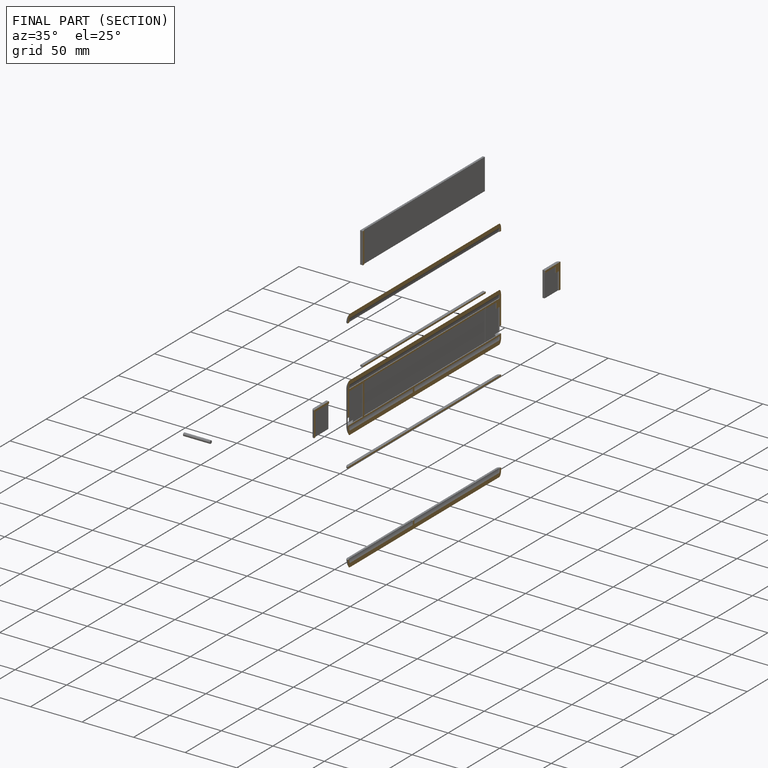
[diagram: finished part — half-section view (interior)]
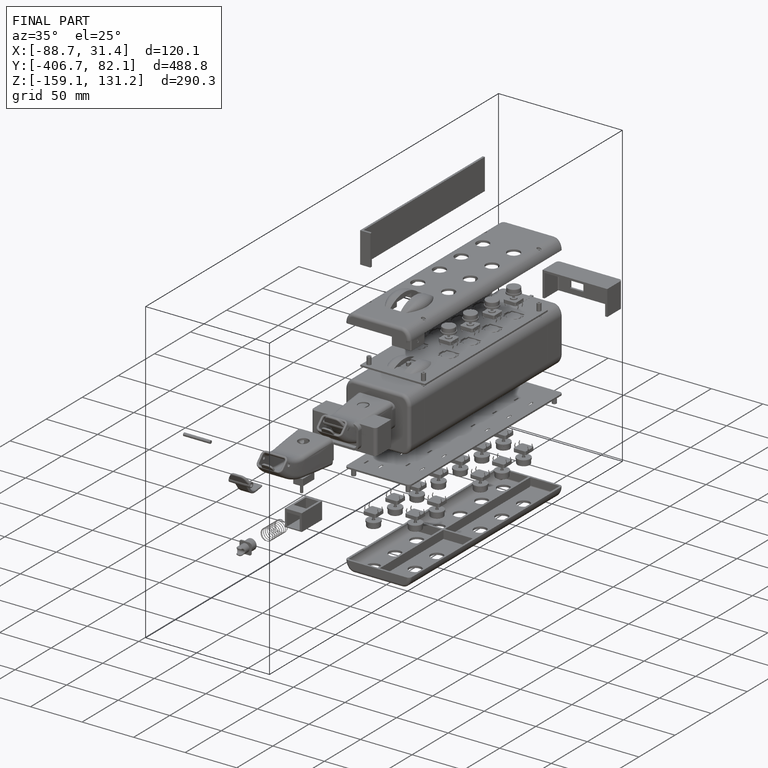
[diagram: finished part — iso view with bounding-box wireframe]
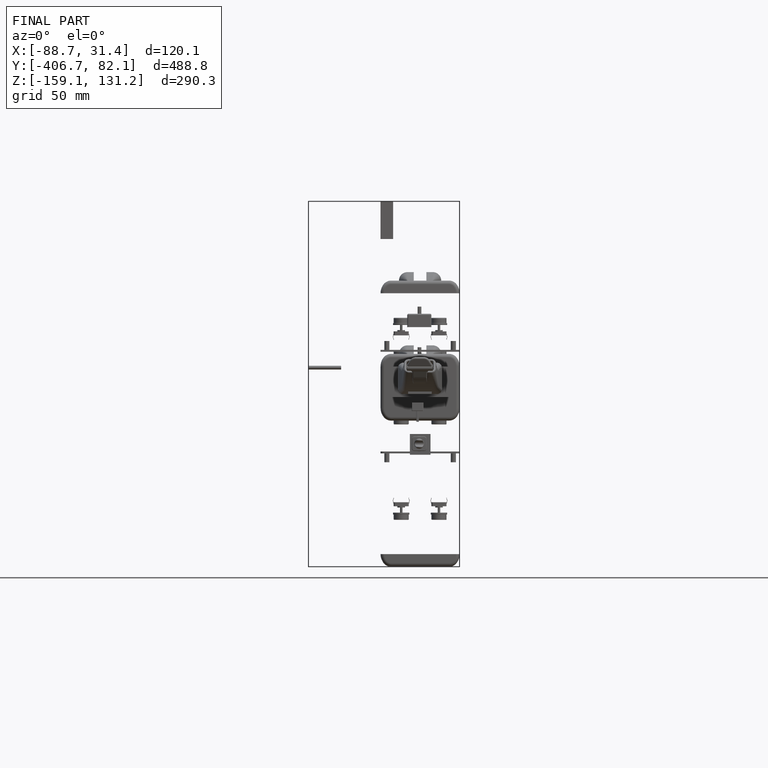
[diagram: finished part — front view with bounding-box wireframe]
